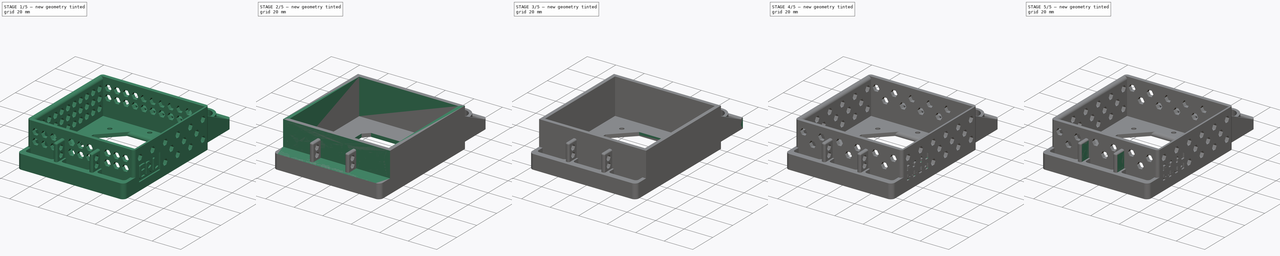
[diagram: build sequence overview — one tinted view per stage of 5, left to right]
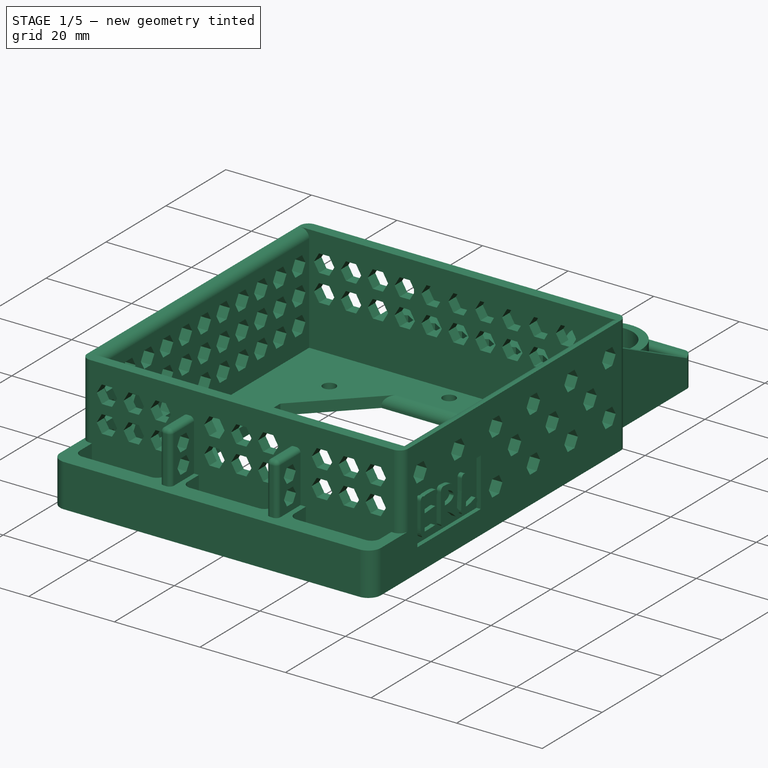
[diagram: stage 1 of 5 — iso view after this stage's code; geometry added in this stage tinted green]
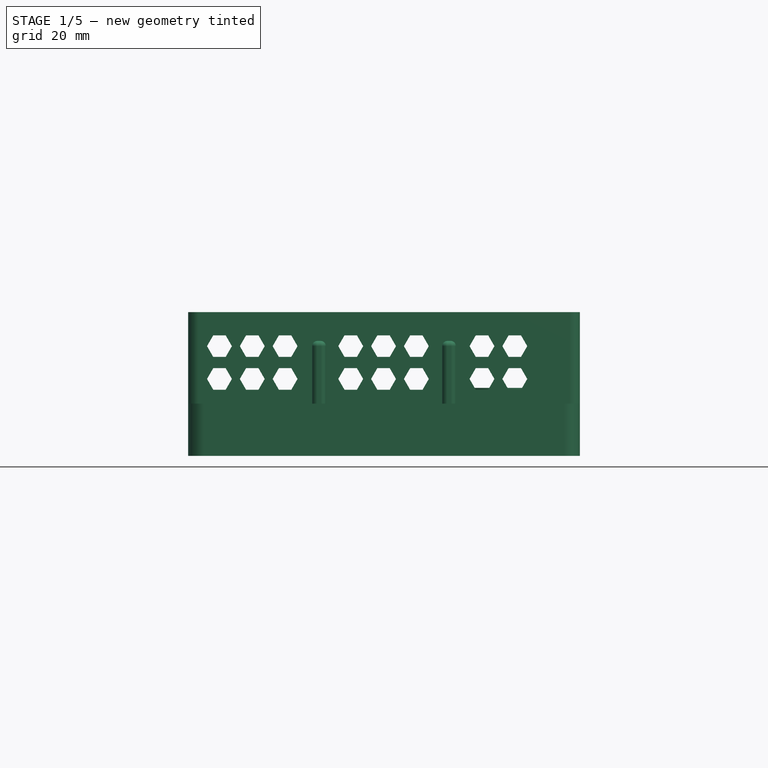
[diagram: stage 1 of 5 — front view after this stage's code; geometry added in this stage tinted green]
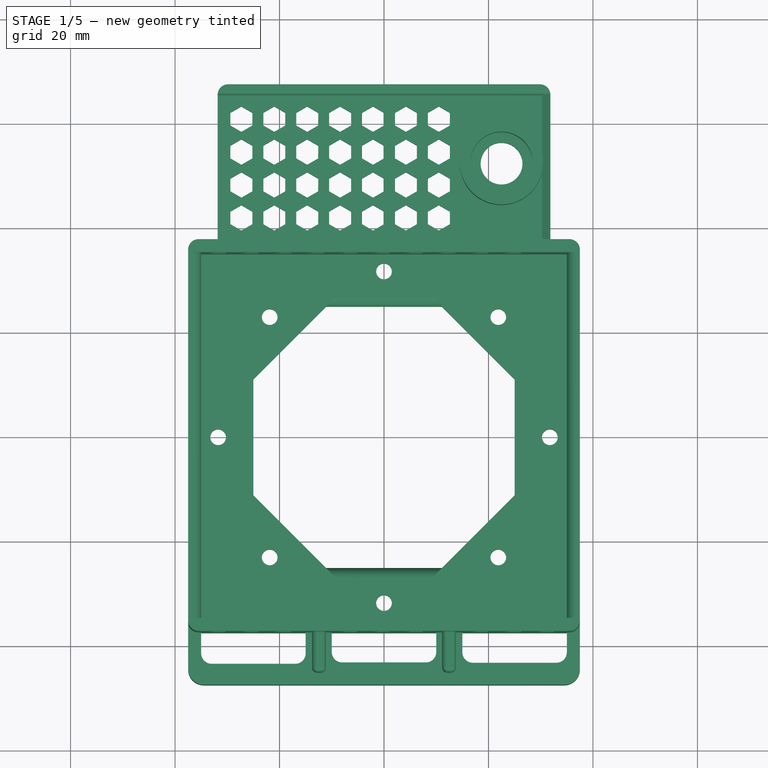
[diagram: stage 1 of 5 — top view after this stage's code; geometry added in this stage tinted green]
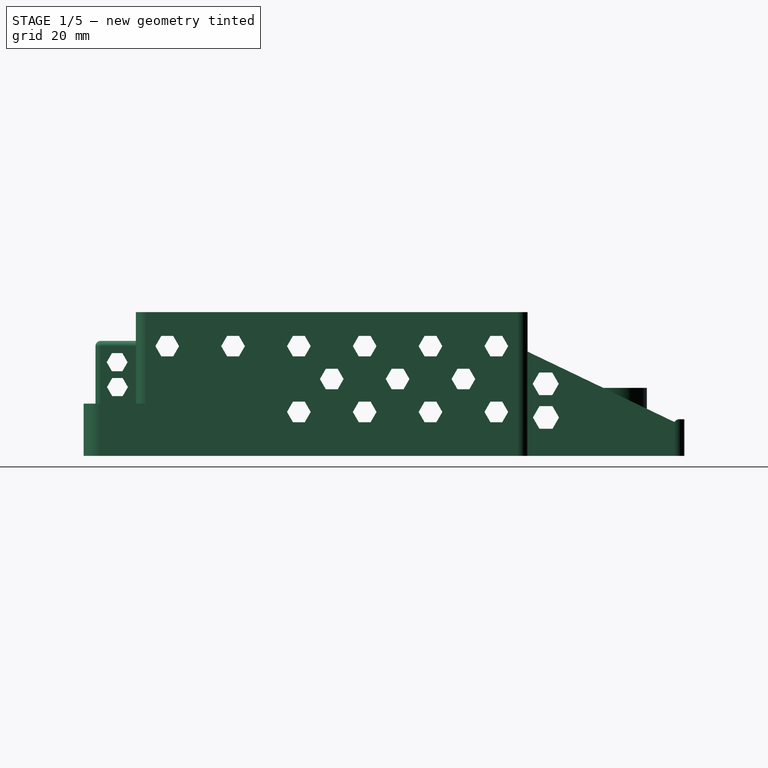
[diagram: stage 1 of 5 — right view after this stage's code; geometry added in this stage tinted green]
FCSTD DOCUMENT  (FreeCAD 0.16R6703 (Git))
Label: KK2.1-Cockpit
License: FreeArt
LicenseURL: http://artlibre.org/licence/lal
objects: Sketcher::SketchObject×36, PartDesign::Pad×20, PartDesign::Pocket×16, PartDesign::Fillet×10, Part::Part2DObjectPython×1, Part::Fuse×1
note: 120 computed .brp shape members not serialized (recipe doc carries the construction recipe); baked Part::Feature solids carry a one-line shape summary decoded from their .brp

FEATURE [PartDesign::Pocket] Pocket014
  Length = 5
  Type = 1
FEATURE [Sketcher::SketchObject] Sketch025
  Placement = pos=(0,35,0) rot=(1,0,0;1.5708rad)
  Support = -> Pocket014 [Face773]
  sketch-geometry (4):
    g0: LineSegment StartX=28.4176 StartY=24.457 StartZ=0 EndX=34.6227 EndY=24.457 EndZ=0
    g1: LineSegment StartX=34.6227 StartY=24.457 StartZ=0 EndX=34.6227 EndY=10.5 EndZ=0
    g2: LineSegment StartX=34.6227 StartY=10.5 StartZ=0 EndX=28.4176 EndY=10.5 EndZ=0
    g3: LineSegment StartX=28.4176 StartY=10.5 StartZ=0 EndX=28.4176 EndY=24.457 EndZ=0
  constraints (8):
    c: Coincident(g0,g1)
    c: Coincident(g1,g2)
    c: Coincident(g2,g3)
    c: Coincident(g3,g0)
    c: Horizontal(g0)
    c: Horizontal(g2)
    c: Vertical(g1)
    c: Vertical(g3)
FEATURE [PartDesign::Pad] Pad009
  Length = 2.5
  Length2 = 100
  Reversed = true
  Sketch = -> Sketch025
  Type = 0
FEATURE [Part::Part2DObjectPython] ShapeString  # Draft 2D object (typed FeaturePython)
  FontFile = <path>
  Placement = pos=(37.5,-32,7) rot=(0.57735,0.57735,0.57735;2.0944rad)
  Size = 10
  String = ERL
  Tracking = 10
FEATURE [Sketcher::SketchObject] Sketch026
  Placement = pos=(37.5,0,0) rot=(0.57735,0.57735,0.57735;2.0944rad)
  Support = -> Pad009 [Face40]
  sketch-geometry (4):
    g0: LineSegment StartX=-34.1908 StartY=17.4661 StartZ=0 EndX=-9.26786 EndY=17.4661 EndZ=0
    g1: LineSegment StartX=-9.26786 StartY=17.4661 StartZ=0 EndX=-9.26786 EndY=5.62786 EndZ=0
    g2: LineSegment StartX=-9.26786 StartY=5.62786 StartZ=0 EndX=-34.1908 EndY=5.62786 EndZ=0
    g3: LineSegment StartX=-34.1908 StartY=5.62786 StartZ=0 EndX=-34.1908 EndY=17.4661 EndZ=0
  constraints (8):
    c: Coincident(g0,g1)
    c: Coincident(g1,g2)
    c: Coincident(g2,g3)
    c: Coincident(g3,g0)
    c: Horizontal(g0)
    c: Horizontal(g2)
    c: Vertical(g1)
    c: Vertical(g3)
FEATURE [PartDesign::Pad] Pad010
  Length = 2.5
  Length2 = 100
  Reversed = true
  Sketch = -> Sketch026
  Type = 0
  UpToFace = -> Pad009 [Face773]
FEATURE [Sketcher::SketchObject] Sketch027
  Placement = pos=(37.5,0,0) rot=(0.57735,0.57735,0.57735;2.0944rad)
  Support = -> Pad010 [Face722]
  sketch-geometry (4):
    g0: LineSegment StartX=-32.3953 StartY=16.8 StartZ=0 EndX=-11.2422 EndY=16.8 EndZ=0
    g1: LineSegment StartX=-11.2422 StartY=16.8 StartZ=0 EndX=-11.2422 EndY=5.48684 EndZ=0
    g2: LineSegment StartX=-11.2422 StartY=5.48684 StartZ=0 EndX=-32.3953 EndY=5.48684 EndZ=0
    g3: LineSegment StartX=-32.3953 StartY=5.48684 StartZ=0 EndX=-32.3953 EndY=16.8 EndZ=0
  constraints (12):
    c: Coincident(g0,g1)
    c: Coincident(g1,g2)
    c: Coincident(g2,g3)
    c: Coincident(g3,g0)
    c: Horizontal(g0)
    c: Horizontal(g2)
    c: Vertical(g1)
    c: Vertical(g3)
    c: Equal(g3,g1)
    c: Equal(g0,g2)
    c: DistanceY(g1,g1) = 11.3132
    c: DistanceX(g0,g0) = 21.1531
FEATURE [PartDesign::Pocket] Pocket015
  Length = 1
  Sketch = -> Sketch027
  Type = 0
FEATURE [PartDesign::Pad] Pad011
  Length = 2
  Length2 = 100
  Placement = pos=(37.5,-32,7) rot=(0.57735,0.57735,0.57735;2.0944rad)
  Reversed = true
  Sketch = -> ShapeString
  Type = 0
FEATURE [Part::Fuse] Fusion
  Base = -> Pocket015
  Tool = -> Pad011
FEATURE [Sketcher::SketchObject] Sketch028
  Placement = pos=(37.5,0,0) rot=(0.57735,0.57735,0.57735;2.0944rad)
  Support = -> Fusion [Face40]
  sketch-geometry (20):
    g0: LineSegment StartX=-28 StartY=24 StartZ=0 EndX=-22 EndY=24 EndZ=0
    g1: LineSegment StartX=-22 StartY=24 StartZ=0 EndX=-22 EndY=18 EndZ=0
    g2: LineSegment StartX=-22 StartY=18 StartZ=0 EndX=-28 EndY=18 EndZ=0
    g3: LineSegment StartX=-28 StartY=18 StartZ=0 EndX=-28 EndY=24 EndZ=0
    g4: LineSegment StartX=-15 StartY=25 StartZ=0 EndX=-10 EndY=25 EndZ=0
    g5: LineSegment StartX=-10 StartY=25 StartZ=0 EndX=-10 EndY=17.9453 EndZ=0
    g6: LineSegment StartX=-10 StartY=17.9453 StartZ=0 EndX=-15 EndY=17.9453 EndZ=0
    g7: LineSegment StartX=-15 StartY=17.9453 StartZ=0 EndX=-15 EndY=25 EndZ=0
    g8: LineSegment StartX=-2.83779 StartY=25 StartZ=0 EndX=3.05056 EndY=25 EndZ=0
    g9: LineSegment StartX=3.05056 StartY=25 StartZ=0 EndX=3.05056 EndY=17.7144 EndZ=0
    g10: LineSegment StartX=3.05056 StartY=17.7144 StartZ=0 EndX=-2.83779 EndY=17.7144 EndZ=0
    g11: LineSegment StartX=-2.83779 StartY=17.7144 StartZ=0 EndX=-2.83779 EndY=25 EndZ=0
    g12: LineSegment StartX=10 StartY=25 StartZ=0 EndX=16.0973 EndY=25 EndZ=0
    g13: LineSegment StartX=16.0973 StartY=25 StartZ=0 EndX=16.0973 EndY=17.4835 EndZ=0
    g14: LineSegment StartX=16.0973 StartY=17.4835 StartZ=0 EndX=10 EndY=17.4835 EndZ=0
    g15: LineSegment StartX=10 StartY=17.4835 StartZ=0 EndX=10 EndY=25 EndZ=0
    g16: LineSegment StartX=22.6784 StartY=25 StartZ=0 EndX=28.5668 EndY=25 EndZ=0
    g17: LineSegment StartX=28.5668 StartY=25 StartZ=0 EndX=28.5668 EndY=17.7144 EndZ=0
    g18: LineSegment StartX=28.5668 StartY=17.7144 StartZ=0 EndX=22.6784 EndY=17.7144 EndZ=0
    g19: LineSegment StartX=22.6784 StartY=17.7144 StartZ=0 EndX=22.6784 EndY=25 EndZ=0
  constraints (40):
    c: Coincident(g0,g1)
    c: Coincident(g1,g2)
    c: Coincident(g2,g3)
    c: Coincident(g3,g0)
    c: Horizontal(g0)
    c: Horizontal(g2)
    c: Vertical(g1)
    c: Vertical(g3)
    c: Coincident(g4,g5)
    c: Coincident(g5,g6)
    c: Coincident(g6,g7)
    c: Coincident(g7,g4)
    c: Horizontal(g4)
    c: Horizontal(g6)
    c: Vertical(g5)
    c: Vertical(g7)
    c: Coincident(g8,g9)
    c: Coincident(g9,g10)
    c: Coincident(g10,g11)
    c: Coincident(g11,g8)
    c: Horizontal(g8)
    c: Horizontal(g10)
    c: Vertical(g9)
    c: Vertical(g11)
    c: Coincident(g12,g13)
    c: Coincident(g13,g14)
    c: Coincident(g14,g15)
    c: Coincident(g15,g12)
    c: Horizontal(g12)
    c: Horizontal(g14)
    c: Vertical(g13)
    c: Vertical(g15)
    c: Coincident(g16,g17)
    c: Coincident(g17,g18)
    c: Coincident(g18,g19)
    c: Coincident(g19,g16)
    c: Horizontal(g16)
    c: Horizontal(g18)
    c: Vertical(g17)
    c: Vertical(g19)
FEATURE [PartDesign::Pad] Pad012
  Length = 2.5
  Length2 = 100
  Reversed = true
  Sketch = -> Sketch028
  Type = 0
  UpToFace = -> Fusion [Face731]
FEATURE [Sketcher::SketchObject] Sketch029
  Placement = pos=(37.5,0,0) rot=(0.57735,0.57735,0.57735;2.0944rad)
  Support = -> Pad012 [Face722]
  sketch-geometry (16):
    g0: LineSegment StartX=-10 StartY=17.7784 StartZ=0 EndX=-3.16784 EndY=17.7784 EndZ=0
    g1: LineSegment StartX=-3.16784 StartY=17.7784 StartZ=0 EndX=-3.16784 EndY=12.0055 EndZ=0
    g2: LineSegment StartX=-3.16784 StartY=12.0055 StartZ=0 EndX=-10 EndY=12.0055 EndZ=0
    g3: LineSegment StartX=-10 StartY=12.0055 StartZ=0 EndX=-10 EndY=17.7784 EndZ=0
    g4: LineSegment StartX=3.52873 StartY=17.5474 StartZ=0 EndX=10 EndY=17.5474 EndZ=0
    g5: LineSegment StartX=10 StartY=17.5474 StartZ=0 EndX=10 EndY=11.89 EndZ=0
    g6: LineSegment StartX=10 StartY=11.89 StartZ=0 EndX=3.52873 EndY=11.89 EndZ=0
    g7: LineSegment StartX=3.52873 StartY=11.89 StartZ=0 EndX=3.52873 EndY=17.5474 EndZ=0
    g8: LineSegment StartX=15 StartY=17.8938 StartZ=0 EndX=22.002 EndY=17.8938 EndZ=0
    g9: LineSegment StartX=22.002 StartY=17.8938 StartZ=0 EndX=22.002 EndY=11.5436 EndZ=0
    g10: LineSegment StartX=22.002 StartY=11.5436 StartZ=0 EndX=15 EndY=11.5436 EndZ=0
    g11: LineSegment StartX=15 StartY=11.5436 StartZ=0 EndX=15 EndY=17.8938 EndZ=0
    g12: LineSegment StartX=28.4677 StartY=18.1247 StartZ=0 EndX=35 EndY=18.1247 EndZ=0
    g13: LineSegment StartX=35 StartY=18.1247 StartZ=0 EndX=35 EndY=11.5436 EndZ=0
    g14: LineSegment StartX=35 StartY=11.5436 StartZ=0 EndX=28.4677 EndY=11.5436 EndZ=0
    g15: LineSegment StartX=28.4677 StartY=11.5436 StartZ=0 EndX=28.4677 EndY=18.1247 EndZ=0
  constraints (32):
    c: Coincident(g0,g1)
    c: Coincident(g1,g2)
    c: Coincident(g2,g3)
    c: Coincident(g3,g0)
    c: Horizontal(g0)
    c: Horizontal(g2)
    c: Vertical(g1)
    c: Vertical(g3)
    c: Coincident(g4,g5)
    c: Coincident(g5,g6)
    c: Coincident(g6,g7)
    c: Coincident(g7,g4)
    c: Horizontal(g4)
    c: Horizontal(g6)
    c: Vertical(g5)
    c: Vertical(g7)
    c: Coincident(g8,g9)
    c: Coincident(g9,g10)
    c: Coincident(g10,g11)
    c: Coincident(g11,g8)
    c: Horizontal(g8)
    c: Horizontal(g10)
    c: Vertical(g9)
    c: Vertical(g11)
    c: Coincident(g12,g13)
    c: Coincident(g13,g14)
    c: Coincident(g14,g15)
    c: Coincident(g15,g12)
    c: Horizontal(g12)
    c: Horizontal(g14)
    c: Vertical(g13)
    c: Vertical(g15)
FEATURE [PartDesign::Pad] Pad013
  Length = 2.5
  Length2 = 100
  Reversed = true
  Sketch = -> Sketch029
  Type = 0
FEATURE [Sketcher::SketchObject] Sketch030
  Placement = pos=(37.5,0,0) rot=(0.57735,0.57735,0.57735;2.0944rad)
  Support = -> Pad013 [Face722]
  sketch-geometry (12):
    g0: LineSegment StartX=-3 StartY=11 StartZ=0 EndX=3 EndY=11 EndZ=0
    g1: LineSegment StartX=3 StartY=11 StartZ=0 EndX=3 EndY=5.30888 EndZ=0
    g2: LineSegment StartX=3 StartY=5.30888 StartZ=0 EndX=-3 EndY=5.30888 EndZ=0
    g3: LineSegment StartX=-3 StartY=5.30888 StartZ=0 EndX=-3 EndY=11 EndZ=0
    g4: LineSegment StartX=9.648 StartY=11.7745 StartZ=0 EndX=15.5364 EndY=11.7745 EndZ=0
    g5: LineSegment StartX=15.5364 StartY=11.7745 StartZ=0 EndX=15.5364 EndY=5.30888 EndZ=0
    g6: LineSegment StartX=15.5364 StartY=5.30888 StartZ=0 EndX=9.648 EndY=5.30888 EndZ=0
    g7: LineSegment StartX=9.648 StartY=5.30888 StartZ=0 EndX=9.648 EndY=11.7745 EndZ=0
    g8: LineSegment StartX=22.2329 StartY=11.6591 StartZ=0 EndX=28 EndY=11.6591 EndZ=0
    g9: LineSegment StartX=28 StartY=11.6591 StartZ=0 EndX=28 EndY=5.53979 EndZ=0
    g10: LineSegment StartX=28 StartY=5.53979 StartZ=0 EndX=22.2329 EndY=5.53979 EndZ=0
    g11: LineSegment StartX=22.2329 StartY=5.53979 StartZ=0 EndX=22.2329 EndY=11.6591 EndZ=0
  constraints (24):
    c: Coincident(g0,g1)
    c: Coincident(g1,g2)
    c: Coincident(g2,g3)
    c: Coincident(g3,g0)
    c: Horizontal(g0)
    c: Horizontal(g2)
    c: Vertical(g1)
    c: Vertical(g3)
    c: Coincident(g4,g5)
    c: Coincident(g5,g6)
    c: Coincident(g6,g7)
    c: Coincident(g7,g4)
    c: Horizontal(g4)
    c: Horizontal(g6)
    c: Vertical(g5)
    c: Vertical(g7)
    c: Coincident(g8,g9)
    c: Coincident(g9,g10)
    c: Coincident(g10,g11)
    c: Coincident(g11,g8)
    c: Horizontal(g8)
    c: Horizontal(g10)
    c: Vertical(g9)
    c: Vertical(g11)
FEATURE [PartDesign::Pad] Pad014
  Length = 2.5
  Length2 = 100
  Reversed = true
  Sketch = -> Sketch030
  Type = 0
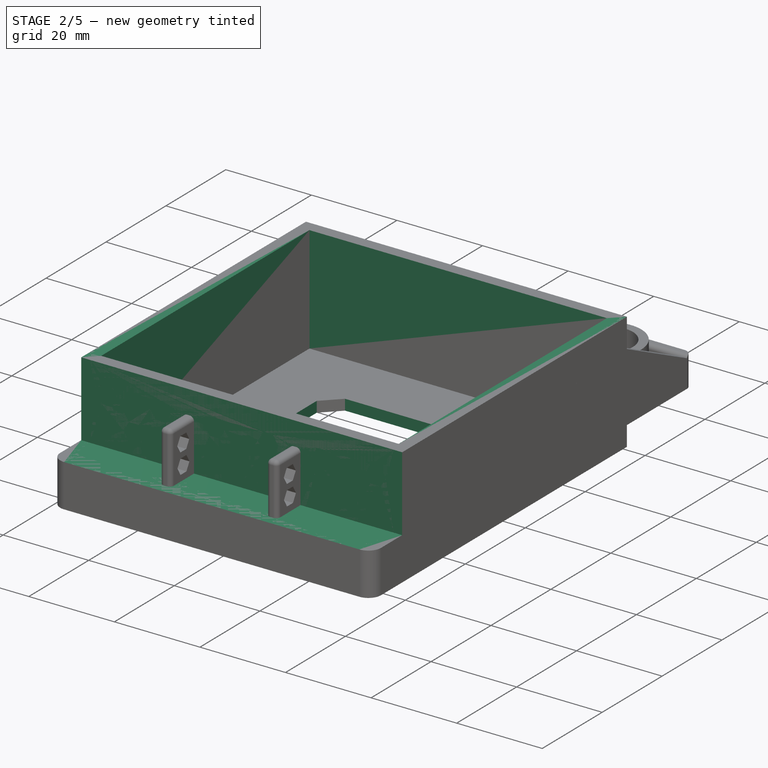
[diagram: stage 2 of 5 — iso view after this stage's code; geometry added in this stage tinted green]
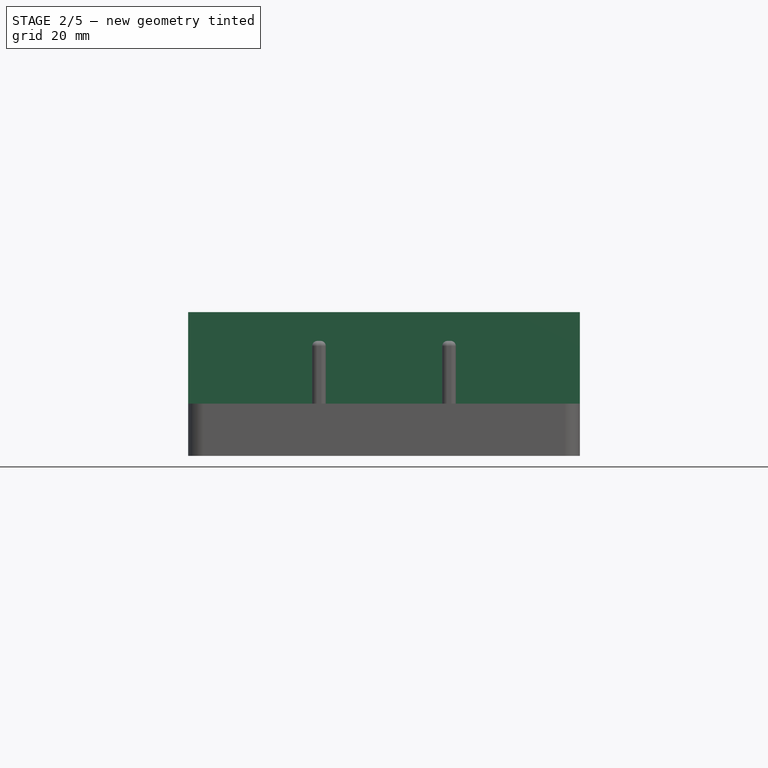
[diagram: stage 2 of 5 — front view after this stage's code; geometry added in this stage tinted green]
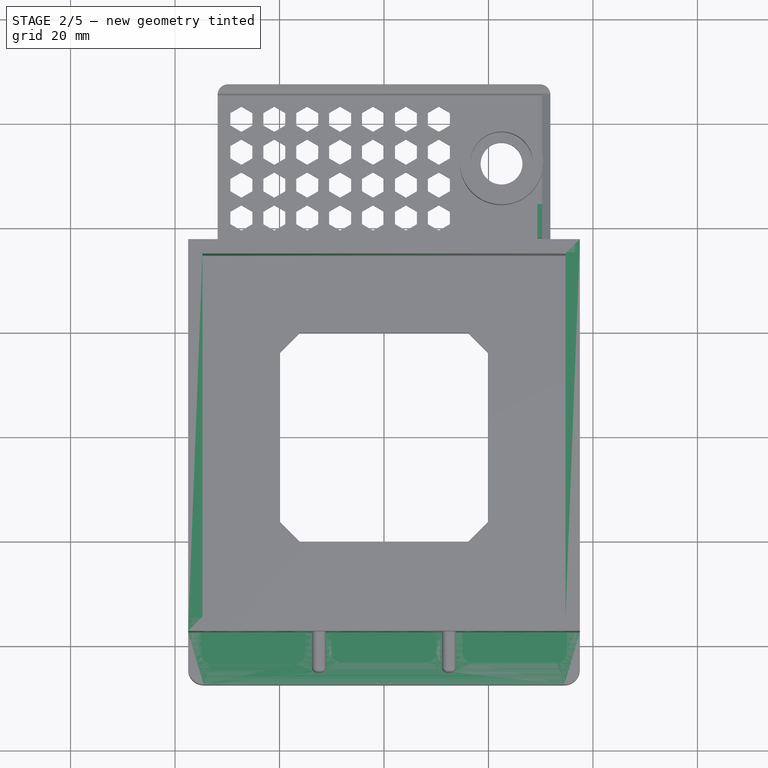
[diagram: stage 2 of 5 — top view after this stage's code; geometry added in this stage tinted green]
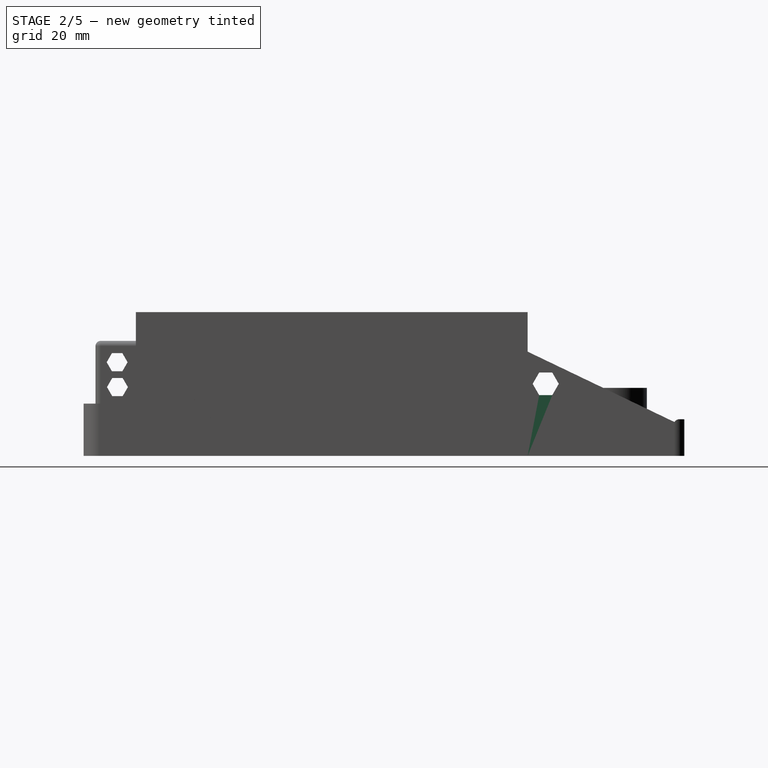
[diagram: stage 2 of 5 — right view after this stage's code; geometry added in this stage tinted green]
FEATURE [Sketcher::SketchObject] Sketch
  sketch-geometry (4):
    g0: LineSegment StartX=-37.5 StartY=37.5 StartZ=0 EndX=37.5 EndY=37.5 EndZ=0
    g1: LineSegment StartX=37.5 StartY=37.5 StartZ=0 EndX=37.5 EndY=-37.5 EndZ=0
    g2: LineSegment StartX=37.5 StartY=-37.5 StartZ=0 EndX=-37.5 EndY=-37.5 EndZ=0
    g3: LineSegment StartX=-37.5 StartY=-37.5 StartZ=0 EndX=-37.5 EndY=37.5 EndZ=0
  constraints (13):
    c: Coincident(g0,g1)
    c: Coincident(g1,g2)
    c: Coincident(g2,g3)
    c: Coincident(g3,g0)
    c: Horizontal(g2)
    c: Vertical(g1)
    c: Vertical(g3)
    c: Equal(g0,g2)
    c: Equal(g3,g1)
    c: DistanceX(g0,g0) = 75
    c: DistanceY(g3,g3) = 75
    c: Symmetric(g0,g2,g-1)
    c: Symmetric(g0,g0,g-2)
FEATURE [PartDesign::Pad] Pad
  Length = 27.5
  Length2 = 100
  Sketch = -> Sketch
  Type = 0
FEATURE [Sketcher::SketchObject] Sketch001
  Placement = pos=(0,0,27.5) rot=(0,0,1;0rad)
  Support = -> Pad [Face6]
  sketch-geometry (4):
    g0: LineSegment StartX=-34.75 StartY=34.75 StartZ=0 EndX=34.75 EndY=34.75 EndZ=0
    g1: LineSegment StartX=34.75 StartY=34.75 StartZ=0 EndX=34.75 EndY=-34.75 EndZ=0
    g2: LineSegment StartX=34.75 StartY=-34.75 StartZ=0 EndX=-34.75 EndY=-34.75 EndZ=0
    g3: LineSegment StartX=-34.75 StartY=-34.75 StartZ=0 EndX=-34.75 EndY=34.75 EndZ=0
  constraints (13):
    c: Coincident(g0,g1)
    c: Coincident(g1,g2)
    c: Coincident(g2,g3)
    c: Coincident(g3,g0)
    c: Horizontal(g2)
    c: Vertical(g1)
    c: Vertical(g3)
    c: Equal(g0,g2)
    c: Equal(g3,g1)
    c: DistanceX(g0,g0) = 69.5
    c: DistanceY(g3,g3) = 69.5
    c: Symmetric(g0,g0,g-2)
    c: Symmetric(g2,g0,g-1)
FEATURE [PartDesign::Pocket] Pocket
  Length = 25
  Sketch = -> Sketch001
  Type = 0
FEATURE [Sketcher::SketchObject] Sketch002
  Placement = pos=(0,0,2.5) rot=(0,0,1;0rad)
  Support = -> Pocket [Face11]
  sketch-geometry (4):
    g0: LineSegment StartX=-20 StartY=20 StartZ=0 EndX=20 EndY=20 EndZ=0
    g1: LineSegment StartX=20 StartY=20 StartZ=0 EndX=20 EndY=-20 EndZ=0
    g2: LineSegment StartX=20 StartY=-20 StartZ=0 EndX=-20 EndY=-20 EndZ=0
    g3: LineSegment StartX=-20 StartY=-20 StartZ=0 EndX=-20 EndY=20 EndZ=0
  constraints (13):
    c: Coincident(g0,g1)
    c: Coincident(g1,g2)
    c: Coincident(g2,g3)
    c: Coincident(g3,g0)
    c: Horizontal(g2)
    c: Vertical(g1)
    c: Vertical(g3)
    c: Equal(g0,g2)
    c: Equal(g3,g1)
    c: DistanceX(g0,g0) = 40
    c: DistanceY(g3,g3) = 40
    c: Symmetric(g0,g0,g-2)
    c: Symmetric(g2,g0,g-1)
FEATURE [PartDesign::Pocket] Pocket001
  Length = 5
  Sketch = -> Sketch002
  Type = 1
FEATURE [Sketcher::SketchObject] Sketch003
  Placement = pos=(0,-37.5,0) rot=(1,0,0;1.5708rad)
  Support = -> Pocket001 [Face6]
  sketch-geometry (4):
    g0: LineSegment StartX=-37.5 StartY=10 StartZ=0 EndX=37.5 EndY=10 EndZ=0
    g1: LineSegment StartX=37.5 StartY=10 StartZ=0 EndX=37.5 EndY=0 EndZ=0
    g2: LineSegment StartX=37.5 StartY=0 StartZ=0 EndX=-37.5 EndY=0 EndZ=0
    g3: LineSegment StartX=-37.5 StartY=0 StartZ=0 EndX=-37.5 EndY=10 EndZ=0
  constraints (13):
    c: Coincident(g0,g1)
    c: Coincident(g1,g2)
    c: Coincident(g2,g3)
    c: Coincident(g3,g0)
    c: Horizontal(g2)
    c: Vertical(g1)
    c: Vertical(g3)
    c: Equal(g0,g2)
    c: Equal(g3,g1)
    c: DistanceX(g0,g0) = 75
    c: PointOnObject(g-1,g2)
    c: Symmetric(g0,g0,g-2)
    c: DistanceY(g3,g3) = 10
FEATURE [PartDesign::Pad] Pad001
  Length = 10
  Length2 = 100
  Sketch = -> Sketch003
  Type = 0
FEATURE [PartDesign::Fillet] Fillet
  Base = -> Pad001 [Edge28,Edge26]
  Radius = 3
FEATURE [Sketcher::SketchObject] Sketch031
  Placement = pos=(31.8532,0,0) rot=(0.57735,0.57735,0.57735;2.0944rad)
  Support = -> Pad014 [Face385]
  sketch-geometry (4):
    g0: LineSegment StartX=38 StartY=10.2736 StartZ=0 EndX=44.5163 EndY=10.2736 EndZ=0
    g1: LineSegment StartX=44.5163 StartY=10.2736 StartZ=0 EndX=44.5163 EndY=4.61613 EndZ=0
    g2: LineSegment StartX=44.5163 StartY=4.61613 StartZ=0 EndX=38 EndY=4.61613 EndZ=0
    g3: LineSegment StartX=38 StartY=4.61613 StartZ=0 EndX=38 EndY=10.2736 EndZ=0
  constraints (8):
    c: Coincident(g0,g1)
    c: Coincident(g1,g2)
    c: Coincident(g2,g3)
    c: Coincident(g3,g0)
    c: Horizontal(g0)
    c: Horizontal(g2)
    c: Vertical(g1)
    c: Vertical(g3)
FEATURE [PartDesign::Pad] Pad015
  Length = 2.5
  Length2 = 100
  Reversed = true
  Sketch = -> Sketch031
  Type = 0
FEATURE [Sketcher::SketchObject] Sketch032
  Placement = pos=(0,-37.5,0) rot=(1,0,0;1.5708rad)
  Support = -> Pad015 [Face5]
  sketch-geometry (36):
    g0: LineSegment StartX=-34.6268 StartY=17.7932 StartZ=0 EndX=-28 EndY=17.7932 EndZ=0
    g1: LineSegment StartX=-28 StartY=17.7932 StartZ=0 EndX=-28 EndY=11.7433 EndZ=0
    g2: LineSegment StartX=-28 StartY=11.7433 StartZ=0 EndX=-34.6268 EndY=11.7433 EndZ=0
    g3: LineSegment StartX=-34.6268 StartY=11.7433 StartZ=0 EndX=-34.6268 EndY=17.7932 EndZ=0
    g4: LineSegment StartX=-28.2628 StartY=25 StartZ=0 EndX=-22.4583 EndY=25 EndZ=0
    g5: LineSegment StartX=-22.4583 StartY=25 StartZ=0 EndX=-22.4583 EndY=18.4509 EndZ=0
    g6: LineSegment StartX=-22.4583 StartY=18.4509 StartZ=0 EndX=-28.2628 EndY=18.4509 EndZ=0
    g7: LineSegment StartX=-28.2628 StartY=18.4509 StartZ=0 EndX=-28.2628 EndY=25 EndZ=0
    g8: LineSegment StartX=-21.7617 StartY=17.5221 StartZ=0 EndX=-15.725 EndY=17.5221 EndZ=0
    g9: LineSegment StartX=-15.725 StartY=17.5221 StartZ=0 EndX=-15.725 EndY=12 EndZ=0
    g10: LineSegment StartX=-15.725 StartY=12 StartZ=0 EndX=-21.7617 EndY=12 EndZ=0
    g11: LineSegment StartX=-21.7617 StartY=12 StartZ=0 EndX=-21.7617 EndY=17.5221 EndZ=0
    g12: LineSegment StartX=-9.76567 StartY=17 StartZ=0 EndX=-3.41938 EndY=17 EndZ=0
    g13: LineSegment StartX=-3.41938 StartY=17 StartZ=0 EndX=-3.41938 EndY=11.795 EndZ=0
    g14: LineSegment StartX=-3.41938 StartY=11.795 StartZ=0 EndX=-9.76567 EndY=11.795 EndZ=0
    g15: LineSegment StartX=-9.76567 StartY=11.795 StartZ=0 EndX=-9.76567 EndY=17 EndZ=0
    g16: LineSegment StartX=3 StartY=17.29 StartZ=0 EndX=9 EndY=17.29 EndZ=0
    g17: LineSegment StartX=9 StartY=17.29 StartZ=0 EndX=9 EndY=12 EndZ=0
    g18: LineSegment StartX=9 StartY=12 StartZ=0 EndX=3 EndY=12 EndZ=0
    g19: LineSegment StartX=3 StartY=12 StartZ=0 EndX=3 EndY=17.29 EndZ=0
    g20: LineSegment StartX=-3 StartY=24.2554 StartZ=0 EndX=2.77213 EndY=24.2554 EndZ=0
    g21: LineSegment StartX=2.77213 StartY=24.2554 StartZ=0 EndX=2.77213 EndY=18.2187 EndZ=0
    g22: LineSegment StartX=2.77213 StartY=18.2187 StartZ=0 EndX=-3 EndY=18.2187 EndZ=0
    g23: LineSegment StartX=-3 StartY=18.2187 StartZ=0 EndX=-3 EndY=24.2554 EndZ=0
    g24: LineSegment StartX=15.3099 StartY=18 StartZ=0 EndX=22 EndY=18 EndZ=0
    g25: LineSegment StartX=22 StartY=18 StartZ=0 EndX=22 EndY=11.3306 EndZ=0
    g26: LineSegment StartX=22 StartY=11.3306 StartZ=0 EndX=15.3099 EndY=11.3306 EndZ=0
    g27: LineSegment StartX=15.3099 StartY=11.3306 StartZ=0 EndX=15.3099 EndY=18 EndZ=0
    g28: LineSegment StartX=22 StartY=25 StartZ=0 EndX=27.6155 EndY=25 EndZ=0
    g29: LineSegment StartX=27.6155 StartY=25 StartZ=0 EndX=27.6155 EndY=18.5283 EndZ=0
    g30: LineSegment StartX=27.6155 StartY=18.5283 StartZ=0 EndX=22 EndY=18.5283 EndZ=0
    g31: LineSegment StartX=22 StartY=18.5283 StartZ=0 EndX=22 EndY=25 EndZ=0
    g32: LineSegment StartX=28.3121 StartY=18 StartZ=0 EndX=34.581 EndY=18 EndZ=0
    g33: LineSegment StartX=34.581 StartY=18 StartZ=0 EndX=34.581 EndY=11.408 EndZ=0
    g34: LineSegment StartX=34.581 StartY=11.408 StartZ=0 EndX=28.3121 EndY=11.408 EndZ=0
    g35: LineSegment StartX=28.3121 StartY=11.408 StartZ=0 EndX=28.3121 EndY=18 EndZ=0
  constraints (72):
    c: Coincident(g0,g1)
    c: Coincident(g1,g2)
    c: Coincident(g2,g3)
    c: Coincident(g3,g0)
    c: Horizontal(g0)
    c: Horizontal(g2)
    c: Vertical(g1)
    c: Vertical(g3)
    c: Coincident(g4,g5)
    c: Coincident(g5,g6)
    c: Coincident(g6,g7)
    c: Coincident(g7,g4)
    c: Horizontal(g4)
    c: Horizontal(g6)
    c: Vertical(g5)
    c: Vertical(g7)
    c: Coincident(g8,g9)
    c: Coincident(g9,g10)
    c: Coincident(g10,g11)
    c: Coincident(g11,g8)
    c: Horizontal(g8)
    c: Horizontal(g10)
    c: Vertical(g9)
    c: Vertical(g11)
    c: Coincident(g12,g13)
    c: Coincident(g13,g14)
    c: Coincident(g14,g15)
    c: Coincident(g15,g12)
    c: Horizontal(g12)
    c: Horizontal(g14)
    c: Vertical(g13)
    c: Vertical(g15)
    c: Coincident(g16,g17)
    c: Coincident(g17,g18)
    c: Coincident(g18,g19)
    c: Coincident(g19,g16)
    c: Horizontal(g16)
    c: Horizontal(g18)
    c: Vertical(g17)
    c: Vertical(g19)
    c: Coincident(g20,g21)
    c: Coincident(g21,g22)
    c: Coincident(g22,g23)
    c: Coincident(g23,g20)
    c: Horizontal(g20)
    c: Horizontal(g22)
    c: Vertical(g21)
    c: Vertical(g23)
    c: Coincident(g24,g25)
    c: Coincident(g25,g26)
    c: Coincident(g26,g27)
    c: Coincident(g27,g24)
    c: Horizontal(g24)
    c: Horizontal(g26)
    c: Vertical(g25)
    c: Vertical(g27)
    c: Coincident(g28,g29)
    c: Coincident(g29,g30)
    c: Coincident(g30,g31)
    c: Coincident(g31,g28)
    c: Horizontal(g28)
    c: Horizontal(g30)
    c: Vertical(g29)
    c: Vertical(g31)
    c: Coincident(g32,g33)
    c: Coincident(g33,g34)
    c: Coincident(g34,g35)
    c: Coincident(g35,g32)
    c: Horizontal(g32)
    c: Horizontal(g34)
    c: Vertical(g33)
    c: Vertical(g35)
FEATURE [PartDesign::Pad] Pad016
  Length = 2.5
  Length2 = 100
  Reversed = true
  Sketch = -> Sketch032
  Type = 0
FEATURE [Sketcher::SketchObject] Sketch033
  Placement = pos=(-37.5,0,0) rot=(0.57735,-0.57735,-0.57735;2.0944rad)
  Support = -> Pad016 [Face32]
  sketch-geometry (64):
    g0: LineSegment StartX=-34.6468 StartY=18 StartZ=0 EndX=-29 EndY=18 EndZ=0
    g1: LineSegment StartX=-29 StartY=18 StartZ=0 EndX=-29 EndY=11.6965 EndZ=0
    g2: LineSegment StartX=-29 StartY=11.6965 StartZ=0 EndX=-34.6468 EndY=11.6965 EndZ=0
    g3: LineSegment StartX=-34.6468 StartY=11.6965 StartZ=0 EndX=-34.6468 EndY=18 EndZ=0
    g4: LineSegment StartX=-28.3103 StartY=24.2427 StartZ=0 EndX=-22 EndY=24.2427 EndZ=0
    g5: LineSegment StartX=-22 StartY=24.2427 StartZ=0 EndX=-22 EndY=18.4132 EndZ=0
    g6: LineSegment StartX=-22 StartY=18.4132 StartZ=0 EndX=-28.3103 EndY=18.4132 EndZ=0
    g7: LineSegment StartX=-28.3103 StartY=18.4132 StartZ=0 EndX=-28.3103 EndY=24.2427 EndZ=0
    g8: LineSegment StartX=-28 StartY=12 StartZ=0 EndX=-22.354 EndY=12 EndZ=0
    g9: LineSegment StartX=-22.354 StartY=12 StartZ=0 EndX=-22.354 EndY=5 EndZ=0
    g10: LineSegment StartX=-22.354 StartY=5 StartZ=0 EndX=-28 EndY=5 EndZ=0
    g11: LineSegment StartX=-28 StartY=5 StartZ=0 EndX=-28 EndY=12 EndZ=0
    g12: LineSegment StartX=-21.2768 StartY=18 StartZ=0 EndX=-16.3344 EndY=18 EndZ=0
    g13: LineSegment StartX=-16.3344 StartY=18 StartZ=0 EndX=-16.3344 EndY=12 EndZ=0
    g14: LineSegment StartX=-16.3344 StartY=12 StartZ=0 EndX=-21.2768 EndY=12 EndZ=0
    g15: LineSegment StartX=-21.2768 StartY=12 StartZ=0 EndX=-21.2768 EndY=18 EndZ=0
    g16: LineSegment StartX=-15.574 StartY=24.3695 StartZ=0 EndX=-10 EndY=24.3695 EndZ=0
    g17: LineSegment StartX=-10 StartY=24.3695 StartZ=0 EndX=-10 EndY=18.6033 EndZ=0
    g18: LineSegment StartX=-10 StartY=18.6033 StartZ=0 EndX=-15.574 EndY=18.6033 EndZ=0
    g19: LineSegment StartX=-15.574 StartY=18.6033 StartZ=0 EndX=-15.574 EndY=24.3695 EndZ=0
    g20: LineSegment StartX=-15.3839 StartY=11.5698 StartZ=0 EndX=-10 EndY=11.5698 EndZ=0
    g21: LineSegment StartX=-10 StartY=11.5698 StartZ=0 EndX=-10 EndY=5.67689 EndZ=0
    g22: LineSegment StartX=-10 StartY=5.67689 StartZ=0 EndX=-15.3839 EndY=5.67689 EndZ=0
    g23: LineSegment StartX=-15.3839 StartY=5.67689 StartZ=0 EndX=-15.3839 EndY=11.5698 EndZ=0
    g24: LineSegment StartX=-9 StartY=17.7162 StartZ=0 EndX=-3.3446 EndY=17.7162 EndZ=0
    g25: LineSegment StartX=-3.3446 StartY=17.7162 StartZ=0 EndX=-3.3446 EndY=11.7599 EndZ=0
    g26: LineSegment StartX=-3.3446 StartY=11.7599 StartZ=0 EndX=-9 EndY=11.7599 EndZ=0
    g27: LineSegment StartX=-9 StartY=11.7599 StartZ=0 EndX=-9 EndY=17.7162 EndZ=0
    g28: LineSegment StartX=-2.71095 StartY=24.5596 StartZ=0 EndX=2.73841 EndY=24.5596 EndZ=0
    g29: LineSegment StartX=2.73841 StartY=24.5596 StartZ=0 EndX=2.73841 EndY=18.3498 EndZ=0
    g30: LineSegment StartX=2.73841 StartY=18.3498 StartZ=0 EndX=-2.71095 EndY=18.3498 EndZ=0
    g31: LineSegment StartX=-2.71095 StartY=18.3498 StartZ=0 EndX=-2.71095 EndY=24.5596 EndZ=0
    g32: LineSegment StartX=-2.2674 StartY=12 StartZ=0 EndX=2.61168 EndY=12 EndZ=0
    g33: LineSegment StartX=2.61168 StartY=12 StartZ=0 EndX=2.61168 EndY=5.23334 EndZ=0
    g34: LineSegment StartX=2.61168 StartY=5.23334 StartZ=0 EndX=-2.2674 EndY=5.23334 EndZ=0
    g35: LineSegment StartX=-2.2674 StartY=5.23334 StartZ=0 EndX=-2.2674 EndY=12 EndZ=0
    g36: LineSegment StartX=3.68888 StartY=18 StartZ=0 EndX=9 EndY=18 EndZ=0
    g37: LineSegment StartX=9 StartY=18 StartZ=0 EndX=9 EndY=12 EndZ=0
    g38: LineSegment StartX=9 StartY=12 StartZ=0 EndX=3.68888 EndY=12 EndZ=0
    g39: LineSegment StartX=3.68888 StartY=12 StartZ=0 EndX=3.68888 EndY=18 EndZ=0
    g40: LineSegment StartX=9.5818 StartY=24.7497 StartZ=0 EndX=15.4114 EndY=24.7497 EndZ=0
    g41: LineSegment StartX=15.4114 StartY=24.7497 StartZ=0 EndX=15.4114 EndY=18.3498 EndZ=0
    g42: LineSegment StartX=15.4114 StartY=18.3498 StartZ=0 EndX=9.5818 EndY=18.3498 EndZ=0
    g43: LineSegment StartX=9.5818 StartY=18.3498 StartZ=0 EndX=9.5818 EndY=24.7497 EndZ=0
    g44: LineSegment StartX=10 StartY=12 StartZ=0 EndX=15.348 EndY=12 EndZ=0
    g45: LineSegment StartX=15.348 StartY=12 StartZ=0 EndX=15.348 EndY=5.2967 EndZ=0
    g46: LineSegment StartX=15.348 StartY=5.2967 StartZ=0 EndX=10 EndY=5.2967 EndZ=0
    g47: LineSegment StartX=10 StartY=5.2967 StartZ=0 EndX=10 EndY=12 EndZ=0
    g48: LineSegment StartX=16 StartY=18 StartZ=0 EndX=21.6565 EndY=18 EndZ=0
    g49: LineSegment StartX=21.6565 StartY=18 StartZ=0 EndX=21.6565 EndY=12 EndZ=0
    g50: LineSegment StartX=21.6565 StartY=12 StartZ=0 EndX=16 EndY=12 EndZ=0
    g51: LineSegment StartX=16 StartY=12 StartZ=0 EndX=16 EndY=18 EndZ=0
    g52: LineSegment StartX=22.6334 StartY=24.5775 StartZ=0 EndX=28 EndY=24.5775 EndZ=0
    g53: LineSegment StartX=28 StartY=24.5775 StartZ=0 EndX=28 EndY=18.4611 EndZ=0
    g54: LineSegment StartX=28 StartY=18.4611 StartZ=0 EndX=22.6334 EndY=18.4611 EndZ=0
    g55: LineSegment StartX=22.6334 StartY=18.4611 StartZ=0 EndX=22.6334 EndY=24.5775 EndZ=0
    g56: LineSegment StartX=22.5484 StartY=12 StartZ=0 EndX=28 EndY=12 EndZ=0
    g57: LineSegment StartX=28 StartY=12 StartZ=0 EndX=28 EndY=5.71875 EndZ=0
    g58: LineSegment StartX=28 StartY=5.71875 StartZ=0 EndX=22.5484 EndY=5.71875 EndZ=0
    g59: LineSegment StartX=22.5484 StartY=5.71875 StartZ=0 EndX=22.5484 EndY=12 EndZ=0
    g60: LineSegment StartX=28.7497 StartY=18 StartZ=0 EndX=34 EndY=18 EndZ=0
    g61: LineSegment StartX=34 StartY=18 StartZ=0 EndX=34 EndY=12 EndZ=0
    g62: LineSegment StartX=34 StartY=12 StartZ=0 EndX=28.7497 EndY=12 EndZ=0
    g63: LineSegment StartX=28.7497 StartY=12 StartZ=0 EndX=28.7497 EndY=18 EndZ=0
  constraints (128):
    c: Coincident(g0,g1)
    c: Coincident(g1,g2)
    c: Coincident(g2,g3)
    c: Coincident(g3,g0)
    c: Horizontal(g0)
    c: Horizontal(g2)
    c: Vertical(g1)
    c: Vertical(g3)
    c: Coincident(g4,g5)
    c: Coincident(g5,g6)
    c: Coincident(g6,g7)
    c: Coincident(g7,g4)
    c: Horizontal(g4)
    c: Horizontal(g6)
    c: Vertical(g5)
    c: Vertical(g7)
    c: Coincident(g8,g9)
    c: Coincident(g9,g10)
    c: Coincident(g10,g11)
    c: Coincident(g11,g8)
    c: Horizontal(g8)
    c: Horizontal(g10)
    c: Vertical(g9)
    c: Vertical(g11)
    c: Coincident(g12,g13)
    c: Coincident(g13,g14)
    c: Coincident(g14,g15)
    c: Coincident(g15,g12)
    c: Horizontal(g12)
    c: Horizontal(g14)
    c: Vertical(g13)
    c: Vertical(g15)
    c: Coincident(g16,g17)
    c: Coincident(g17,g18)
    c: Coincident(g18,g19)
    c: Coincident(g19,g16)
    c: Horizontal(g16)
    c: Horizontal(g18)
    c: Vertical(g17)
    c: Vertical(g19)
    c: Coincident(g20,g21)
    c: Coincident(g21,g22)
    c: Coincident(g22,g23)
    c: Coincident(g23,g20)
    c: Horizontal(g20)
    c: Horizontal(g22)
    c: Vertical(g21)
    c: Vertical(g23)
    c: Coincident(g24,g25)
    c: Coincident(g25,g26)
    c: Coincident(g26,g27)
    c: Coincident(g27,g24)
    c: Horizontal(g24)
    c: Horizontal(g26)
    c: Vertical(g25)
    c: Vertical(g27)
    c: Coincident(g28,g29)
    c: Coincident(g29,g30)
    c: Coincident(g30,g31)
    c: Coincident(g31,g28)
    c: Horizontal(g28)
    c: Horizontal(g30)
    c: Vertical(g29)
    c: Vertical(g31)
    c: Coincident(g32,g33)
    c: Coincident(g33,g34)
    c: Coincident(g34,g35)
    c: Coincident(g35,g32)
    c: Horizontal(g32)
    c: Horizontal(g34)
    c: Vertical(g33)
    c: Vertical(g35)
    c: Coincident(g36,g37)
    c: Coincident(g37,g38)
    c: Coincident(g38,g39)
    c: Coincident(g39,g36)
    c: Horizontal(g36)
    c: Horizontal(g38)
    c: Vertical(g37)
    c: Vertical(g39)
    c: Coincident(g40,g41)
    c: Coincident(g41,g42)
    c: Coincident(g42,g43)
    c: Coincident(g43,g40)
    c: Horizontal(g40)
    c: Horizontal(g42)
    c: Vertical(g41)
    c: Vertical(g43)
    c: Coincident(g44,g45)
    c: Coincident(g45,g46)
    c: Coincident(g46,g47)
    c: Coincident(g47,g44)
    c: Horizontal(g44)
    c: Horizontal(g46)
    c: Vertical(g45)
    c: Vertical(g47)
    c: Coincident(g48,g49)
    c: Coincident(g49,g50)
    c: Coincident(g50,g51)
    c: Coincident(g51,g48)
    c: Horizontal(g48)
    c: Horizontal(g50)
    c: Vertical(g49)
    c: Vertical(g51)
    c: Coincident(g52,g53)
    c: Coincident(g53,g54)
    c: Coincident(g54,g55)
    c: Coincident(g55,g52)
    c: Horizontal(g52)
    c: Horizontal(g54)
    c: Vertical(g53)
    c: Vertical(g55)
    c: Coincident(g56,g57)
    c: Coincident(g57,g58)
    c: Coincident(g58,g59)
    c: Coincident(g59,g56)
    c: Horizontal(g56)
    c: Horizontal(g58)
    c: Vertical(g57)
    c: Vertical(g59)
    c: Coincident(g60,g61)
    c: Coincident(g61,g62)
    c: Coincident(g62,g63)
    c: Coincident(g63,g60)
    c: Horizontal(g60)
    c: Horizontal(g62)
    c: Vertical(g61)
    c: Vertical(g63)
FEATURE [PartDesign::Pad] Pad017
  Length = 2.5
  Length2 = 100
  Reversed = true
  Sketch = -> Sketch033
  Type = 0
FEATURE [Sketcher::SketchObject] Sketch034
  Placement = pos=(0,37.5,0) rot=(0,0.707107,0.707107;3.14159rad)
  Support = -> Pad017 [Face210]
  sketch-geometry (36):
    g0: LineSegment StartX=-28.2284 StartY=24.6423 StartZ=0 EndX=-22 EndY=24.6423 EndZ=0
    g1: LineSegment StartX=-22 StartY=24.6423 StartZ=0 EndX=-22 EndY=18 EndZ=0
    g2: LineSegment StartX=-22 StartY=18 StartZ=0 EndX=-28.2284 EndY=18 EndZ=0
    g3: LineSegment StartX=-28.2284 StartY=18 StartZ=0 EndX=-28.2284 EndY=24.6423 EndZ=0
    g4: LineSegment StartX=-15.5358 StartY=24.6423 StartZ=0 EndX=-9.49908 EndY=24.6423 EndZ=0
    g5: LineSegment StartX=-9.49908 StartY=24.6423 StartZ=0 EndX=-9.49908 EndY=18.4508 EndZ=0
    g6: LineSegment StartX=-9.49908 StartY=18.4508 StartZ=0 EndX=-15.5358 EndY=18.4508 EndZ=0
    g7: LineSegment StartX=-15.5358 StartY=18.4508 StartZ=0 EndX=-15.5358 EndY=24.6423 EndZ=0
    g8: LineSegment StartX=-9 StartY=18 StartZ=0 EndX=-3.30757 EndY=18 EndZ=0
    g9: LineSegment StartX=-3.30757 StartY=18 StartZ=0 EndX=-3.30757 EndY=11.2532 EndZ=0
    g10: LineSegment StartX=-3.30757 StartY=11.2532 StartZ=0 EndX=-9 EndY=11.2532 EndZ=0
    g11: LineSegment StartX=-9 StartY=11.2532 StartZ=0 EndX=-9 EndY=18 EndZ=0
    g12: LineSegment StartX=-3 StartY=24 StartZ=0 EndX=3 EndY=24 EndZ=0
    g13: LineSegment StartX=3 StartY=24 StartZ=0 EndX=3 EndY=18.683 EndZ=0
    g14: LineSegment StartX=3 StartY=18.683 StartZ=0 EndX=-3 EndY=18.683 EndZ=0
    g15: LineSegment StartX=-3 StartY=18.683 StartZ=0 EndX=-3 EndY=24 EndZ=0
    g16: LineSegment StartX=3.73527 StartY=17.6768 StartZ=0 EndX=9.30762 EndY=17.6768 EndZ=0
    g17: LineSegment StartX=9.30762 StartY=17.6768 StartZ=0 EndX=9.30762 EndY=11.7949 EndZ=0
    g18: LineSegment StartX=9.30762 StartY=11.7949 StartZ=0 EndX=3.73527 EndY=11.7949 EndZ=0
    g19: LineSegment StartX=3.73527 StartY=11.7949 StartZ=0 EndX=3.73527 EndY=17.6768 EndZ=0
    g20: LineSegment StartX=10 StartY=24 StartZ=0 EndX=15.4217 EndY=24 EndZ=0
    g21: LineSegment StartX=15.4217 StartY=24 StartZ=0 EndX=15.4217 EndY=18.5282 EndZ=0
    g22: LineSegment StartX=15.4217 StartY=18.5282 StartZ=0 EndX=10 EndY=18.5282 EndZ=0
    g23: LineSegment StartX=10 StartY=18.5282 StartZ=0 EndX=10 EndY=24 EndZ=0
    g24: LineSegment StartX=16.2731 StartY=18 StartZ=0 EndX=21.6906 EndY=18 EndZ=0
    g25: LineSegment StartX=21.6906 StartY=18 StartZ=0 EndX=21.6906 EndY=11.4853 EndZ=0
    g26: LineSegment StartX=21.6906 StartY=11.4853 StartZ=0 EndX=16.2731 EndY=11.4853 EndZ=0
    g27: LineSegment StartX=16.2731 StartY=11.4853 StartZ=0 EndX=16.2731 EndY=18 EndZ=0
    g28: LineSegment StartX=22.2324 StartY=24.4875 StartZ=0 EndX=28 EndY=24.4875 EndZ=0
    g29: LineSegment StartX=28 StartY=24.4875 StartZ=0 EndX=28 EndY=18.2186 EndZ=0
    g30: LineSegment StartX=28 StartY=18.2186 StartZ=0 EndX=22.2324 EndY=18.2186 EndZ=0
    g31: LineSegment StartX=22.2324 StartY=18.2186 StartZ=0 EndX=22.2324 EndY=24.4875 EndZ=0
    g32: LineSegment StartX=28.7335 StartY=17.7542 StartZ=0 EndX=34.6154 EndY=17.7542 EndZ=0
    g33: LineSegment StartX=34.6154 StartY=17.7542 StartZ=0 EndX=34.6154 EndY=11.6401 EndZ=0
    g34: LineSegment StartX=34.6154 StartY=11.6401 StartZ=0 EndX=28.7335 EndY=11.6401 EndZ=0
    g35: LineSegment StartX=28.7335 StartY=11.6401 StartZ=0 EndX=28.7335 EndY=17.7542 EndZ=0
  constraints (72):
    c: Coincident(g0,g1)
    c: Coincident(g1,g2)
    c: Coincident(g2,g3)
    c: Coincident(g3,g0)
    c: Horizontal(g0)
    c: Horizontal(g2)
    c: Vertical(g1)
    c: Vertical(g3)
    c: Coincident(g4,g5)
    c: Coincident(g5,g6)
    c: Coincident(g6,g7)
    c: Coincident(g7,g4)
    c: Horizontal(g4)
    c: Horizontal(g6)
    c: Vertical(g5)
    c: Vertical(g7)
    c: Coincident(g8,g9)
    c: Coincident(g9,g10)
    c: Coincident(g10,g11)
    c: Coincident(g11,g8)
    c: Horizontal(g8)
    c: Horizontal(g10)
    c: Vertical(g9)
    c: Vertical(g11)
    c: Coincident(g12,g13)
    c: Coincident(g13,g14)
    c: Coincident(g14,g15)
    c: Coincident(g15,g12)
    c: Horizontal(g12)
    c: Horizontal(g14)
    c: Vertical(g13)
    c: Vertical(g15)
    c: Coincident(g16,g17)
    c: Coincident(g17,g18)
    c: Coincident(g18,g19)
    c: Coincident(g19,g16)
    c: Horizontal(g16)
    c: Horizontal(g18)
    c: Vertical(g17)
    c: Vertical(g19)
    c: Coincident(g20,g21)
    c: Coincident(g21,g22)
    c: Coincident(g22,g23)
    c: Coincident(g23,g20)
    c: Horizontal(g20)
    c: Horizontal(g22)
    c: Vertical(g21)
    c: Vertical(g23)
    c: Coincident(g24,g25)
    c: Coincident(g25,g26)
    c: Coincident(g26,g27)
    c: Coincident(g27,g24)
    c: Horizontal(g24)
    c: Horizontal(g26)
    c: Vertical(g25)
    c: Vertical(g27)
    c: Coincident(g28,g29)
    c: Coincident(g29,g30)
    c: Coincident(g30,g31)
    c: Coincident(g31,g28)
    c: Horizontal(g28)
    c: Horizontal(g30)
    c: Vertical(g29)
    c: Vertical(g31)
    c: Coincident(g32,g33)
    c: Coincident(g33,g34)
    c: Coincident(g34,g35)
    c: Coincident(g35,g32)
    c: Horizontal(g32)
    c: Horizontal(g34)
    c: Vertical(g33)
    c: Vertical(g35)
FEATURE [PartDesign::Pad] Pad018
  Length = 2.5
  Length2 = 100
  Reversed = true
  Sketch = -> Sketch034
  Type = 0
FEATURE [Sketcher::SketchObject] Sketch035
  Placement = pos=(0,37.5,0) rot=(0,0.707107,0.707107;3.14159rad)
  Support = -> Pad018 [Face623]
  sketch-geometry (4):
    g0: LineSegment StartX=-21.6764 StartY=18 StartZ=0 EndX=-16 EndY=18 EndZ=0
    g1: LineSegment StartX=-16 StartY=18 StartZ=0 EndX=-16 EndY=11.5937 EndZ=0
    g2: LineSegment StartX=-16 StartY=11.5937 StartZ=0 EndX=-21.6764 EndY=11.5937 EndZ=0
    g3: LineSegment StartX=-21.6764 StartY=11.5937 StartZ=0 EndX=-21.6764 EndY=18 EndZ=0
  constraints (8):
    c: Coincident(g0,g1)
    c: Coincident(g1,g2)
    c: Coincident(g2,g3)
    c: Coincident(g3,g0)
    c: Horizontal(g0)
    c: Horizontal(g2)
    c: Vertical(g1)
    c: Vertical(g3)
FEATURE [PartDesign::Pad] Pad019
  Length = 2.5
  Length2 = 100
  Reversed = true
  Sketch = -> Sketch035
  Type = 0
note: 1 file-system path scrubbed to <path> (originals preserved in the JSON sidecar)
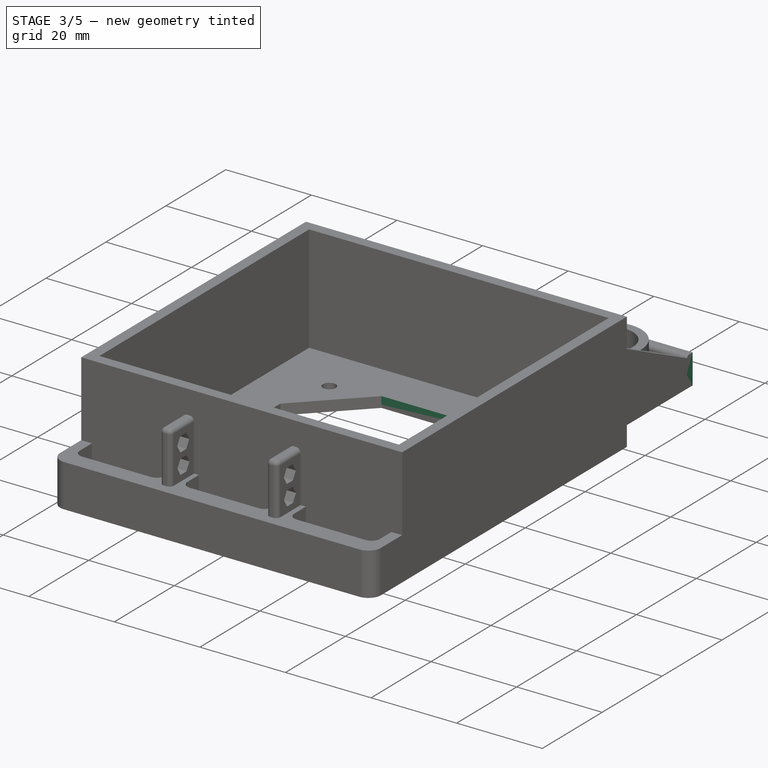
[diagram: stage 3 of 5 — iso view after this stage's code; geometry added in this stage tinted green]
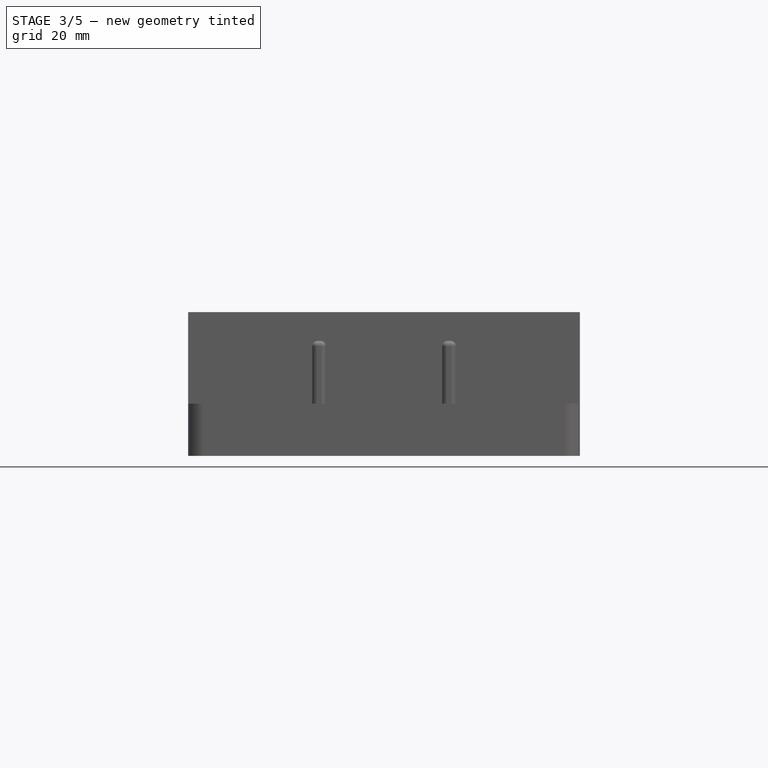
[diagram: stage 3 of 5 — front view after this stage's code; geometry added in this stage tinted green]
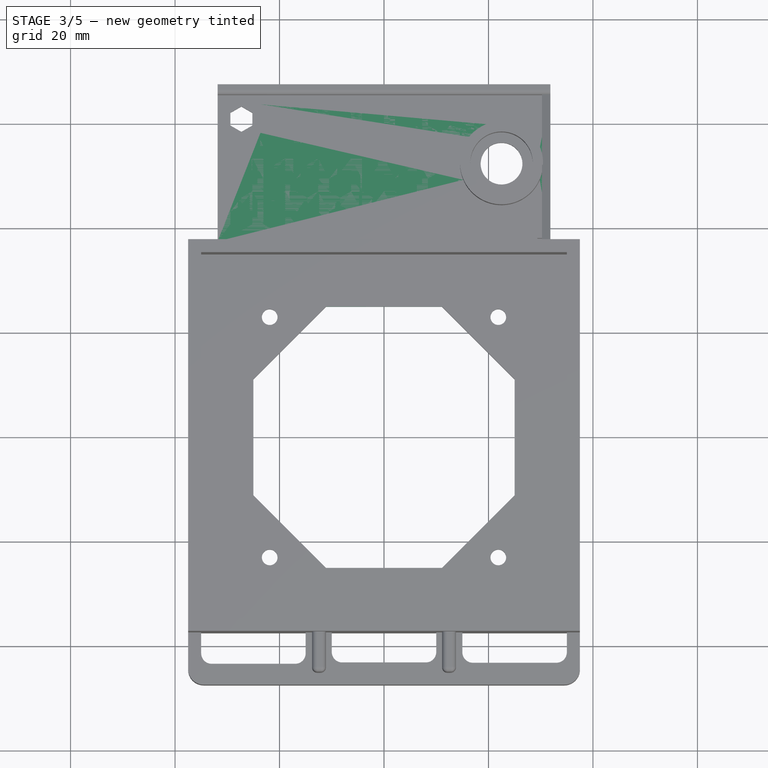
[diagram: stage 3 of 5 — top view after this stage's code; geometry added in this stage tinted green]
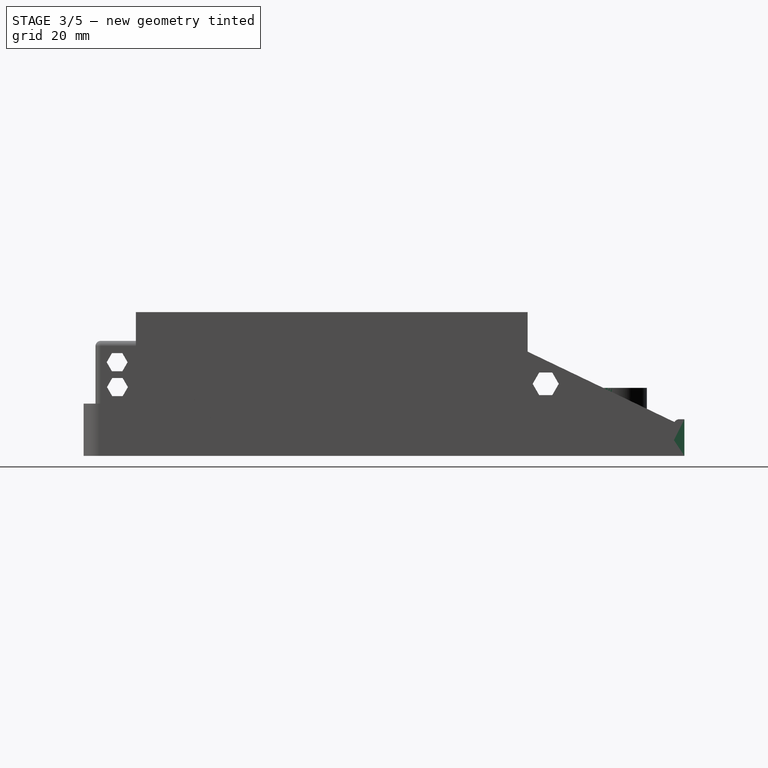
[diagram: stage 3 of 5 — right view after this stage's code; geometry added in this stage tinted green]
FEATURE [Sketcher::SketchObject] Sketch004
  Placement = pos=(0,0,10) rot=(0,0,1;0rad)
  Support = -> Fillet [Face1]
  sketch-geometry (12):
    g0: LineSegment StartX=-35 StartY=-37.5 StartZ=0 EndX=-15 EndY=-37.5 EndZ=0
    g1: LineSegment StartX=-15 StartY=-37.5 StartZ=0 EndX=-15 EndY=-43.5 EndZ=0
    g2: LineSegment StartX=-15 StartY=-43.5 StartZ=0 EndX=-35 EndY=-43.5 EndZ=0
    g3: LineSegment StartX=-35 StartY=-43.5 StartZ=0 EndX=-35 EndY=-37.5 EndZ=0
    g4: LineSegment StartX=-10 StartY=-37.5 StartZ=0 EndX=10 EndY=-37.5 EndZ=0
    g5: LineSegment StartX=10 StartY=-37.5 StartZ=0 EndX=10 EndY=-43.2451 EndZ=0
    g6: LineSegment StartX=10 StartY=-43.2451 StartZ=0 EndX=-10 EndY=-43.2451 EndZ=0
    g7: LineSegment StartX=-10 StartY=-43.2451 StartZ=0 EndX=-10 EndY=-37.5 EndZ=0
    g8: LineSegment StartX=15 StartY=-37.5 StartZ=0 EndX=35 EndY=-37.5 EndZ=0
    g9: LineSegment StartX=35 StartY=-37.5 StartZ=0 EndX=35 EndY=-43.3 EndZ=0
    g10: LineSegment StartX=35 StartY=-43.3 StartZ=0 EndX=15 EndY=-43.3 EndZ=0
    g11: LineSegment StartX=15 StartY=-43.3 StartZ=0 EndX=15 EndY=-37.5 EndZ=0
  constraints (37):
    c: Coincident(g0,g1)
    c: Coincident(g1,g2)
    c: Coincident(g2,g3)
    c: Coincident(g3,g0)
    c: Horizontal(g0)
    c: Horizontal(g2)
    c: Vertical(g1)
    c: Vertical(g3)
    c: Coincident(g4,g5)
    c: Coincident(g5,g6)
    c: Coincident(g6,g7)
    c: Coincident(g7,g4)
    c: Horizontal(g4)
    c: Horizontal(g6)
    c: Vertical(g5)
    c: Vertical(g7)
    c: Coincident(g8,g9)
    c: Coincident(g9,g10)
    c: Coincident(g10,g11)
    c: Coincident(g11,g8)
    c: Horizontal(g8)
    c: Horizontal(g10)
    c: Vertical(g9)
    c: Vertical(g11)
    c: Equal(g2,g0)
    c: Equal(g6,g4)
    c: Equal(g10,g8)
    c: Equal(g3,g1)
    c: Equal(g7,g5)
    c: Equal(g11,g9)
    c: DistanceX(g2,g2) = 20
    c: Equal(g6,g2)
    c: Equal(g2,g10)
    c: Distance(g-1,g4) = 37.5
    c: DistanceX(g-2,g0) = -35
    c: DistanceX(g-2,g8) = 35
    c: Symmetric(g5,g6,g-2)
FEATURE [PartDesign::Pocket] Pocket002
  Length = 5
  Sketch = -> Sketch004
  Type = 1
FEATURE [PartDesign::Fillet] Fillet001
  Base = -> Pocket002 [Edge33,Edge26,Edge40,Edge42,Edge35,Edge28]
  Radius = 2
FEATURE [Sketcher::SketchObject] Sketch005
  Placement = pos=(0,37.5,0) rot=(0,0.707107,0.707107;3.14159rad)
  Support = -> Fillet001 [Face25]
  sketch-geometry (4):
    g0: LineSegment StartX=-31.8532 StartY=7 StartZ=0 EndX=31.8532 EndY=7 EndZ=0
    g1: LineSegment StartX=31.8532 StartY=7 StartZ=0 EndX=31.8532 EndY=0 EndZ=0
    g2: LineSegment StartX=31.8532 StartY=0 StartZ=0 EndX=-31.8532 EndY=0 EndZ=0
    g3: LineSegment StartX=-31.8532 StartY=0 StartZ=0 EndX=-31.8532 EndY=7 EndZ=0
  constraints (12):
    c: Coincident(g0,g1)
    c: Coincident(g1,g2)
    c: Coincident(g2,g3)
    c: Coincident(g3,g0)
    c: Horizontal(g2)
    c: Vertical(g1)
    c: Vertical(g3)
    c: Equal(g2,g0)
    c: Equal(g3,g1)
    c: PointOnObject(g-1,g2)
    c: DistanceY(g3,g3) = 7
    c: Symmetric(g0,g0,g-2)
FEATURE [PartDesign::Pad] Pad002
  Length = 30
  Length2 = 100
  Sketch = -> Sketch005
  Type = 0
FEATURE [Sketcher::SketchObject] Sketch006
  Placement = pos=(0,0,7) rot=(0,0,1;0rad)
  Support = -> Pad002 [Face9]
  sketch-geometry (4):
    g0: LineSegment StartX=-32 StartY=65.5 StartZ=0 EndX=32 EndY=65.5 EndZ=0
    g1: LineSegment StartX=32 StartY=65.5 StartZ=0 EndX=32 EndY=37.5 EndZ=0
    g2: LineSegment StartX=32 StartY=37.5 StartZ=0 EndX=-32 EndY=37.5 EndZ=0
    g3: LineSegment StartX=-32 StartY=37.5 StartZ=0 EndX=-32 EndY=65.5 EndZ=0
  constraints (13):
    c: Coincident(g0,g1)
    c: Coincident(g1,g2)
    c: Coincident(g2,g3)
    c: Coincident(g3,g0)
    c: Horizontal(g2)
    c: Vertical(g1)
    c: Vertical(g3)
    c: Equal(g3,g1)
    c: Equal(g0,g2)
    c: Symmetric(g0,g0,g-2)
    c: Distance(g-1,g2) = 37.5
    c: DistanceY(g3,g3) = 28
    c: DistanceX(g0,g0) = 64
FEATURE [PartDesign::Pocket] Pocket003
  Length = 4
  Sketch = -> Sketch006
  Type = 0
FEATURE [PartDesign::Fillet] Fillet002
  Base = -> Pocket003 [Edge110]
  Radius = 0
FEATURE [Sketcher::SketchObject] Sketch007
  Placement = pos=(0,0,3) rot=(0,0,1;0rad)
  Support = -> Fillet002 [Face4]
  sketch-geometry (1):
    g0: Circle CenterX=22.5 CenterY=52.3713 CenterZ=0 NormalX=0 NormalY=0 NormalZ=1 Radius=7.95
  constraints (3):
    c: Radius(g0) = 7.95
    c: DistanceX(g-2,g0) = 22.5
    c: Distance(g-1,g0) = 57
FEATURE [PartDesign::Pad] Pad003
  Length = 10
  Length2 = 100
  Sketch = -> Sketch007
  Type = 0
FEATURE [Sketcher::SketchObject] Sketch008
  Placement = pos=(0,0,13) rot=(0,0,1;0rad)
  Support = -> Pad003 [Face1]
  sketch-geometry (1):
    g0: Circle CenterX=22.5 CenterY=52.3713 CenterZ=0 NormalX=0 NormalY=0 NormalZ=1 Radius=6
  constraints (3):
    c: Radius(g0) = 6
    c: DistanceX(g-2,g0) = 22.5
    c: Distance(g-1,g0) = 57
FEATURE [PartDesign::Pocket] Pocket004
  Length = 9
  Sketch = -> Sketch008
  Type = 0
FEATURE [Sketcher::SketchObject] Sketch009
  Placement = pos=(0,0,4) rot=(0,0,1;0rad)
  Support = -> Pocket004 [Face5]
  sketch-geometry (1):
    g0: Circle CenterX=22.5 CenterY=52.3713 CenterZ=0 NormalX=0 NormalY=0 NormalZ=1 Radius=4
  constraints (3):
    c: DistanceX(g-2,g0) = 22.5
    c: Distance(g-1,g0) = 57
    c: Radius(g0) = 4
FEATURE [PartDesign::Pocket] Pocket005
  Length = 5
  Sketch = -> Sketch009
  Type = 1
FEATURE [Sketcher::SketchObject] Sketch010
  Placement = pos=(0,0,3) rot=(0,0,1;0rad)
  Support = -> Pocket005 [Face4]
  sketch-geometry (4):
    g0: LineSegment StartX=-24.6735 StartY=61.1059 StartZ=0 EndX=-25.8367 EndY=63.1208 EndZ=0
    g1: LineSegment StartX=-25.8367 StartY=63.1208 StartZ=0 EndX=-28.1633 EndY=63.1208 EndZ=0
    g2: LineSegment StartX=-28.1633 StartY=63.1208 StartZ=0 EndX=-29.3265 EndY=61.1059 EndZ=0
    g3: LineSegment StartX=-28.1633 StartY=59.0911 StartZ=0 EndX=-25.8367 EndY=59.0911 EndZ=0
  constraints (3):
    c: Coincident(g0,g1)
    c: Coincident(g1,g2)
    c: Parallel(g3,g-1)
FEATURE [PartDesign::Pocket] Pocket006
  Length = 5
  Sketch = -> Sketch010
  Type = 1
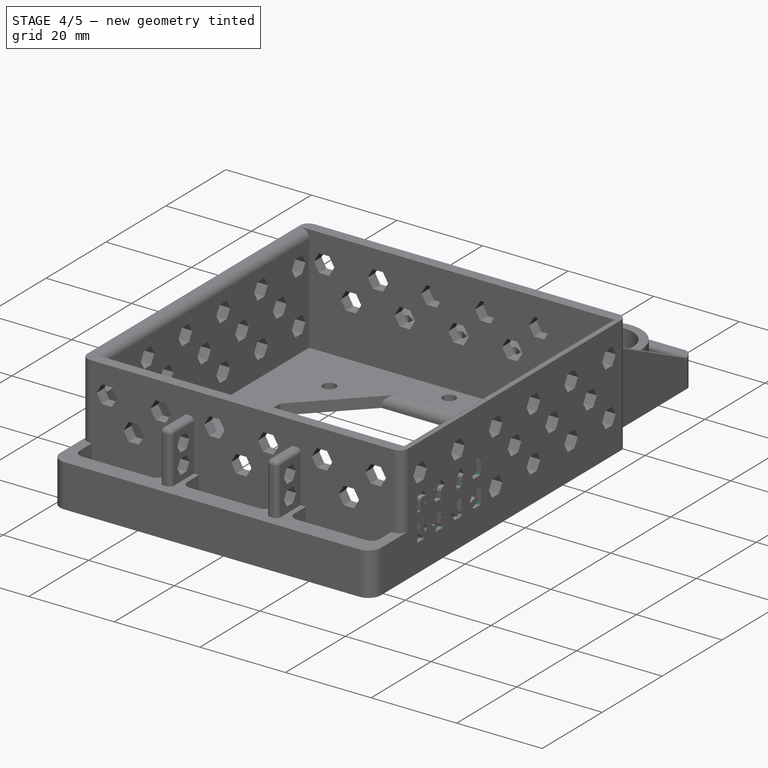
[diagram: stage 4 of 5 — iso view after this stage's code; geometry added in this stage tinted green]
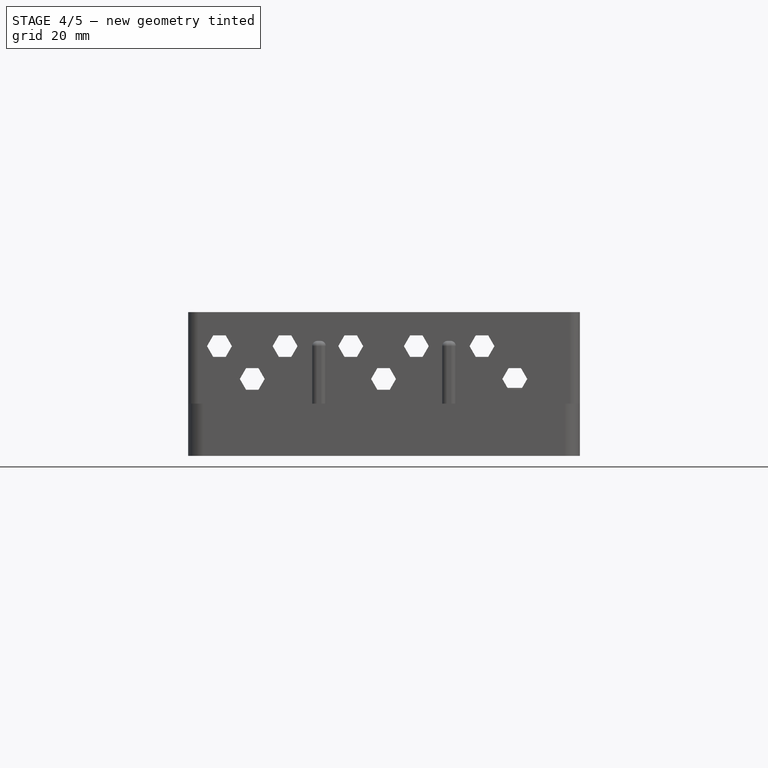
[diagram: stage 4 of 5 — front view after this stage's code; geometry added in this stage tinted green]
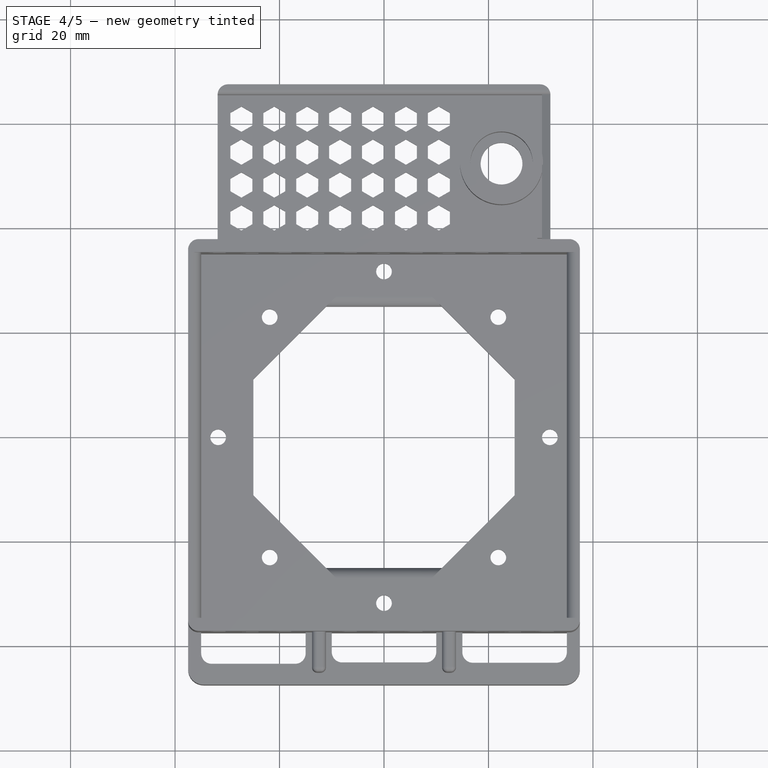
[diagram: stage 4 of 5 — top view after this stage's code; geometry added in this stage tinted green]
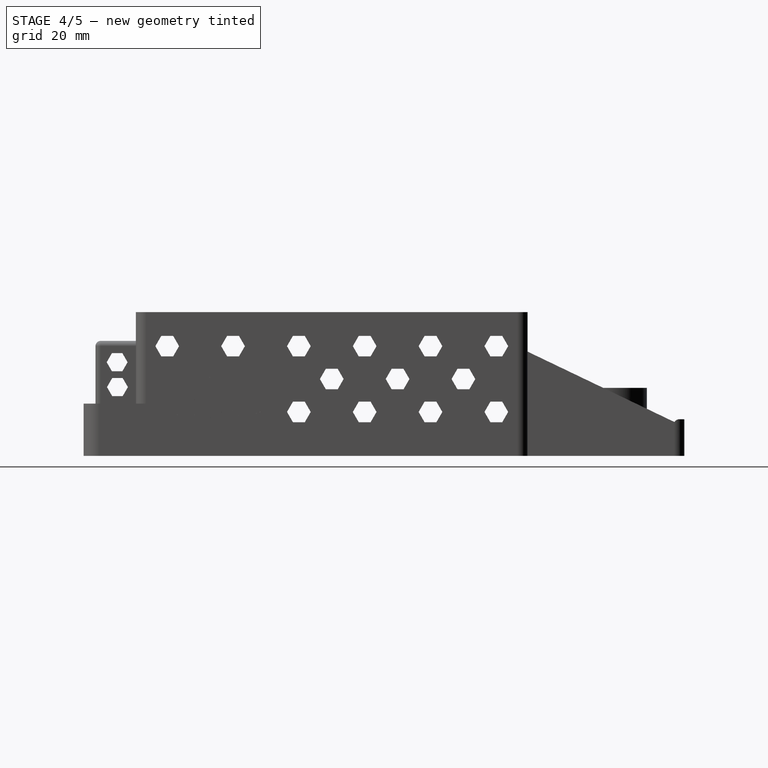
[diagram: stage 4 of 5 — right view after this stage's code; geometry added in this stage tinted green]
FEATURE [Sketcher::SketchObject] Sketch011
  Placement = pos=(0,0,2.5) rot=(0,0,1;0rad)
  Support = -> Pocket006 [Face52]
  sketch-geometry (4):
    g0: Circle CenterX=0 CenterY=31.75 CenterZ=0 NormalX=0 NormalY=0 NormalZ=1 Radius=1.5
    g1: Circle CenterX=0 CenterY=-31.75 CenterZ=0 NormalX=0 NormalY=0 NormalZ=1 Radius=1.5
    g2: Circle CenterX=-31.75 CenterY=0 CenterZ=0 NormalX=0 NormalY=0 NormalZ=1 Radius=1.5
    g3: Circle CenterX=31.75 CenterY=0 CenterZ=0 NormalX=0 NormalY=0 NormalZ=1 Radius=1.5
  constraints (12):
    c: PointOnObject(g0,g-2)
    c: PointOnObject(g1,g-2)
    c: Distance(g0,g1) = 63.5
    c: Symmetric(g0,g1,g-1)
    c: Radius(g0) = 1.5
    c: Radius(g1) = 1.5
    c: PointOnObject(g2,g-1)
    c: PointOnObject(g3,g-1)
    c: Distance(g2,g3) = 63.5
    c: Symmetric(g2,g3,g-2)
    c: Radius(g2) = 1.5
    c: Radius(g3) = 1.5
FEATURE [PartDesign::Pocket] Pocket007
  Length = 5
  Sketch = -> Sketch011
  Type = 1
FEATURE [PartDesign::Fillet] Fillet003
  Base = -> Pocket007 [Edge87,Edge96,Edge34,Edge32]
  Radius = 2
FEATURE [Sketcher::SketchObject] Sketch012
  Placement = pos=(-31.8532,0,0) rot=(0.57735,-0.57735,-0.57735;2.0944rad)
  Support = -> Fillet003 [Face8]
FEATURE [Sketcher::SketchObject] Sketch013
  Placement = pos=(31.8532,0,0) rot=(0.57735,0.57735,0.57735;2.0944rad)
  Support = -> Fillet003 [Face9]
  sketch-geometry (4):
    g0: LineSegment StartX=35.9591 StartY=2.68159 StartZ=0 EndX=65.9591 EndY=2.68159 EndZ=0
    g1: LineSegment StartX=65.9591 StartY=2.68159 StartZ=0 EndX=65.9591 EndY=6.3 EndZ=0
    g2: LineSegment StartX=65.9591 StartY=6.3 StartZ=0 EndX=35.9591 EndY=20.6816 EndZ=0
    g3: LineSegment StartX=35.9591 StartY=20.6816 StartZ=0 EndX=35.9591 EndY=2.68159 EndZ=0
  constraints (12):
    c: Horizontal(g0)
    c: Coincident(g0,g1)
    c: Vertical(g1)
    c: Coincident(g1,g2)
    c: Coincident(g2,g3)
    c: Coincident(g3,g0)
    c: Vertical(g3)
    c: DistanceY(g3,g3) = 18
    c: DistanceX(g0,g0) = 30
    c: Distance(g-1,g3) = 35.9591
    c: Distance(g-1,g0) = 2.68159
    c: DistanceY(g1,g1) = 3.61841
FEATURE [PartDesign::Pad] Pad004
  Length = 1.6
  Length2 = 100
  Reversed = true
  Sketch = -> Sketch013
  Type = 0
FEATURE [PartDesign::Fillet] Fillet004
  Base = -> Pad004 [Edge35,Edge6]
  Radius = 2
FEATURE [Sketcher::SketchObject] Sketch014
  Placement = pos=(-37.5,0,0) rot=(0.57735,-0.57735,-0.57735;2.0944rad)
  Support = -> Fillet004 [Face13]
FEATURE [Sketcher::SketchObject] Sketch015
  Placement = pos=(0,0,3) rot=(0,0,1;0rad)
  Support = -> Fillet004 [Face5]
  sketch-geometry (223):
    g0: LineSegment StartX=-25.2 StartY=40.7843 StartZ=0 EndX=-25.1972 EndY=43.2108 EndZ=0
    g1: LineSegment StartX=-25.1972 StartY=43.2108 StartZ=0 EndX=-27.2972 EndY=44.4265 EndZ=0
    g2: LineSegment StartX=-27.2972 StartY=44.4265 StartZ=0 EndX=-29.4 EndY=43.2157 EndZ=0
    g3: LineSegment StartX=-29.4 StartY=43.2157 StartZ=0 EndX=-29.4028 EndY=40.7892 EndZ=0
    g4: LineSegment StartX=-29.4028 StartY=40.7892 StartZ=0 EndX=-27.3028 EndY=39.5735 EndZ=0
    g5: LineSegment StartX=-27.3028 StartY=39.5735 StartZ=0 EndX=-25.2 EndY=40.7843 EndZ=0
    g6: Circle [constr] CenterX=-27.3 CenterY=42 CenterZ=0 NormalX=0 NormalY=0 NormalZ=1 Radius=2.42648
    g7: LineSegment StartX=-25.2 StartY=47.0843 StartZ=0 EndX=-25.1972 EndY=49.5108 EndZ=0
    g8: LineSegment StartX=-25.1972 StartY=49.5108 StartZ=0 EndX=-27.2972 EndY=50.7265 EndZ=0
    g9: LineSegment StartX=-27.2972 StartY=50.7265 StartZ=0 EndX=-29.4 EndY=49.5157 EndZ=0
    g10: LineSegment StartX=-29.4 StartY=49.5157 StartZ=0 EndX=-29.4028 EndY=47.0892 EndZ=0
    g11: LineSegment StartX=-29.4028 StartY=47.0892 StartZ=0 EndX=-27.3028 EndY=45.8735 EndZ=0
    g12: LineSegment StartX=-27.3028 StartY=45.8735 StartZ=0 EndX=-25.2 EndY=47.0843 EndZ=0
    g13: Circle [constr] CenterX=-27.3 CenterY=48.3 CenterZ=0 NormalX=0 NormalY=0 NormalZ=1 Radius=2.42648
    g14: LineSegment [constr] StartX=-25.2 StartY=40.7843 StartZ=0 EndX=-25.2 EndY=47.0843 EndZ=0
    g15: LineSegment StartX=-25.2 StartY=53.3843 StartZ=0 EndX=-25.1972 EndY=55.8108 EndZ=0
    g16: LineSegment StartX=-25.1972 StartY=55.8108 StartZ=0 EndX=-27.2972 EndY=57.0265 EndZ=0
    g17: LineSegment StartX=-27.2972 StartY=57.0265 StartZ=0 EndX=-29.4 EndY=55.8157 EndZ=0
    g18: LineSegment StartX=-29.4 StartY=55.8157 StartZ=0 EndX=-29.4028 EndY=53.3892 EndZ=0
    g19: LineSegment StartX=-29.4028 StartY=53.3892 StartZ=0 EndX=-27.3028 EndY=52.1735 EndZ=0
    g20: LineSegment StartX=-27.3028 StartY=52.1735 StartZ=0 EndX=-25.2 EndY=53.3843 EndZ=0
    g21: Circle [constr] CenterX=-27.3 CenterY=54.6 CenterZ=0 NormalX=0 NormalY=0 NormalZ=1 Radius=2.42648
    g22: LineSegment [constr] StartX=-25.2 StartY=47.0843 StartZ=0 EndX=-25.2 EndY=53.3843 EndZ=0
    g23: LineSegment StartX=-25.2 StartY=59.6843 StartZ=0 EndX=-25.1972 EndY=62.1108 EndZ=0
    g24: LineSegment StartX=-25.1972 StartY=62.1108 StartZ=0 EndX=-27.2972 EndY=63.3265 EndZ=0
    g25: LineSegment StartX=-27.2972 StartY=63.3265 StartZ=0 EndX=-29.4 EndY=62.1157 EndZ=0
    g26: LineSegment StartX=-29.4 StartY=62.1157 StartZ=0 EndX=-29.4028 EndY=59.6892 EndZ=0
    g27: LineSegment StartX=-29.4028 StartY=59.6892 StartZ=0 EndX=-27.3028 EndY=58.4735 EndZ=0
    g28: LineSegment StartX=-27.3028 StartY=58.4735 StartZ=0 EndX=-25.2 EndY=59.6843 EndZ=0
    g29: Circle [constr] CenterX=-27.3 CenterY=60.9 CenterZ=0 NormalX=0 NormalY=0 NormalZ=1 Radius=2.42648
    g30: LineSegment [constr] StartX=-25.2 StartY=53.3843 StartZ=0 EndX=-25.2 EndY=59.6843 EndZ=0
    g31: LineSegment StartX=-18.9 StartY=40.7843 StartZ=0 EndX=-18.8972 EndY=43.2108 EndZ=0
    g32: LineSegment StartX=-18.8972 StartY=43.2108 StartZ=0 EndX=-20.9972 EndY=44.4265 EndZ=0
    g33: LineSegment StartX=-20.9972 StartY=44.4265 StartZ=0 EndX=-23.1 EndY=43.2157 EndZ=0
    g34: LineSegment StartX=-23.1 StartY=43.2157 StartZ=0 EndX=-23.1028 EndY=40.7892 EndZ=0
    g35: LineSegment StartX=-23.1028 StartY=40.7892 StartZ=0 EndX=-21.0028 EndY=39.5735 EndZ=0
    g36: LineSegment StartX=-21.0028 StartY=39.5735 StartZ=0 EndX=-18.9 EndY=40.7843 EndZ=0
    g37: Circle [constr] CenterX=-21 CenterY=42 CenterZ=0 NormalX=0 NormalY=0 NormalZ=1 Radius=2.42648
    g38: LineSegment [constr] StartX=-25.2 StartY=40.7843 StartZ=0 EndX=-18.9 EndY=40.7843 EndZ=0
    g39: LineSegment StartX=-18.9 StartY=47.0843 StartZ=0 EndX=-18.8972 EndY=49.5108 EndZ=0
    g40: LineSegment StartX=-18.8972 StartY=49.5108 StartZ=0 EndX=-20.9972 EndY=50.7265 EndZ=0
    g41: LineSegment StartX=-20.9972 StartY=50.7265 StartZ=0 EndX=-23.1 EndY=49.5157 EndZ=0
    g42: LineSegment StartX=-23.1 StartY=49.5157 StartZ=0 EndX=-23.1028 EndY=47.0892 EndZ=0
    g43: LineSegment StartX=-23.1028 StartY=47.0892 StartZ=0 EndX=-21.0028 EndY=45.8735 EndZ=0
    g44: LineSegment StartX=-21.0028 StartY=45.8735 StartZ=0 EndX=-18.9 EndY=47.0843 EndZ=0
    g45: Circle [constr] CenterX=-21 CenterY=48.3 CenterZ=0 NormalX=0 NormalY=0 NormalZ=1 Radius=2.42648
    g46: LineSegment [constr] StartX=-18.9 StartY=40.7843 StartZ=0 EndX=-18.9 EndY=47.0843 EndZ=0
    g47: LineSegment StartX=-18.9 StartY=53.3843 StartZ=0 EndX=-18.8972 EndY=55.8108 EndZ=0
    g48: LineSegment StartX=-18.8972 StartY=55.8108 StartZ=0 EndX=-20.9972 EndY=57.0265 EndZ=0
    g49: LineSegment StartX=-20.9972 StartY=57.0265 StartZ=0 EndX=-23.1 EndY=55.8157 EndZ=0
    g50: LineSegment StartX=-23.1 StartY=55.8157 StartZ=0 EndX=-23.1028 EndY=53.3892 EndZ=0
    g51: LineSegment StartX=-23.1028 StartY=53.3892 StartZ=0 EndX=-21.0028 EndY=52.1735 EndZ=0
    g52: LineSegment StartX=-21.0028 StartY=52.1735 StartZ=0 EndX=-18.9 EndY=53.3843 EndZ=0
    g53: Circle [constr] CenterX=-21 CenterY=54.6 CenterZ=0 NormalX=0 NormalY=0 NormalZ=1 Radius=2.42648
    g54: LineSegment [constr] StartX=-18.9 StartY=47.0843 StartZ=0 EndX=-18.9 EndY=53.3843 EndZ=0
    g55: LineSegment StartX=-18.9 StartY=59.6843 StartZ=0 EndX=-18.8972 EndY=62.1108 EndZ=0
    g56: LineSegment StartX=-18.8972 StartY=62.1108 StartZ=0 EndX=-20.9972 EndY=63.3265 EndZ=0
    g57: LineSegment StartX=-20.9972 StartY=63.3265 StartZ=0 EndX=-23.1 EndY=62.1157 EndZ=0
    g58: LineSegment StartX=-23.1 StartY=62.1157 StartZ=0 EndX=-23.1028 EndY=59.6892 EndZ=0
    g59: LineSegment StartX=-23.1028 StartY=59.6892 StartZ=0 EndX=-21.0028 EndY=58.4735 EndZ=0
    g60: LineSegment StartX=-21.0028 StartY=58.4735 StartZ=0 EndX=-18.9 EndY=59.6843 EndZ=0
    g61: Circle [constr] CenterX=-21 CenterY=60.9 CenterZ=0 NormalX=0 NormalY=0 NormalZ=1 Radius=2.42648
    g62: LineSegment [constr] StartX=-18.9 StartY=53.3843 StartZ=0 EndX=-18.9 EndY=59.6843 EndZ=0
    g63: LineSegment StartX=-12.6 StartY=40.7843 StartZ=0 EndX=-12.5972 EndY=43.2108 EndZ=0
    g64: LineSegment StartX=-12.5972 StartY=43.2108 StartZ=0 EndX=-14.6972 EndY=44.4265 EndZ=0
    g65: LineSegment StartX=-14.6972 StartY=44.4265 StartZ=0 EndX=-16.8 EndY=43.2157 EndZ=0
    g66: LineSegment StartX=-16.8 StartY=43.2157 StartZ=0 EndX=-16.8028 EndY=40.7892 EndZ=0
    g67: LineSegment StartX=-16.8028 StartY=40.7892 StartZ=0 EndX=-14.7028 EndY=39.5735 EndZ=0
    g68: LineSegment StartX=-14.7028 StartY=39.5735 StartZ=0 EndX=-12.6 EndY=40.7843 EndZ=0
    g69: Circle [constr] CenterX=-14.7 CenterY=42 CenterZ=0 NormalX=0 NormalY=0 NormalZ=1 Radius=2.42648
    g70: LineSegment [constr] StartX=-18.9 StartY=40.7843 StartZ=0 EndX=-12.6 EndY=40.7843 EndZ=0
    g71: LineSegment StartX=-12.6 StartY=47.0843 StartZ=0 EndX=-12.5972 EndY=49.5108 EndZ=0
    g72: LineSegment StartX=-12.5972 StartY=49.5108 StartZ=0 EndX=-14.6972 EndY=50.7265 EndZ=0
    g73: LineSegment StartX=-14.6972 StartY=50.7265 StartZ=0 EndX=-16.8 EndY=49.5157 EndZ=0
    g74: LineSegment StartX=-16.8 StartY=49.5157 StartZ=0 EndX=-16.8028 EndY=47.0892 EndZ=0
    g75: LineSegment StartX=-16.8028 StartY=47.0892 StartZ=0 EndX=-14.7028 EndY=45.8735 EndZ=0
    g76: LineSegment StartX=-14.7028 StartY=45.8735 StartZ=0 EndX=-12.6 EndY=47.0843 EndZ=0
    g77: Circle [constr] CenterX=-14.7 CenterY=48.3 CenterZ=0 NormalX=0 NormalY=0 NormalZ=1 Radius=2.42648
    g78: LineSegment [constr] StartX=-12.6 StartY=40.7843 StartZ=0 EndX=-12.6 EndY=47.0843 EndZ=0
    g79: LineSegment StartX=-12.6 StartY=53.3843 StartZ=0 EndX=-12.5972 EndY=55.8108 EndZ=0
    g80: LineSegment StartX=-12.5972 StartY=55.8108 StartZ=0 EndX=-14.6972 EndY=57.0265 EndZ=0
    g81: LineSegment StartX=-14.6972 StartY=57.0265 StartZ=0 EndX=-16.8 EndY=55.8157 EndZ=0
    g82: LineSegment StartX=-16.8 StartY=55.8157 StartZ=0 EndX=-16.8028 EndY=53.3892 EndZ=0
    g83: LineSegment StartX=-16.8028 StartY=53.3892 StartZ=0 EndX=-14.7028 EndY=52.1735 EndZ=0
    g84: LineSegment StartX=-14.7028 StartY=52.1735 StartZ=0 EndX=-12.6 EndY=53.3843 EndZ=0
    g85: Circle [constr] CenterX=-14.7 CenterY=54.6 CenterZ=0 NormalX=0 NormalY=0 NormalZ=1 Radius=2.42648
    g86: LineSegment [constr] StartX=-12.6 StartY=47.0843 StartZ=0 EndX=-12.6 EndY=53.3843 EndZ=0
    g87: LineSegment StartX=-12.6 StartY=59.6843 StartZ=0 EndX=-12.5972 EndY=62.1108 EndZ=0
    g88: LineSegment StartX=-12.5972 StartY=62.1108 StartZ=0 EndX=-14.6972 EndY=63.3265 EndZ=0
    g89: LineSegment StartX=-14.6972 StartY=63.3265 StartZ=0 EndX=-16.8 EndY=62.1157 EndZ=0
    g90: LineSegment StartX=-16.8 StartY=62.1157 StartZ=0 EndX=-16.8028 EndY=59.6892 EndZ=0
    g91: LineSegment StartX=-16.8028 StartY=59.6892 StartZ=0 EndX=-14.7028 EndY=58.4735 EndZ=0
    g92: LineSegment StartX=-14.7028 StartY=58.4735 StartZ=0 EndX=-12.6 EndY=59.6843 EndZ=0
    g93: Circle [constr] CenterX=-14.7 CenterY=60.9 CenterZ=0 NormalX=0 NormalY=0 NormalZ=1 Radius=2.42648
    g94: LineSegment [constr] StartX=-12.6 StartY=53.3843 StartZ=0 EndX=-12.6 EndY=59.6843 EndZ=0
    g95: LineSegment StartX=-6.3 StartY=40.7843 StartZ=0 EndX=-6.29721 EndY=43.2108 EndZ=0
    g96: LineSegment StartX=-6.29721 StartY=43.2108 StartZ=0 EndX=-8.39721 EndY=44.4265 EndZ=0
    g97: LineSegment StartX=-8.39721 StartY=44.4265 StartZ=0 EndX=-10.5 EndY=43.2157 EndZ=0
    g98: LineSegment StartX=-10.5 StartY=43.2157 StartZ=0 EndX=-10.5028 EndY=40.7892 EndZ=0
    g99: LineSegment StartX=-10.5028 StartY=40.7892 StartZ=0 EndX=-8.40279 EndY=39.5735 EndZ=0
    g100: LineSegment StartX=-8.40279 StartY=39.5735 StartZ=0 EndX=-6.3 EndY=40.7843 EndZ=0
    g101: Circle [constr] CenterX=-8.4 CenterY=42 CenterZ=0 NormalX=0 NormalY=0 NormalZ=1 Radius=2.42648
    g102: LineSegment [constr] StartX=-12.6 StartY=40.7843 StartZ=0 EndX=-6.3 EndY=40.7843 EndZ=0
    g103: LineSegment StartX=-6.3 StartY=47.0843 StartZ=0 EndX=-6.29721 EndY=49.5108 EndZ=0
    g104: LineSegment StartX=-6.29721 StartY=49.5108 StartZ=0 EndX=-8.39721 EndY=50.7265 EndZ=0
    g105: LineSegment StartX=-8.39721 StartY=50.7265 StartZ=0 EndX=-10.5 EndY=49.5157 EndZ=0
    g106: LineSegment StartX=-10.5 StartY=49.5157 StartZ=0 EndX=-10.5028 EndY=47.0892 EndZ=0
    g107: LineSegment StartX=-10.5028 StartY=47.0892 StartZ=0 EndX=-8.40279 EndY=45.8735 EndZ=0
    g108: LineSegment StartX=-8.40279 StartY=45.8735 StartZ=0 EndX=-6.3 EndY=47.0843 EndZ=0
    g109: Circle [constr] CenterX=-8.4 CenterY=48.3 CenterZ=0 NormalX=0 NormalY=0 NormalZ=1 Radius=2.42648
    g110: LineSegment [constr] StartX=-6.3 StartY=40.7843 StartZ=0 EndX=-6.3 EndY=47.0843 EndZ=0
    g111: LineSegment StartX=-6.3 StartY=53.3843 StartZ=0 EndX=-6.29721 EndY=55.8108 EndZ=0
    g112: LineSegment StartX=-6.29721 StartY=55.8108 StartZ=0 EndX=-8.39721 EndY=57.0265 EndZ=0
    g113: LineSegment StartX=-8.39721 StartY=57.0265 StartZ=0 EndX=-10.5 EndY=55.8157 EndZ=0
    g114: LineSegment StartX=-10.5 StartY=55.8157 StartZ=0 EndX=-10.5028 EndY=53.3892 EndZ=0
    g115: LineSegment StartX=-10.5028 StartY=53.3892 StartZ=0 EndX=-8.40279 EndY=52.1735 EndZ=0
    g116: LineSegment StartX=-8.40279 StartY=52.1735 StartZ=0 EndX=-6.3 EndY=53.3843 EndZ=0
    g117: Circle [constr] CenterX=-8.4 CenterY=54.6 CenterZ=0 NormalX=0 NormalY=0 NormalZ=1 Radius=2.42648
    g118: LineSegment [constr] StartX=-6.3 StartY=47.0843 StartZ=0 EndX=-6.3 EndY=53.3843 EndZ=0
    g119: LineSegment StartX=-6.3 StartY=59.6843 StartZ=0 EndX=-6.29721 EndY=62.1108 EndZ=0
    g120: LineSegment StartX=-6.29721 StartY=62.1108 StartZ=0 EndX=-8.39721 EndY=63.3265 EndZ=0
    g121: LineSegment StartX=-8.39721 StartY=63.3265 StartZ=0 EndX=-10.5 EndY=62.1157 EndZ=0
    g122: LineSegment StartX=-10.5 StartY=62.1157 StartZ=0 EndX=-10.5028 EndY=59.6892 EndZ=0
    g123: LineSegment StartX=-10.5028 StartY=59.6892 StartZ=0 EndX=-8.40279 EndY=58.4735 EndZ=0
    g124: LineSegment StartX=-8.40279 StartY=58.4735 StartZ=0 EndX=-6.3 EndY=59.6843 EndZ=0
    g125: Circle [constr] CenterX=-8.4 CenterY=60.9 CenterZ=0 NormalX=0 NormalY=0 NormalZ=1 Radius=2.42648
    g126: LineSegment [constr] StartX=-6.3 StartY=53.3843 StartZ=0 EndX=-6.3 EndY=59.6843 EndZ=0
    g127: LineSegment StartX=0 StartY=40.7843 StartZ=0 EndX=0.00278551 EndY=43.2108 EndZ=0
    g128: LineSegment StartX=0.00278551 StartY=43.2108 StartZ=0 EndX=-2.09721 EndY=44.4265 EndZ=0
    g129: LineSegment StartX=-2.09721 StartY=44.4265 StartZ=0 EndX=-4.2 EndY=43.2157 EndZ=0
    g130: LineSegment StartX=-4.2 StartY=43.2157 StartZ=0 EndX=-4.20279 EndY=40.7892 EndZ=0
    g131: LineSegment StartX=-4.20279 StartY=40.7892 StartZ=0 EndX=-2.10279 EndY=39.5735 EndZ=0
    g132: LineSegment StartX=-2.10279 StartY=39.5735 StartZ=0 EndX=0 EndY=40.7843 EndZ=0
    g133: Circle [constr] CenterX=-2.1 CenterY=42 CenterZ=0 NormalX=0 NormalY=0 NormalZ=1 Radius=2.42648
    g134: LineSegment [constr] StartX=-6.3 StartY=40.7843 StartZ=0 EndX=0 EndY=40.7843 EndZ=0
    g135: LineSegment StartX=0 StartY=47.0843 StartZ=0 EndX=0.00278551 EndY=49.5108 EndZ=0
    g136: LineSegment StartX=0.00278551 StartY=49.5108 StartZ=0 EndX=-2.09721 EndY=50.7265 EndZ=0
    g137: LineSegment StartX=-2.09721 StartY=50.7265 StartZ=0 EndX=-4.2 EndY=49.5157 EndZ=0
    g138: LineSegment StartX=-4.2 StartY=49.5157 StartZ=0 EndX=-4.20279 EndY=47.0892 EndZ=0
    g139: LineSegment StartX=-4.20279 StartY=47.0892 StartZ=0 EndX=-2.10279 EndY=45.8735 EndZ=0
    g140: LineSegment StartX=-2.10279 StartY=45.8735 StartZ=0 EndX=0 EndY=47.0843 EndZ=0
    g141: Circle [constr] CenterX=-2.1 CenterY=48.3 CenterZ=0 NormalX=0 NormalY=0 NormalZ=1 Radius=2.42648
    g142: LineSegment [constr] StartX=0 StartY=40.7843 StartZ=0 EndX=0 EndY=47.0843 EndZ=0
    g143: LineSegment StartX=0 StartY=53.3843 StartZ=0 EndX=0.00278551 EndY=55.8108 EndZ=0
    g144: LineSegment StartX=0.00278551 StartY=55.8108 StartZ=0 EndX=-2.09721 EndY=57.0265 EndZ=0
    g145: LineSegment StartX=-2.09721 StartY=57.0265 StartZ=0 EndX=-4.2 EndY=55.8157 EndZ=0
    g146: LineSegment StartX=-4.2 StartY=55.8157 StartZ=0 EndX=-4.20279 EndY=53.3892 EndZ=0
    g147: LineSegment StartX=-4.20279 StartY=53.3892 StartZ=0 EndX=-2.10279 EndY=52.1735 EndZ=0
    g148: LineSegment StartX=-2.10279 StartY=52.1735 StartZ=0 EndX=0 EndY=53.3843 EndZ=0
    g149: Circle [constr] CenterX=-2.1 CenterY=54.6 CenterZ=0 NormalX=0 NormalY=0 NormalZ=1 Radius=2.42648
    g150: LineSegment [constr] StartX=0 StartY=47.0843 StartZ=0 EndX=0 EndY=53.3843 EndZ=0
    g151: LineSegment StartX=0 StartY=59.6843 StartZ=0 EndX=0.00278551 EndY=62.1108 EndZ=0
    g152: LineSegment StartX=0.00278551 StartY=62.1108 StartZ=0 EndX=-2.09721 EndY=63.3265 EndZ=0
    g153: LineSegment StartX=-2.09721 StartY=63.3265 StartZ=0 EndX=-4.2 EndY=62.1157 EndZ=0
    g154: LineSegment StartX=-4.2 StartY=62.1157 StartZ=0 EndX=-4.20279 EndY=59.6892 EndZ=0
    g155: LineSegment StartX=-4.20279 StartY=59.6892 StartZ=0 EndX=-2.10279 EndY=58.4735 EndZ=0
    g156: LineSegment StartX=-2.10279 StartY=58.4735 StartZ=0 EndX=0 EndY=59.6843 EndZ=0
    g157: Circle [constr] CenterX=-2.1 CenterY=60.9 CenterZ=0 NormalX=0 NormalY=0 NormalZ=1 Radius=2.42648
    g158: LineSegment [constr] StartX=0 StartY=53.3843 StartZ=0 EndX=0 EndY=59.6843 EndZ=0
    g159: LineSegment StartX=6.3 StartY=40.7843 StartZ=0 EndX=6.30279 EndY=43.2108 EndZ=0
    g160: LineSegment StartX=6.30279 StartY=43.2108 StartZ=0 EndX=4.20279 EndY=44.4265 EndZ=0
    g161: LineSegment StartX=4.20279 StartY=44.4265 StartZ=0 EndX=2.1 EndY=43.2157 EndZ=0
    g162: LineSegment StartX=2.1 StartY=43.2157 StartZ=0 EndX=2.09721 EndY=40.7892 EndZ=0
    g163: LineSegment StartX=2.09721 StartY=40.7892 StartZ=0 EndX=4.19721 EndY=39.5735 EndZ=0
    g164: LineSegment StartX=4.19721 StartY=39.5735 StartZ=0 EndX=6.3 EndY=40.7843 EndZ=0
    g165: Circle [constr] CenterX=4.2 CenterY=42 CenterZ=0 NormalX=0 NormalY=0 NormalZ=1 Radius=2.42648
    g166: LineSegment [constr] StartX=0 StartY=40.7843 StartZ=0 EndX=6.3 EndY=40.7843 EndZ=0
    g167: LineSegment StartX=6.3 StartY=47.0843 StartZ=0 EndX=6.30279 EndY=49.5108 EndZ=0
    g168: LineSegment StartX=6.30279 StartY=49.5108 StartZ=0 EndX=4.20279 EndY=50.7265 EndZ=0
    g169: LineSegment StartX=4.20279 StartY=50.7265 StartZ=0 EndX=2.1 EndY=49.5157 EndZ=0
    g170: LineSegment StartX=2.1 StartY=49.5157 StartZ=0 EndX=2.09721 EndY=47.0892 EndZ=0
    g171: LineSegment StartX=2.09721 StartY=47.0892 StartZ=0 EndX=4.19721 EndY=45.8735 EndZ=0
    g172: LineSegment StartX=4.19721 StartY=45.8735 StartZ=0 EndX=6.3 EndY=47.0843 EndZ=0
    g173: Circle [constr] CenterX=4.2 CenterY=48.3 CenterZ=0 NormalX=0 NormalY=0 NormalZ=1 Radius=2.42648
    g174: LineSegment [constr] StartX=6.3 StartY=40.7843 StartZ=0 EndX=6.3 EndY=47.0843 EndZ=0
    g175: LineSegment StartX=6.3 StartY=53.3843 StartZ=0 EndX=6.30279 EndY=55.8108 EndZ=0
    g176: LineSegment StartX=6.30279 StartY=55.8108 StartZ=0 EndX=4.20279 EndY=57.0265 EndZ=0
    g177: LineSegment StartX=4.20279 StartY=57.0265 StartZ=0 EndX=2.1 EndY=55.8157 EndZ=0
    g178: LineSegment StartX=2.1 StartY=55.8157 StartZ=0 EndX=2.09721 EndY=53.3892 EndZ=0
    g179: LineSegment StartX=2.09721 StartY=53.3892 StartZ=0 EndX=4.19721 EndY=52.1735 EndZ=0
    g180: LineSegment StartX=4.19721 StartY=52.1735 StartZ=0 EndX=6.3 EndY=53.3843 EndZ=0
    g181: Circle [constr] CenterX=4.2 CenterY=54.6 CenterZ=0 NormalX=0 NormalY=0 NormalZ=1 Radius=2.42648
    g182: LineSegment [constr] StartX=6.3 StartY=47.0843 StartZ=0 EndX=6.3 EndY=53.3843 EndZ=0
    g183: LineSegment StartX=6.3 StartY=59.6843 StartZ=0 EndX=6.30279 EndY=62.1108 EndZ=0
    g184: LineSegment StartX=6.30279 StartY=62.1108 StartZ=0 EndX=4.20279 EndY=63.3265 EndZ=0
    g185: LineSegment StartX=4.20279 StartY=63.3265 StartZ=0 EndX=2.1 EndY=62.1157 EndZ=0
    g186: LineSegment StartX=2.1 StartY=62.1157 StartZ=0 EndX=2.09721 EndY=59.6892 EndZ=0
    g187: LineSegment StartX=2.09721 StartY=59.6892 StartZ=0 EndX=4.19721 EndY=58.4735 EndZ=0
    g188: LineSegment StartX=4.19721 StartY=58.4735 StartZ=0 EndX=6.3 EndY=59.6843 EndZ=0
    g189: Circle [constr] CenterX=4.2 CenterY=60.9 CenterZ=0 NormalX=0 NormalY=0 NormalZ=1 Radius=2.42648
    g190: LineSegment [constr] StartX=6.3 StartY=53.3843 StartZ=0 EndX=6.3 EndY=59.6843 EndZ=0
    g191: LineSegment StartX=12.6 StartY=40.7843 StartZ=0 EndX=12.6028 EndY=43.2108 EndZ=0
    g192: LineSegment StartX=12.6028 StartY=43.2108 StartZ=0 EndX=10.5028 EndY=44.4265 EndZ=0
    g193: LineSegment StartX=10.5028 StartY=44.4265 StartZ=0 EndX=8.4 EndY=43.2157 EndZ=0
    g194: LineSegment StartX=8.4 StartY=43.2157 StartZ=0 EndX=8.39721 EndY=40.7892 EndZ=0
    g195: LineSegment StartX=8.39721 StartY=40.7892 StartZ=0 EndX=10.4972 EndY=39.5735 EndZ=0
    g196: LineSegment StartX=10.4972 StartY=39.5735 StartZ=0 EndX=12.6 EndY=40.7843 EndZ=0
    g197: Circle [constr] CenterX=10.5 CenterY=42 CenterZ=0 NormalX=0 NormalY=0 NormalZ=1 Radius=2.42648
    g198: LineSegment [constr] StartX=6.3 StartY=40.7843 StartZ=0 EndX=12.6 EndY=40.7843 EndZ=0
    g199: LineSegment StartX=12.6 StartY=47.0843 StartZ=0 EndX=12.6028 EndY=49.5108 EndZ=0
    g200: LineSegment StartX=12.6028 StartY=49.5108 StartZ=0 EndX=10.5028 EndY=50.7265 EndZ=0
    g201: LineSegment StartX=10.5028 StartY=50.7265 StartZ=0 EndX=8.4 EndY=49.5157 EndZ=0
    g202: LineSegment StartX=8.4 StartY=49.5157 StartZ=0 EndX=8.39721 EndY=47.0892 EndZ=0
    g203: LineSegment StartX=8.39721 StartY=47.0892 StartZ=0 EndX=10.4972 EndY=45.8735 EndZ=0
    g204: LineSegment StartX=10.4972 StartY=45.8735 StartZ=0 EndX=12.6 EndY=47.0843 EndZ=0
    g205: Circle [constr] CenterX=10.5 CenterY=48.3 CenterZ=0 NormalX=0 NormalY=0 NormalZ=1 Radius=2.42648
    g206: LineSegment [constr] StartX=12.6 StartY=40.7843 StartZ=0 EndX=12.6 EndY=47.0843 EndZ=0
    g207: LineSegment StartX=12.6 StartY=53.3843 StartZ=0 EndX=12.6028 EndY=55.8108 EndZ=0
    g208: LineSegment StartX=12.6028 StartY=55.8108 StartZ=0 EndX=10.5028 EndY=57.0265 EndZ=0
    g209: LineSegment StartX=10.5028 StartY=57.0265 StartZ=0 EndX=8.4 EndY=55.8157 EndZ=0
    g210: LineSegment StartX=8.4 StartY=55.8157 StartZ=0 EndX=8.39721 EndY=53.3892 EndZ=0
    g211: LineSegment StartX=8.39721 StartY=53.3892 StartZ=0 EndX=10.4972 EndY=52.1735 EndZ=0
    g212: LineSegment StartX=10.4972 StartY=52.1735 StartZ=0 EndX=12.6 EndY=53.3843 EndZ=0
    g213: Circle [constr] CenterX=10.5 CenterY=54.6 CenterZ=0 NormalX=0 NormalY=0 NormalZ=1 Radius=2.42648
    g214: LineSegment [constr] StartX=12.6 StartY=47.0843 StartZ=0 EndX=12.6 EndY=53.3843 EndZ=0
    g215: LineSegment StartX=12.6 StartY=59.6843 StartZ=0 EndX=12.6028 EndY=62.1108 EndZ=0
    g216: LineSegment StartX=12.6028 StartY=62.1108 StartZ=0 EndX=10.5028 EndY=63.3265 EndZ=0
    g217: LineSegment StartX=10.5028 StartY=63.3265 StartZ=0 EndX=8.4 EndY=62.1157 EndZ=0
    g218: LineSegment StartX=8.4 StartY=62.1157 StartZ=0 EndX=8.39721 EndY=59.6892 EndZ=0
    g219: LineSegment StartX=8.39721 StartY=59.6892 StartZ=0 EndX=10.4972 EndY=58.4735 EndZ=0
    g220: LineSegment StartX=10.4972 StartY=58.4735 StartZ=0 EndX=12.6 EndY=59.6843 EndZ=0
    g221: Circle [constr] CenterX=10.5 CenterY=60.9 CenterZ=0 NormalX=0 NormalY=0 NormalZ=1 Radius=2.42648
    g222: LineSegment [constr] StartX=12.6 StartY=53.3843 StartZ=0 EndX=12.6 EndY=59.6843 EndZ=0
  constraints (472):
    c: Coincident(g0,g1)
    c: Coincident(g1,g2)
    c: Coincident(g2,g3)
    c: Coincident(g3,g4)
    c: Coincident(g4,g5)
    c: Coincident(g5,g0)
    c: Equal(g0, g1-g5) x5
    c: PointOnObject(g0,g6)
    c: PointOnObject(g1,g6)
    c: PointOnObject(g2,g6)
    c: PointOnObject(g3,g6)
    c: PointOnObject(g4,g6)
    c: PointOnObject(g5,g6)
    c: Coincident(g7,g8)
    c: Coincident(g8,g9)
    c: Coincident(g9,g10)
    c: Coincident(g10,g11)
    c: Coincident(g11,g12)
    c: Coincident(g12,g7)
    c: Equal(g7, g8-g12) x5
    c: PointOnObject(g7,g13)
    c: PointOnObject(g8,g13)
    c: PointOnObject(g9,g13)
    c: PointOnObject(g10,g13)
    c: PointOnObject(g11,g13)
    c: PointOnObject(g12,g13)
    c: Coincident(g0,g14)
    c: Coincident(g7,g14)
    c: Distance(g14) = 6.3
    c: Angle(g14) = 1.5708
    c: Coincident(g15,g16)
    c: Coincident(g16,g17)
    c: Coincident(g17,g18)
    c: Coincident(g18,g19)
    c: Coincident(g19,g20)
    c: Coincident(g20,g15)
    c: Equal(g15, g16-g20) x5
    c: PointOnObject(g15,g21)
    c: PointOnObject(g16,g21)
    c: PointOnObject(g17,g21)
    c: PointOnObject(g18,g21)
    c: PointOnObject(g19,g21)
    c: PointOnObject(g20,g21)
    c: Coincident(g7,g22)
    c: Coincident(g15,g22)
    c: Equal(g14,g22)
    c: Parallel(g22,g14)
    c: Coincident(g23,g24)
    c: Coincident(g24,g25)
    c: Coincident(g25,g26)
    c: Coincident(g26,g27)
    c: Coincident(g27,g28)
    c: Coincident(g28,g23)
    c: Equal(g23, g24-g28) x5
    c: PointOnObject(g23,g29)
    c: PointOnObject(g24,g29)
    c: PointOnObject(g25,g29)
    c: PointOnObject(g26,g29)
    c: PointOnObject(g27,g29)
    c: PointOnObject(g28,g29)
    c: Coincident(g15,g30)
    c: Coincident(g23,g30)
    c: Equal(g14,g30)
    c: Parallel(g30,g14)
    c: Coincident(g31,g32)
    c: Coincident(g32,g33)
    c: Coincident(g33,g34)
    c: Coincident(g34,g35)
    c: Coincident(g35,g36)
    c: Coincident(g36,g31)
    c: Equal(g31, g32-g36) x5
    c: PointOnObject(g31,g37)
    c: PointOnObject(g32,g37)
    c: PointOnObject(g33,g37)
    c: PointOnObject(g34,g37)
    c: PointOnObject(g35,g37)
    c: PointOnObject(g36,g37)
    c: Coincident(g0,g38)
    c: Coincident(g31,g38)
    c: Equal(g38,g14)
    c: Perpendicular(g38,g14)
    c: Coincident(g39,g40)
    c: Coincident(g40,g41)
    c: Coincident(g41,g42)
    c: Coincident(g42,g43)
    c: Coincident(g43,g44)
    c: Coincident(g44,g39)
    c: Equal(g39, g40-g44) x5
    c: PointOnObject(g39,g45)
    c: PointOnObject(g40,g45)
    c: PointOnObject(g41,g45)
    c: PointOnObject(g42,g45)
    c: PointOnObject(g43,g45)
    c: PointOnObject(g44,g45)
    c: Coincident(g31,g46)
    c: Coincident(g39,g46)
    c: Equal(g14,g46)
    c: Parallel(g46,g14)
    c: Coincident(g47,g48)
    c: Coincident(g48,g49)
    c: Coincident(g49,g50)
    c: Coincident(g50,g51)
    c: Coincident(g51,g52)
    c: Coincident(g52,g47)
    c: Equal(g47, g48-g52) x5
    c: PointOnObject(g47,g53)
    c: PointOnObject(g48,g53)
    c: PointOnObject(g49,g53)
    c: PointOnObject(g50,g53)
    c: PointOnObject(g51,g53)
    c: PointOnObject(g52,g53)
    c: Coincident(g39,g54)
    c: Coincident(g47,g54)
    c: Equal(g14,g54)
    c: Parallel(g54,g14)
    c: Coincident(g55,g56)
    c: Coincident(g56,g57)
    c: Coincident(g57,g58)
    c: Coincident(g58,g59)
    c: Coincident(g59,g60)
    c: Coincident(g60,g55)
    c: Equal(g55, g56-g60) x5
    c: PointOnObject(g55,g61)
    c: PointOnObject(g56,g61)
    c: PointOnObject(g57,g61)
    c: PointOnObject(g58,g61)
    c: PointOnObject(g59,g61)
    c: PointOnObject(g60,g61)
    c: Coincident(g47,g62)
    c: Coincident(g55,g62)
    c: Equal(g14,g62)
    c: Parallel(g62,g14)
    c: Coincident(g63,g64)
    c: Coincident(g64,g65)
    c: Coincident(g65,g66)
    c: Coincident(g66,g67)
    c: Coincident(g67,g68)
    c: Coincident(g68,g63)
    c: Equal(g63, g64-g68) x5
    c: PointOnObject(g63,g69)
    c: PointOnObject(g64,g69)
    c: PointOnObject(g65,g69)
    c: PointOnObject(g66,g69)
    c: PointOnObject(g67,g69)
    c: PointOnObject(g68,g69)
    c: Coincident(g31,g70)
    c: Coincident(g63,g70)
    c: Equal(g38,g70)
    c: Perpendicular(g70,g14)
    c: Coincident(g71,g72)
    c: Coincident(g72,g73)
    c: Coincident(g73,g74)
    c: Coincident(g74,g75)
    c: Coincident(g75,g76)
    c: Coincident(g76,g71)
    c: Equal(g71, g72-g76) x5
    c: PointOnObject(g71,g77)
    c: PointOnObject(g72,g77)
    c: PointOnObject(g73,g77)
    c: PointOnObject(g74,g77)
    c: PointOnObject(g75,g77)
    c: PointOnObject(g76,g77)
    c: Coincident(g63,g78)
    c: Coincident(g71,g78)
    c: Equal(g14,g78)
    c: Parallel(g78,g14)
    c: Coincident(g79,g80)
    c: Coincident(g80,g81)
    c: Coincident(g81,g82)
    c: Coincident(g82,g83)
    c: Coincident(g83,g84)
    c: Coincident(g84,g79)
    c: Equal(g79, g80-g84) x5
    c: PointOnObject(g79,g85)
    c: PointOnObject(g80,g85)
    c: PointOnObject(g81,g85)
    c: PointOnObject(g82,g85)
    c: PointOnObject(g83,g85)
    c: PointOnObject(g84,g85)
    c: Coincident(g71,g86)
    c: Coincident(g79,g86)
    c: Equal(g14,g86)
    c: Parallel(g86,g14)
    c: Coincident(g87,g88)
    c: Coincident(g88,g89)
    c: Coincident(g89,g90)
    c: Coincident(g90,g91)
    c: Coincident(g91,g92)
    c: Coincident(g92,g87)
    c: Equal(g87, g88-g92) x5
    c: PointOnObject(g87,g93)
    c: PointOnObject(g88,g93)
    c: PointOnObject(g89,g93)
    c: PointOnObject(g90,g93)
    c: PointOnObject(g91,g93)
    c: PointOnObject(g92,g93)
    c: Coincident(g79,g94)
    c: Coincident(g87,g94)
    c: Equal(g14,g94)
    c: Parallel(g94,g14)
    c: Coincident(g95,g96)
    c: Coincident(g96,g97)
    c: Coincident(g97,g98)
    c: Coincident(g98,g99)
    c: Coincident(g99,g100)
    c: Coincident(g100,g95)
    c: Equal(g95, g96-g100) x5
    c: PointOnObject(g95,g101)
    c: PointOnObject(g96,g101)
    c: PointOnObject(g97,g101)
    c: PointOnObject(g98,g101)
    c: PointOnObject(g99,g101)
    c: PointOnObject(g100,g101)
    c: Coincident(g63,g102)
    c: Coincident(g95,g102)
    c: Equal(g38,g102)
    c: Perpendicular(g102,g14)
    c: Coincident(g103,g104)
    c: Coincident(g104,g105)
    c: Coincident(g105,g106)
    c: Coincident(g106,g107)
    c: Coincident(g107,g108)
    c: Coincident(g108,g103)
    c: Equal(g103, g104-g108) x5
    c: PointOnObject(g103,g109)
    c: PointOnObject(g104,g109)
    c: PointOnObject(g105,g109)
    c: PointOnObject(g106,g109)
    c: PointOnObject(g107,g109)
    c: PointOnObject(g108,g109)
    c: Coincident(g95,g110)
    c: Coincident(g103,g110)
    c: Equal(g14,g110)
    c: Parallel(g110,g14)
    c: Coincident(g111,g112)
    c: Coincident(g112,g113)
    c: Coincident(g113,g114)
    c: Coincident(g114,g115)
    c: Coincident(g115,g116)
    c: Coincident(g116,g111)
    c: Equal(g111, g112-g116) x5
    c: PointOnObject(g111,g117)
    c: PointOnObject(g112,g117)
    c: PointOnObject(g113,g117)
    c: PointOnObject(g114,g117)
    c: PointOnObject(g115,g117)
    c: PointOnObject(g116,g117)
    c: Coincident(g103,g118)
    c: Coincident(g111,g118)
    c: Equal(g14,g118)
    c: Parallel(g118,g14)
    c: Coincident(g119,g120)
    c: Coincident(g120,g121)
    c: Coincident(g121,g122)
    c: Coincident(g122,g123)
    c: Coincident(g123,g124)
    c: Coincident(g124,g119)
    c: Equal(g119, g120-g124) x5
    c: PointOnObject(g119,g125)
    c: PointOnObject(g120,g125)
    c: PointOnObject(g121,g125)
    c: PointOnObject(g122,g125)
    c: PointOnObject(g123,g125)
    c: PointOnObject(g124,g125)
    c: Coincident(g111,g126)
    c: Coincident(g119,g126)
    c: Equal(g14,g126)
    c: Parallel(g126,g14)
    c: Coincident(g127,g128)
    c: Coincident(g128,g129)
    c: Coincident(g129,g130)
    c: Coincident(g130,g131)
    c: Coincident(g131,g132)
    c: Coincident(g132,g127)
    c: Equal(g127, g128-g132) x5
    c: PointOnObject(g127,g133)
    c: PointOnObject(g128,g133)
    c: PointOnObject(g129,g133)
    c: PointOnObject(g130,g133)
    c: PointOnObject(g131,g133)
    c: PointOnObject(g132,g133)
    c: Coincident(g95,g134)
    c: Coincident(g127,g134)
    c: Equal(g38,g134)
    c: Perpendicular(g134,g14)
    c: Coincident(g135,g136)
    c: Coincident(g136,g137)
    c: Coincident(g137,g138)
    c: Coincident(g138,g139)
    c: Coincident(g139,g140)
    c: Coincident(g140,g135)
    c: Equal(g135, g136-g140) x5
    c: PointOnObject(g135,g141)
    c: PointOnObject(g136,g141)
    c: PointOnObject(g137,g141)
    c: PointOnObject(g138,g141)
    c: PointOnObject(g139,g141)
    c: PointOnObject(g140,g141)
    c: Coincident(g127,g142)
    c: Coincident(g135,g142)
    c: Equal(g14,g142)
    c: Parallel(g142,g14)
    c: Coincident(g143,g144)
    c: Coincident(g144,g145)
    c: Coincident(g145,g146)
    c: Coincident(g146,g147)
    c: Coincident(g147,g148)
    c: Coincident(g148,g143)
    c: Equal(g143, g144-g148) x5
    c: PointOnObject(g143,g149)
    c: PointOnObject(g144,g149)
    c: PointOnObject(g145,g149)
    c: PointOnObject(g146,g149)
    c: PointOnObject(g147,g149)
    c: PointOnObject(g148,g149)
    c: Coincident(g135,g150)
    c: Coincident(g143,g150)
    c: Equal(g14,g150)
    c: Parallel(g150,g14)
    c: Coincident(g151,g152)
    c: Coincident(g152,g153)
    c: Coincident(g153,g154)
    c: Coincident(g154,g155)
    c: Coincident(g155,g156)
    c: Coincident(g156,g151)
    c: Equal(g151, g152-g156) x5
    c: PointOnObject(g151,g157)
    c: PointOnObject(g152,g157)
    c: PointOnObject(g153,g157)
    c: PointOnObject(g154,g157)
    c: PointOnObject(g155,g157)
    c: PointOnObject(g156,g157)
    c: Coincident(g143,g158)
    c: Coincident(g151,g158)
    c: Equal(g14,g158)
    c: Parallel(g158,g14)
    c: Coincident(g159,g160)
    c: Coincident(g160,g161)
    c: Coincident(g161,g162)
    c: Coincident(g162,g163)
    c: Coincident(g163,g164)
    c: Coincident(g164,g159)
    c: Equal(g159, g160-g164) x5
    c: PointOnObject(g159,g165)
    c: PointOnObject(g160,g165)
    c: PointOnObject(g161,g165)
    c: PointOnObject(g162,g165)
    c: PointOnObject(g163,g165)
    c: PointOnObject(g164,g165)
    c: Coincident(g127,g166)
    c: Coincident(g159,g166)
    c: Equal(g38,g166)
    c: Perpendicular(g166,g14)
    c: Coincident(g167,g168)
    c: Coincident(g168,g169)
    c: Coincident(g169,g170)
    c: Coincident(g170,g171)
    c: Coincident(g171,g172)
    c: Coincident(g172,g167)
    c: Equal(g167, g168-g172) x5
    c: PointOnObject(g167,g173)
    c: PointOnObject(g168,g173)
    c: PointOnObject(g169,g173)
    c: PointOnObject(g170,g173)
    c: PointOnObject(g171,g173)
    c: PointOnObject(g172,g173)
    c: Coincident(g159,g174)
    c: Coincident(g167,g174)
    c: Equal(g14,g174)
    c: Parallel(g174,g14)
    c: Coincident(g175,g176)
    c: Coincident(g176,g177)
    c: Coincident(g177,g178)
    c: Coincident(g178,g179)
    c: Coincident(g179,g180)
    c: Coincident(g180,g175)
    c: Equal(g175, g176-g180) x5
    c: PointOnObject(g175,g181)
    c: PointOnObject(g176,g181)
    c: PointOnObject(g177,g181)
    c: PointOnObject(g178,g181)
    c: PointOnObject(g179,g181)
    c: PointOnObject(g180,g181)
    c: Coincident(g167,g182)
    c: Coincident(g175,g182)
    c: Equal(g14,g182)
    c: Parallel(g182,g14)
    c: Coincident(g183,g184)
    c: Coincident(g184,g185)
    c: Coincident(g185,g186)
    c: Coincident(g186,g187)
    c: Coincident(g187,g188)
    c: Coincident(g188,g183)
    c: Equal(g183, g184-g188) x5
    c: PointOnObject(g183,g189)
    c: PointOnObject(g184,g189)
    c: PointOnObject(g185,g189)
    c: PointOnObject(g186,g189)
    c: PointOnObject(g187,g189)
    c: PointOnObject(g188,g189)
    c: Coincident(g175,g190)
    c: Coincident(g183,g190)
    c: Equal(g14,g190)
    c: Parallel(g190,g14)
    c: Coincident(g191,g192)
    c: Coincident(g192,g193)
    c: Coincident(g193,g194)
    c: Coincident(g194,g195)
    c: Coincident(g195,g196)
    c: Coincident(g196,g191)
    c: Equal(g191, g192-g196) x5
    c: PointOnObject(g191,g197)
    c: PointOnObject(g192,g197)
    c: PointOnObject(g193,g197)
    c: PointOnObject(g194,g197)
    c: PointOnObject(g195,g197)
    c: PointOnObject(g196,g197)
    c: Coincident(g159,g198)
    c: Coincident(g191,g198)
    c: Equal(g38,g198)
    c: Perpendicular(g198,g14)
    c: Coincident(g199,g200)
    c: Coincident(g200,g201)
    c: Coincident(g201,g202)
    c: Coincident(g202,g203)
    c: Coincident(g203,g204)
    c: Coincident(g204,g199)
    c: Equal(g199, g200-g204) x5
    c: PointOnObject(g199,g205)
    c: PointOnObject(g200,g205)
    c: PointOnObject(g201,g205)
    c: PointOnObject(g202,g205)
    c: PointOnObject(g203,g205)
    c: PointOnObject(g204,g205)
    c: Coincident(g191,g206)
    c: Coincident(g199,g206)
    c: Equal(g14,g206)
    c: Parallel(g206,g14)
    c: Coincident(g207,g208)
    c: Coincident(g208,g209)
    c: Coincident(g209,g210)
    c: Coincident(g210,g211)
    c: Coincident(g211,g212)
    c: Coincident(g212,g207)
    c: Equal(g207, g208-g212) x5
    c: PointOnObject(g207,g213)
    c: PointOnObject(g208,g213)
    c: PointOnObject(g209,g213)
    c: PointOnObject(g210,g213)
    c: PointOnObject(g211,g213)
    c: PointOnObject(g212,g213)
    c: Coincident(g199,g214)
    c: Coincident(g207,g214)
    c: Equal(g14,g214)
    c: Parallel(g214,g14)
    c: Coincident(g215,g216)
    c: Coincident(g216,g217)
    c: Coincident(g217,g218)
    c: Coincident(g218,g219)
    c: Coincident(g219,g220)
    c: Coincident(g220,g215)
    c: Equal(g215, g216-g220) x5
    c: PointOnObject(g215,g221)
    c: PointOnObject(g216,g221)
    c: PointOnObject(g217,g221)
    c: PointOnObject(g218,g221)
    c: PointOnObject(g219,g221)
    c: PointOnObject(g220,g221)
    c: Coincident(g207,g222)
    c: Coincident(g215,g222)
    c: Equal(g14,g222)
    c: Parallel(g222,g14)
FEATURE [PartDesign::Pocket] Pocket008
  Length = 5
  Sketch = -> Sketch015
  Type = 1
FEATURE [Sketcher::SketchObject] Sketch016
  Placement = pos=(37.5,0,0) rot=(0.57735,0.57735,0.57735;2.0944rad)
  Support = -> Pocket008 [Face10]
  sketch-geometry (263):
    g0: LineSegment StartX=-30.3655 StartY=6.43496 StartZ=0 EndX=-29.231 EndY=8.4 EndZ=0
    g1: LineSegment StartX=-29.231 StartY=8.4 StartZ=0 EndX=-30.3655 EndY=10.365 EndZ=0
    g2: LineSegment StartX=-30.3655 StartY=10.365 StartZ=0 EndX=-32.6345 EndY=10.365 EndZ=0
    g3: LineSegment StartX=-32.6345 StartY=10.365 StartZ=0 EndX=-33.769 EndY=8.4 EndZ=0
    g4: LineSegment StartX=-33.769 StartY=8.4 StartZ=0 EndX=-32.6345 EndY=6.43496 EndZ=0
    g5: LineSegment StartX=-32.6345 StartY=6.43496 StartZ=0 EndX=-30.3655 EndY=6.43496 EndZ=0
    g6: Circle [constr] CenterX=-31.5 CenterY=8.4 CenterZ=0 NormalX=0 NormalY=0 NormalZ=1 Radius=2.26903
    g7: LineSegment StartX=-30.3655 StartY=12.735 StartZ=0 EndX=-29.231 EndY=14.7 EndZ=0
    g8: LineSegment StartX=-29.231 StartY=14.7 StartZ=0 EndX=-30.3655 EndY=16.665 EndZ=0
    g9: LineSegment StartX=-30.3655 StartY=16.665 StartZ=0 EndX=-32.6345 EndY=16.665 EndZ=0
    g10: LineSegment StartX=-32.6345 StartY=16.665 StartZ=0 EndX=-33.769 EndY=14.7 EndZ=0
    g11: LineSegment StartX=-33.769 StartY=14.7 StartZ=0 EndX=-32.6345 EndY=12.735 EndZ=0
    g12: LineSegment StartX=-32.6345 StartY=12.735 StartZ=0 EndX=-30.3655 EndY=12.735 EndZ=0
    g13: Circle [constr] CenterX=-31.5 CenterY=14.7 CenterZ=0 NormalX=0 NormalY=0 NormalZ=1 Radius=2.26903
    g14: LineSegment [constr] StartX=-30.3655 StartY=6.43496 StartZ=0 EndX=-30.3655 EndY=12.735 EndZ=0
    g15: LineSegment StartX=-30.3655 StartY=19.035 StartZ=0 EndX=-29.231 EndY=21 EndZ=0
    g16: LineSegment StartX=-29.231 StartY=21 StartZ=0 EndX=-30.3655 EndY=22.965 EndZ=0
    g17: LineSegment StartX=-30.3655 StartY=22.965 StartZ=0 EndX=-32.6345 EndY=22.965 EndZ=0
    g18: LineSegment StartX=-32.6345 StartY=22.965 StartZ=0 EndX=-33.769 EndY=21 EndZ=0
    g19: LineSegment StartX=-33.769 StartY=21 StartZ=0 EndX=-32.6345 EndY=19.035 EndZ=0
    g20: LineSegment StartX=-32.6345 StartY=19.035 StartZ=0 EndX=-30.3655 EndY=19.035 EndZ=0
    g21: Circle [constr] CenterX=-31.5 CenterY=21 CenterZ=0 NormalX=0 NormalY=0 NormalZ=1 Radius=2.26903
    g22: LineSegment [constr] StartX=-30.3655 StartY=12.735 StartZ=0 EndX=-30.3655 EndY=19.035 EndZ=0
    g23: LineSegment StartX=-24.0655 StartY=6.43496 StartZ=0 EndX=-22.931 EndY=8.4 EndZ=0
    g24: LineSegment StartX=-22.931 StartY=8.4 StartZ=0 EndX=-24.0655 EndY=10.365 EndZ=0
    g25: LineSegment StartX=-24.0655 StartY=10.365 StartZ=0 EndX=-26.3345 EndY=10.365 EndZ=0
    g26: LineSegment StartX=-26.3345 StartY=10.365 StartZ=0 EndX=-27.469 EndY=8.4 EndZ=0
    g27: LineSegment StartX=-27.469 StartY=8.4 StartZ=0 EndX=-26.3345 EndY=6.43496 EndZ=0
    g28: LineSegment StartX=-26.3345 StartY=6.43496 StartZ=0 EndX=-24.0655 EndY=6.43496 EndZ=0
    g29: Circle [constr] CenterX=-25.2 CenterY=8.4 CenterZ=0 NormalX=0 NormalY=0 NormalZ=1 Radius=2.26903
    g30: LineSegment [constr] StartX=-30.3655 StartY=6.43496 StartZ=0 EndX=-24.0655 EndY=6.43496 EndZ=0
    g31: LineSegment StartX=-24.0655 StartY=12.735 StartZ=0 EndX=-22.931 EndY=14.7 EndZ=0
    g32: LineSegment StartX=-22.931 StartY=14.7 StartZ=0 EndX=-24.0655 EndY=16.665 EndZ=0
    g33: LineSegment StartX=-24.0655 StartY=16.665 StartZ=0 EndX=-26.3345 EndY=16.665 EndZ=0
    g34: LineSegment StartX=-26.3345 StartY=16.665 StartZ=0 EndX=-27.469 EndY=14.7 EndZ=0
    g35: LineSegment StartX=-27.469 StartY=14.7 StartZ=0 EndX=-26.3345 EndY=12.735 EndZ=0
    g36: LineSegment StartX=-26.3345 StartY=12.735 StartZ=0 EndX=-24.0655 EndY=12.735 EndZ=0
    g37: Circle [constr] CenterX=-25.2 CenterY=14.7 CenterZ=0 NormalX=0 NormalY=0 NormalZ=1 Radius=2.26903
    g38: LineSegment [constr] StartX=-24.0655 StartY=6.43496 StartZ=0 EndX=-24.0655 EndY=12.735 EndZ=0
    g39: LineSegment StartX=-24.0655 StartY=19.035 StartZ=0 EndX=-22.931 EndY=21 EndZ=0
    g40: LineSegment StartX=-22.931 StartY=21 StartZ=0 EndX=-24.0655 EndY=22.965 EndZ=0
    g41: LineSegment StartX=-24.0655 StartY=22.965 StartZ=0 EndX=-26.3345 EndY=22.965 EndZ=0
    g42: LineSegment StartX=-26.3345 StartY=22.965 StartZ=0 EndX=-27.469 EndY=21 EndZ=0
    g43: LineSegment StartX=-27.469 StartY=21 StartZ=0 EndX=-26.3345 EndY=19.035 EndZ=0
    g44: LineSegment StartX=-26.3345 StartY=19.035 StartZ=0 EndX=-24.0655 EndY=19.035 EndZ=0
    g45: Circle [constr] CenterX=-25.2 CenterY=21 CenterZ=0 NormalX=0 NormalY=0 NormalZ=1 Radius=2.26903
    g46: LineSegment [constr] StartX=-24.0655 StartY=12.735 StartZ=0 EndX=-24.0655 EndY=19.035 EndZ=0
    g47: LineSegment StartX=-17.7655 StartY=6.43496 StartZ=0 EndX=-16.631 EndY=8.4 EndZ=0
    g48: LineSegment StartX=-16.631 StartY=8.4 StartZ=0 EndX=-17.7655 EndY=10.365 EndZ=0
    g49: LineSegment StartX=-17.7655 StartY=10.365 StartZ=0 EndX=-20.0345 EndY=10.365 EndZ=0
    g50: LineSegment StartX=-20.0345 StartY=10.365 StartZ=0 EndX=-21.169 EndY=8.4 EndZ=0
    g51: LineSegment StartX=-21.169 StartY=8.4 StartZ=0 EndX=-20.0345 EndY=6.43496 EndZ=0
    g52: LineSegment StartX=-20.0345 StartY=6.43496 StartZ=0 EndX=-17.7655 EndY=6.43496 EndZ=0
    g53: Circle [constr] CenterX=-18.9 CenterY=8.4 CenterZ=0 NormalX=0 NormalY=0 NormalZ=1 Radius=2.26903
    g54: LineSegment [constr] StartX=-24.0655 StartY=6.43496 StartZ=0 EndX=-17.7655 EndY=6.43496 EndZ=0
    g55: LineSegment StartX=-17.7655 StartY=12.735 StartZ=0 EndX=-16.631 EndY=14.7 EndZ=0
    g56: LineSegment StartX=-16.631 StartY=14.7 StartZ=0 EndX=-17.7655 EndY=16.665 EndZ=0
    g57: LineSegment StartX=-17.7655 StartY=16.665 StartZ=0 EndX=-20.0345 EndY=16.665 EndZ=0
    g58: LineSegment StartX=-20.0345 StartY=16.665 StartZ=0 EndX=-21.169 EndY=14.7 EndZ=0
    g59: LineSegment StartX=-21.169 StartY=14.7 StartZ=0 EndX=-20.0345 EndY=12.735 EndZ=0
    g60: LineSegment StartX=-20.0345 StartY=12.735 StartZ=0 EndX=-17.7655 EndY=12.735 EndZ=0
    g61: Circle [constr] CenterX=-18.9 CenterY=14.7 CenterZ=0 NormalX=0 NormalY=0 NormalZ=1 Radius=2.26903
    g62: LineSegment [constr] StartX=-17.7655 StartY=6.43496 StartZ=0 EndX=-17.7655 EndY=12.735 EndZ=0
    g63: LineSegment StartX=-17.7655 StartY=19.035 StartZ=0 EndX=-16.631 EndY=21 EndZ=0
    g64: LineSegment StartX=-16.631 StartY=21 StartZ=0 EndX=-17.7655 EndY=22.965 EndZ=0
    g65: LineSegment StartX=-17.7655 StartY=22.965 StartZ=0 EndX=-20.0345 EndY=22.965 EndZ=0
    g66: LineSegment StartX=-20.0345 StartY=22.965 StartZ=0 EndX=-21.169 EndY=21 EndZ=0
    g67: LineSegment StartX=-21.169 StartY=21 StartZ=0 EndX=-20.0345 EndY=19.035 EndZ=0
    g68: LineSegment StartX=-20.0345 StartY=19.035 StartZ=0 EndX=-17.7655 EndY=19.035 EndZ=0
    g69: Circle [constr] CenterX=-18.9 CenterY=21 CenterZ=0 NormalX=0 NormalY=0 NormalZ=1 Radius=2.26903
    g70: LineSegment [constr] StartX=-17.7655 StartY=12.735 StartZ=0 EndX=-17.7655 EndY=19.035 EndZ=0
    g71: LineSegment StartX=-11.4655 StartY=6.43496 StartZ=0 EndX=-10.331 EndY=8.4 EndZ=0
    g72: LineSegment StartX=-10.331 StartY=8.4 StartZ=0 EndX=-11.4655 EndY=10.365 EndZ=0
    g73: LineSegment StartX=-11.4655 StartY=10.365 StartZ=0 EndX=-13.7345 EndY=10.365 EndZ=0
    g74: LineSegment StartX=-13.7345 StartY=10.365 StartZ=0 EndX=-14.869 EndY=8.4 EndZ=0
    g75: LineSegment StartX=-14.869 StartY=8.4 StartZ=0 EndX=-13.7345 EndY=6.43496 EndZ=0
    g76: LineSegment StartX=-13.7345 StartY=6.43496 StartZ=0 EndX=-11.4655 EndY=6.43496 EndZ=0
    g77: Circle [constr] CenterX=-12.6 CenterY=8.4 CenterZ=0 NormalX=0 NormalY=0 NormalZ=1 Radius=2.26903
    g78: LineSegment [constr] StartX=-17.7655 StartY=6.43496 StartZ=0 EndX=-11.4655 EndY=6.43496 EndZ=0
    g79: LineSegment StartX=-11.4655 StartY=12.735 StartZ=0 EndX=-10.331 EndY=14.7 EndZ=0
    g80: LineSegment StartX=-10.331 StartY=14.7 StartZ=0 EndX=-11.4655 EndY=16.665 EndZ=0
    g81: LineSegment StartX=-11.4655 StartY=16.665 StartZ=0 EndX=-13.7345 EndY=16.665 EndZ=0
    g82: LineSegment StartX=-13.7345 StartY=16.665 StartZ=0 EndX=-14.869 EndY=14.7 EndZ=0
    g83: LineSegment StartX=-14.869 StartY=14.7 StartZ=0 EndX=-13.7345 EndY=12.735 EndZ=0
    g84: LineSegment StartX=-13.7345 StartY=12.735 StartZ=0 EndX=-11.4655 EndY=12.735 EndZ=0
    g85: Circle [constr] CenterX=-12.6 CenterY=14.7 CenterZ=0 NormalX=0 NormalY=0 NormalZ=1 Radius=2.26903
    g86: LineSegment [constr] StartX=-11.4655 StartY=6.43496 StartZ=0 EndX=-11.4655 EndY=12.735 EndZ=0
    g87: LineSegment StartX=-11.4655 StartY=19.035 StartZ=0 EndX=-10.331 EndY=21 EndZ=0
    g88: LineSegment StartX=-10.331 StartY=21 StartZ=0 EndX=-11.4655 EndY=22.965 EndZ=0
    g89: LineSegment StartX=-11.4655 StartY=22.965 StartZ=0 EndX=-13.7345 EndY=22.965 EndZ=0
    g90: LineSegment StartX=-13.7345 StartY=22.965 StartZ=0 EndX=-14.869 EndY=21 EndZ=0
    g91: LineSegment StartX=-14.869 StartY=21 StartZ=0 EndX=-13.7345 EndY=19.035 EndZ=0
    g92: LineSegment StartX=-13.7345 StartY=19.035 StartZ=0 EndX=-11.4655 EndY=19.035 EndZ=0
    g93: Circle [constr] CenterX=-12.6 CenterY=21 CenterZ=0 NormalX=0 NormalY=0 NormalZ=1 Radius=2.26903
    g94: LineSegment [constr] StartX=-11.4655 StartY=12.735 StartZ=0 EndX=-11.4655 EndY=19.035 EndZ=0
    g95: LineSegment StartX=-5.16548 StartY=6.43496 StartZ=0 EndX=-4.03097 EndY=8.4 EndZ=0
    g96: LineSegment StartX=-4.03097 StartY=8.4 StartZ=0 EndX=-5.16548 EndY=10.365 EndZ=0
    g97: LineSegment StartX=-5.16548 StartY=10.365 StartZ=0 EndX=-7.43452 EndY=10.365 EndZ=0
    g98: LineSegment StartX=-7.43452 StartY=10.365 StartZ=0 EndX=-8.56903 EndY=8.4 EndZ=0
    g99: LineSegment StartX=-8.56903 StartY=8.4 StartZ=0 EndX=-7.43452 EndY=6.43496 EndZ=0
    g100: LineSegment StartX=-7.43452 StartY=6.43496 StartZ=0 EndX=-5.16548 EndY=6.43496 EndZ=0
    g101: Circle [constr] CenterX=-6.3 CenterY=8.4 CenterZ=0 NormalX=0 NormalY=0 NormalZ=1 Radius=2.26903
    g102: LineSegment [constr] StartX=-11.4655 StartY=6.43496 StartZ=0 EndX=-5.16548 EndY=6.43496 EndZ=0
    g103: LineSegment StartX=-5.16548 StartY=12.735 StartZ=0 EndX=-4.03097 EndY=14.7 EndZ=0
    g104: LineSegment StartX=-4.03097 StartY=14.7 StartZ=0 EndX=-5.16548 EndY=16.665 EndZ=0
    g105: LineSegment StartX=-5.16548 StartY=16.665 StartZ=0 EndX=-7.43452 EndY=16.665 EndZ=0
    g106: LineSegment StartX=-7.43452 StartY=16.665 StartZ=0 EndX=-8.56903 EndY=14.7 EndZ=0
    g107: LineSegment StartX=-8.56903 StartY=14.7 StartZ=0 EndX=-7.43452 EndY=12.735 EndZ=0
    g108: LineSegment StartX=-7.43452 StartY=12.735 StartZ=0 EndX=-5.16548 EndY=12.735 EndZ=0
    g109: Circle [constr] CenterX=-6.3 CenterY=14.7 CenterZ=0 NormalX=0 NormalY=0 NormalZ=1 Radius=2.26903
    g110: LineSegment [constr] StartX=-5.16548 StartY=6.43496 StartZ=0 EndX=-5.16548 EndY=12.735 EndZ=0
    g111: LineSegment StartX=-5.16548 StartY=19.035 StartZ=0 EndX=-4.03097 EndY=21 EndZ=0
    g112: LineSegment StartX=-4.03097 StartY=21 StartZ=0 EndX=-5.16548 EndY=22.965 EndZ=0
    g113: LineSegment StartX=-5.16548 StartY=22.965 StartZ=0 EndX=-7.43452 EndY=22.965 EndZ=0
    g114: LineSegment StartX=-7.43452 StartY=22.965 StartZ=0 EndX=-8.56903 EndY=21 EndZ=0
    g115: LineSegment StartX=-8.56903 StartY=21 StartZ=0 EndX=-7.43452 EndY=19.035 EndZ=0
    g116: LineSegment StartX=-7.43452 StartY=19.035 StartZ=0 EndX=-5.16548 EndY=19.035 EndZ=0
    g117: Circle [constr] CenterX=-6.3 CenterY=21 CenterZ=0 NormalX=0 NormalY=0 NormalZ=1 Radius=2.26903
    g118: LineSegment [constr] StartX=-5.16548 StartY=12.735 StartZ=0 EndX=-5.16548 EndY=19.035 EndZ=0
    g119: LineSegment StartX=1.13452 StartY=6.43496 StartZ=0 EndX=2.26903 EndY=8.4 EndZ=0
    g120: LineSegment StartX=2.26903 StartY=8.4 StartZ=0 EndX=1.13452 EndY=10.365 EndZ=0
    g121: LineSegment StartX=1.13452 StartY=10.365 StartZ=0 EndX=-1.13452 EndY=10.365 EndZ=0
    g122: LineSegment StartX=-1.13452 StartY=10.365 StartZ=0 EndX=-2.26903 EndY=8.4 EndZ=0
    g123: LineSegment StartX=-2.26903 StartY=8.4 StartZ=0 EndX=-1.13452 EndY=6.43496 EndZ=0
    g124: LineSegment StartX=-1.13452 StartY=6.43496 StartZ=0 EndX=1.13452 EndY=6.43496 EndZ=0
    g125: Circle [constr] CenterX=0 CenterY=8.4 CenterZ=0 NormalX=0 NormalY=0 NormalZ=1 Radius=2.26903
    g126: LineSegment [constr] StartX=-5.16548 StartY=6.43496 StartZ=0 EndX=1.13452 EndY=6.43496 EndZ=0
    g127: LineSegment StartX=1.13452 StartY=12.735 StartZ=0 EndX=2.26903 EndY=14.7 EndZ=0
    g128: LineSegment StartX=2.26903 StartY=14.7 StartZ=0 EndX=1.13452 EndY=16.665 EndZ=0
    g129: LineSegment StartX=1.13452 StartY=16.665 StartZ=0 EndX=-1.13452 EndY=16.665 EndZ=0
    g130: LineSegment StartX=-1.13452 StartY=16.665 StartZ=0 EndX=-2.26903 EndY=14.7 EndZ=0
    g131: LineSegment StartX=-2.26903 StartY=14.7 StartZ=0 EndX=-1.13452 EndY=12.735 EndZ=0
    g132: LineSegment StartX=-1.13452 StartY=12.735 StartZ=0 EndX=1.13452 EndY=12.735 EndZ=0
    g133: Circle [constr] CenterX=0 CenterY=14.7 CenterZ=0 NormalX=0 NormalY=0 NormalZ=1 Radius=2.26903
    g134: LineSegment [constr] StartX=1.13452 StartY=6.43496 StartZ=0 EndX=1.13452 EndY=12.735 EndZ=0
    g135: LineSegment StartX=1.13452 StartY=19.035 StartZ=0 EndX=2.26903 EndY=21 EndZ=0
    g136: LineSegment StartX=2.26903 StartY=21 StartZ=0 EndX=1.13452 EndY=22.965 EndZ=0
    g137: LineSegment StartX=1.13452 StartY=22.965 StartZ=0 EndX=-1.13452 EndY=22.965 EndZ=0
    g138: LineSegment StartX=-1.13452 StartY=22.965 StartZ=0 EndX=-2.26903 EndY=21 EndZ=0
    g139: LineSegment StartX=-2.26903 StartY=21 StartZ=0 EndX=-1.13452 EndY=19.035 EndZ=0
    g140: LineSegment StartX=-1.13452 StartY=19.035 StartZ=0 EndX=1.13452 EndY=19.035 EndZ=0
    g141: Circle [constr] CenterX=0 CenterY=21 CenterZ=0 NormalX=0 NormalY=0 NormalZ=1 Radius=2.26903
    g142: LineSegment [constr] StartX=1.13452 StartY=12.735 StartZ=0 EndX=1.13452 EndY=19.035 EndZ=0
    g143: LineSegment StartX=7.43452 StartY=6.43496 StartZ=0 EndX=8.56903 EndY=8.4 EndZ=0
    g144: LineSegment StartX=8.56903 StartY=8.4 StartZ=0 EndX=7.43452 EndY=10.365 EndZ=0
    g145: LineSegment StartX=7.43452 StartY=10.365 StartZ=0 EndX=5.16548 EndY=10.365 EndZ=0
    g146: LineSegment StartX=5.16548 StartY=10.365 StartZ=0 EndX=4.03097 EndY=8.4 EndZ=0
    g147: LineSegment StartX=4.03097 StartY=8.4 StartZ=0 EndX=5.16548 EndY=6.43496 EndZ=0
    g148: LineSegment StartX=5.16548 StartY=6.43496 StartZ=0 EndX=7.43452 EndY=6.43496 EndZ=0
    g149: Circle [constr] CenterX=6.3 CenterY=8.4 CenterZ=0 NormalX=0 NormalY=0 NormalZ=1 Radius=2.26903
    g150: LineSegment [constr] StartX=1.13452 StartY=6.43496 StartZ=0 EndX=7.43452 EndY=6.43496 EndZ=0
    g151: LineSegment StartX=7.43452 StartY=12.735 StartZ=0 EndX=8.56903 EndY=14.7 EndZ=0
    g152: LineSegment StartX=8.56903 StartY=14.7 StartZ=0 EndX=7.43452 EndY=16.665 EndZ=0
    g153: LineSegment StartX=7.43452 StartY=16.665 StartZ=0 EndX=5.16548 EndY=16.665 EndZ=0
    g154: LineSegment StartX=5.16548 StartY=16.665 StartZ=0 EndX=4.03097 EndY=14.7 EndZ=0
    g155: LineSegment StartX=4.03097 StartY=14.7 StartZ=0 EndX=5.16548 EndY=12.735 EndZ=0
    g156: LineSegment StartX=5.16548 StartY=12.735 StartZ=0 EndX=7.43452 EndY=12.735 EndZ=0
    g157: Circle [constr] CenterX=6.3 CenterY=14.7 CenterZ=0 NormalX=0 NormalY=0 NormalZ=1 Radius=2.26903
    g158: LineSegment [constr] StartX=7.43452 StartY=6.43496 StartZ=0 EndX=7.43452 EndY=12.735 EndZ=0
    g159: LineSegment StartX=7.43452 StartY=19.035 StartZ=0 EndX=8.56903 EndY=21 EndZ=0
    g160: LineSegment StartX=8.56903 StartY=21 StartZ=0 EndX=7.43452 EndY=22.965 EndZ=0
    g161: LineSegment StartX=7.43452 StartY=22.965 StartZ=0 EndX=5.16548 EndY=22.965 EndZ=0
    g162: LineSegment StartX=5.16548 StartY=22.965 StartZ=0 EndX=4.03097 EndY=21 EndZ=0
    g163: LineSegment StartX=4.03097 StartY=21 StartZ=0 EndX=5.16548 EndY=19.035 EndZ=0
    g164: LineSegment StartX=5.16548 StartY=19.035 StartZ=0 EndX=7.43452 EndY=19.035 EndZ=0
    g165: Circle [constr] CenterX=6.3 CenterY=21 CenterZ=0 NormalX=0 NormalY=0 NormalZ=1 Radius=2.26903
    g166: LineSegment [constr] StartX=7.43452 StartY=12.735 StartZ=0 EndX=7.43452 EndY=19.035 EndZ=0
    g167: LineSegment StartX=13.7345 StartY=6.43496 StartZ=0 EndX=14.869 EndY=8.4 EndZ=0
    g168: LineSegment StartX=14.869 StartY=8.4 StartZ=0 EndX=13.7345 EndY=10.365 EndZ=0
    g169: LineSegment StartX=13.7345 StartY=10.365 StartZ=0 EndX=11.4655 EndY=10.365 EndZ=0
    g170: LineSegment StartX=11.4655 StartY=10.365 StartZ=0 EndX=10.331 EndY=8.4 EndZ=0
    g171: LineSegment StartX=10.331 StartY=8.4 StartZ=0 EndX=11.4655 EndY=6.43496 EndZ=0
    g172: LineSegment StartX=11.4655 StartY=6.43496 StartZ=0 EndX=13.7345 EndY=6.43496 EndZ=0
    g173: Circle [constr] CenterX=12.6 CenterY=8.4 CenterZ=0 NormalX=0 NormalY=0 NormalZ=1 Radius=2.26903
    g174: LineSegment [constr] StartX=7.43452 StartY=6.43496 StartZ=0 EndX=13.7345 EndY=6.43496 EndZ=0
    g175: LineSegment StartX=13.7345 StartY=12.735 StartZ=0 EndX=14.869 EndY=14.7 EndZ=0
    g176: LineSegment StartX=14.869 StartY=14.7 StartZ=0 EndX=13.7345 EndY=16.665 EndZ=0
    g177: LineSegment StartX=13.7345 StartY=16.665 StartZ=0 EndX=11.4655 EndY=16.665 EndZ=0
    g178: LineSegment StartX=11.4655 StartY=16.665 StartZ=0 EndX=10.331 EndY=14.7 EndZ=0
    g179: LineSegment StartX=10.331 StartY=14.7 StartZ=0 EndX=11.4655 EndY=12.735 EndZ=0
    g180: LineSegment StartX=11.4655 StartY=12.735 StartZ=0 EndX=13.7345 EndY=12.735 EndZ=0
    g181: Circle [constr] CenterX=12.6 CenterY=14.7 CenterZ=0 NormalX=0 NormalY=0 NormalZ=1 Radius=2.26903
    g182: LineSegment [constr] StartX=13.7345 StartY=6.43496 StartZ=0 EndX=13.7345 EndY=12.735 EndZ=0
    g183: LineSegment StartX=13.7345 StartY=19.035 StartZ=0 EndX=14.869 EndY=21 EndZ=0
    g184: LineSegment StartX=14.869 StartY=21 StartZ=0 EndX=13.7345 EndY=22.965 EndZ=0
    g185: LineSegment StartX=13.7345 StartY=22.965 StartZ=0 EndX=11.4655 EndY=22.965 EndZ=0
    g186: LineSegment StartX=11.4655 StartY=22.965 StartZ=0 EndX=10.331 EndY=21 EndZ=0
    g187: LineSegment StartX=10.331 StartY=21 StartZ=0 EndX=11.4655 EndY=19.035 EndZ=0
    g188: LineSegment StartX=11.4655 StartY=19.035 StartZ=0 EndX=13.7345 EndY=19.035 EndZ=0
    g189: Circle [constr] CenterX=12.6 CenterY=21 CenterZ=0 NormalX=0 NormalY=0 NormalZ=1 Radius=2.26903
    g190: LineSegment [constr] StartX=13.7345 StartY=12.735 StartZ=0 EndX=13.7345 EndY=19.035 EndZ=0
    g191: LineSegment StartX=20.0345 StartY=6.43496 StartZ=0 EndX=21.169 EndY=8.4 EndZ=0
    g192: LineSegment StartX=21.169 StartY=8.4 StartZ=0 EndX=20.0345 EndY=10.365 EndZ=0
    g193: LineSegment StartX=20.0345 StartY=10.365 StartZ=0 EndX=17.7655 EndY=10.365 EndZ=0
    g194: LineSegment StartX=17.7655 StartY=10.365 StartZ=0 EndX=16.631 EndY=8.4 EndZ=0
    g195: LineSegment StartX=16.631 StartY=8.4 StartZ=0 EndX=17.7655 EndY=6.43496 EndZ=0
    g196: LineSegment StartX=17.7655 StartY=6.43496 StartZ=0 EndX=20.0345 EndY=6.43496 EndZ=0
    g197: Circle [constr] CenterX=18.9 CenterY=8.4 CenterZ=0 NormalX=0 NormalY=0 NormalZ=1 Radius=2.26903
    g198: LineSegment [constr] StartX=13.7345 StartY=6.43496 StartZ=0 EndX=20.0345 EndY=6.43496 EndZ=0
    g199: LineSegment StartX=20.0345 StartY=12.735 StartZ=0 EndX=21.169 EndY=14.7 EndZ=0
    g200: LineSegment StartX=21.169 StartY=14.7 StartZ=0 EndX=20.0345 EndY=16.665 EndZ=0
    g201: LineSegment StartX=20.0345 StartY=16.665 StartZ=0 EndX=17.7655 EndY=16.665 EndZ=0
    g202: LineSegment StartX=17.7655 StartY=16.665 StartZ=0 EndX=16.631 EndY=14.7 EndZ=0
    g203: LineSegment StartX=16.631 StartY=14.7 StartZ=0 EndX=17.7655 EndY=12.735 EndZ=0
    g204: LineSegment StartX=17.7655 StartY=12.735 StartZ=0 EndX=20.0345 EndY=12.735 EndZ=0
    g205: Circle [constr] CenterX=18.9 CenterY=14.7 CenterZ=0 NormalX=0 NormalY=0 NormalZ=1 Radius=2.26903
    g206: LineSegment [constr] StartX=20.0345 StartY=6.43496 StartZ=0 EndX=20.0345 EndY=12.735 EndZ=0
    g207: LineSegment StartX=20.0345 StartY=19.035 StartZ=0 EndX=21.169 EndY=21 EndZ=0
    g208: LineSegment StartX=21.169 StartY=21 StartZ=0 EndX=20.0345 EndY=22.965 EndZ=0
    g209: LineSegment StartX=20.0345 StartY=22.965 StartZ=0 EndX=17.7655 EndY=22.965 EndZ=0
    g210: LineSegment StartX=17.7655 StartY=22.965 StartZ=0 EndX=16.631 EndY=21 EndZ=0
    g211: LineSegment StartX=16.631 StartY=21 StartZ=0 EndX=17.7655 EndY=19.035 EndZ=0
    g212: LineSegment StartX=17.7655 StartY=19.035 StartZ=0 EndX=20.0345 EndY=19.035 EndZ=0
    g213: Circle [constr] CenterX=18.9 CenterY=21 CenterZ=0 NormalX=0 NormalY=0 NormalZ=1 Radius=2.26903
    g214: LineSegment [constr] StartX=20.0345 StartY=12.735 StartZ=0 EndX=20.0345 EndY=19.035 EndZ=0
    g215: LineSegment StartX=26.3345 StartY=6.43496 StartZ=0 EndX=27.469 EndY=8.4 EndZ=0
    g216: LineSegment StartX=27.469 StartY=8.4 StartZ=0 EndX=26.3345 EndY=10.365 EndZ=0
    g217: LineSegment StartX=26.3345 StartY=10.365 StartZ=0 EndX=24.0655 EndY=10.365 EndZ=0
    g218: LineSegment StartX=24.0655 StartY=10.365 StartZ=0 EndX=22.931 EndY=8.4 EndZ=0
    g219: LineSegment StartX=22.931 StartY=8.4 StartZ=0 EndX=24.0655 EndY=6.43496 EndZ=0
    g220: LineSegment StartX=24.0655 StartY=6.43496 StartZ=0 EndX=26.3345 EndY=6.43496 EndZ=0
    g221: Circle [constr] CenterX=25.2 CenterY=8.4 CenterZ=0 NormalX=0 NormalY=0 NormalZ=1 Radius=2.26903
    g222: LineSegment [constr] StartX=20.0345 StartY=6.43496 StartZ=0 EndX=26.3345 EndY=6.43496 EndZ=0
    g223: LineSegment StartX=26.3345 StartY=12.735 StartZ=0 EndX=27.469 EndY=14.7 EndZ=0
    g224: LineSegment StartX=27.469 StartY=14.7 StartZ=0 EndX=26.3345 EndY=16.665 EndZ=0
    g225: LineSegment StartX=26.3345 StartY=16.665 StartZ=0 EndX=24.0655 EndY=16.665 EndZ=0
    g226: LineSegment StartX=24.0655 StartY=16.665 StartZ=0 EndX=22.931 EndY=14.7 EndZ=0
    g227: LineSegment StartX=22.931 StartY=14.7 StartZ=0 EndX=24.0655 EndY=12.735 EndZ=0
    g228: LineSegment StartX=24.0655 StartY=12.735 StartZ=0 EndX=26.3345 EndY=12.735 EndZ=0
    g229: Circle [constr] CenterX=25.2 CenterY=14.7 CenterZ=0 NormalX=0 NormalY=0 NormalZ=1 Radius=2.26903
    g230: LineSegment [constr] StartX=26.3345 StartY=6.43496 StartZ=0 EndX=26.3345 EndY=12.735 EndZ=0
    g231: LineSegment StartX=26.3345 StartY=19.035 StartZ=0 EndX=27.469 EndY=21 EndZ=0
    g232: LineSegment StartX=27.469 StartY=21 StartZ=0 EndX=26.3345 EndY=22.965 EndZ=0
    g233: LineSegment StartX=26.3345 StartY=22.965 StartZ=0 EndX=24.0655 EndY=22.965 EndZ=0
    g234: LineSegment StartX=24.0655 StartY=22.965 StartZ=0 EndX=22.931 EndY=21 EndZ=0
    g235: LineSegment StartX=22.931 StartY=21 StartZ=0 EndX=24.0655 EndY=19.035 EndZ=0
    g236: LineSegment StartX=24.0655 StartY=19.035 StartZ=0 EndX=26.3345 EndY=19.035 EndZ=0
    g237: Circle [constr] CenterX=25.2 CenterY=21 CenterZ=0 NormalX=0 NormalY=0 NormalZ=1 Radius=2.26903
    g238: LineSegment [constr] StartX=26.3345 StartY=12.735 StartZ=0 EndX=26.3345 EndY=19.035 EndZ=0
    g239: LineSegment StartX=32.6345 StartY=6.43496 StartZ=0 EndX=33.769 EndY=8.4 EndZ=0
    g240: LineSegment StartX=33.769 StartY=8.4 StartZ=0 EndX=32.6345 EndY=10.365 EndZ=0
    g241: LineSegment StartX=32.6345 StartY=10.365 StartZ=0 EndX=30.3655 EndY=10.365 EndZ=0
    g242: LineSegment StartX=30.3655 StartY=10.365 StartZ=0 EndX=29.231 EndY=8.4 EndZ=0
    g243: LineSegment StartX=29.231 StartY=8.4 StartZ=0 EndX=30.3655 EndY=6.43496 EndZ=0
    g244: LineSegment StartX=30.3655 StartY=6.43496 StartZ=0 EndX=32.6345 EndY=6.43496 EndZ=0
    g245: Circle [constr] CenterX=31.5 CenterY=8.4 CenterZ=0 NormalX=0 NormalY=0 NormalZ=1 Radius=2.26903
    g246: LineSegment [constr] StartX=26.3345 StartY=6.43496 StartZ=0 EndX=32.6345 EndY=6.43496 EndZ=0
    g247: LineSegment StartX=32.6345 StartY=12.735 StartZ=0 EndX=33.769 EndY=14.7 EndZ=0
    g248: LineSegment StartX=33.769 StartY=14.7 StartZ=0 EndX=32.6345 EndY=16.665 EndZ=0
    g249: LineSegment StartX=32.6345 StartY=16.665 StartZ=0 EndX=30.3655 EndY=16.665 EndZ=0
    g250: LineSegment StartX=30.3655 StartY=16.665 StartZ=0 EndX=29.231 EndY=14.7 EndZ=0
    g251: LineSegment StartX=29.231 StartY=14.7 StartZ=0 EndX=30.3655 EndY=12.735 EndZ=0
    g252: LineSegment StartX=30.3655 StartY=12.735 StartZ=0 EndX=32.6345 EndY=12.735 EndZ=0
    g253: Circle [constr] CenterX=31.5 CenterY=14.7 CenterZ=0 NormalX=0 NormalY=0 NormalZ=1 Radius=2.26903
    g254: LineSegment [constr] StartX=32.6345 StartY=6.43496 StartZ=0 EndX=32.6345 EndY=12.735 EndZ=0
    g255: LineSegment StartX=32.6345 StartY=19.035 StartZ=0 EndX=33.769 EndY=21 EndZ=0
    g256: LineSegment StartX=33.769 StartY=21 StartZ=0 EndX=32.6345 EndY=22.965 EndZ=0
    g257: LineSegment StartX=32.6345 StartY=22.965 StartZ=0 EndX=30.3655 EndY=22.965 EndZ=0
    g258: LineSegment StartX=30.3655 StartY=22.965 StartZ=0 EndX=29.231 EndY=21 EndZ=0
    g259: LineSegment StartX=29.231 StartY=21 StartZ=0 EndX=30.3655 EndY=19.035 EndZ=0
    g260: LineSegment StartX=30.3655 StartY=19.035 StartZ=0 EndX=32.6345 EndY=19.035 EndZ=0
    g261: Circle [constr] CenterX=31.5 CenterY=21 CenterZ=0 NormalX=0 NormalY=0 NormalZ=1 Radius=2.26903
    g262: LineSegment [constr] StartX=32.6345 StartY=12.735 StartZ=0 EndX=32.6345 EndY=19.035 EndZ=0
  constraints (558):
    c: Coincident(g0,g1)
    c: Coincident(g1,g2)
    c: Coincident(g2,g3)
    c: Coincident(g3,g4)
    c: Coincident(g4,g5)
    c: Coincident(g5,g0)
    c: Equal(g0, g1-g5) x5
    c: PointOnObject(g0,g6)
    c: PointOnObject(g1,g6)
    c: PointOnObject(g2,g6)
    c: PointOnObject(g3,g6)
    c: PointOnObject(g4,g6)
    c: PointOnObject(g5,g6)
    c: Parallel(g5,g-1)
    c: Coincident(g7,g8)
    c: Coincident(g8,g9)
    c: Coincident(g9,g10)
    c: Coincident(g10,g11)
    c: Coincident(g11,g12)
    c: Coincident(g12,g7)
    c: Equal(g7, g8-g12) x5
    c: PointOnObject(g7,g13)
    c: PointOnObject(g8,g13)
    c: PointOnObject(g9,g13)
    c: PointOnObject(g10,g13)
    c: PointOnObject(g11,g13)
    c: PointOnObject(g12,g13)
    c: Coincident(g0,g14)
    c: Coincident(g7,g14)
    c: Distance(g14) = 6.3
    c: Angle(g14) = 1.5708
    c: Coincident(g15,g16)
    c: Coincident(g16,g17)
    c: Coincident(g17,g18)
    c: Coincident(g18,g19)
    c: Coincident(g19,g20)
    c: Coincident(g20,g15)
    c: Equal(g15, g16-g20) x5
    c: PointOnObject(g15,g21)
    c: PointOnObject(g16,g21)
    c: PointOnObject(g17,g21)
    c: PointOnObject(g18,g21)
    c: PointOnObject(g19,g21)
    c: PointOnObject(g20,g21)
    c: Coincident(g7,g22)
    c: Coincident(g15,g22)
    c: Equal(g14,g22)
    c: Parallel(g22,g14)
    c: Coincident(g23,g24)
    c: Coincident(g24,g25)
    c: Coincident(g25,g26)
    c: Coincident(g26,g27)
    c: Coincident(g27,g28)
    c: Coincident(g28,g23)
    c: Equal(g23, g24-g28) x5
    c: PointOnObject(g23,g29)
    c: PointOnObject(g24,g29)
    c: PointOnObject(g25,g29)
    c: PointOnObject(g26,g29)
    c: PointOnObject(g27,g29)
    c: PointOnObject(g28,g29)
    c: Coincident(g0,g30)
    c: Coincident(g23,g30)
    c: Equal(g30,g14)
    c: Perpendicular(g30,g14)
    c: Coincident(g31,g32)
    c: Coincident(g32,g33)
    c: Coincident(g33,g34)
    c: Coincident(g34,g35)
    c: Coincident(g35,g36)
    c: Coincident(g36,g31)
    c: Equal(g31, g32-g36) x5
    c: PointOnObject(g31,g37)
    c: PointOnObject(g32,g37)
    c: PointOnObject(g33,g37)
    c: PointOnObject(g34,g37)
    c: PointOnObject(g35,g37)
    c: PointOnObject(g36,g37)
    c: Coincident(g23,g38)
    c: Coincident(g31,g38)
    c: Equal(g14,g38)
    c: Parallel(g38,g14)
    c: Coincident(g39,g40)
    c: Coincident(g40,g41)
    c: Coincident(g41,g42)
    c: Coincident(g42,g43)
    c: Coincident(g43,g44)
    c: Coincident(g44,g39)
    c: Equal(g39, g40-g44) x5
    c: PointOnObject(g39,g45)
    c: PointOnObject(g40,g45)
    c: PointOnObject(g41,g45)
    c: PointOnObject(g42,g45)
    c: PointOnObject(g43,g45)
    c: PointOnObject(g44,g45)
    c: Coincident(g31,g46)
    c: Coincident(g39,g46)
    c: Equal(g14,g46)
    c: Parallel(g46,g14)
    c: Coincident(g47,g48)
    c: Coincident(g48,g49)
    c: Coincident(g49,g50)
    c: Coincident(g50,g51)
    c: Coincident(g51,g52)
    c: Coincident(g52,g47)
    c: Equal(g47, g48-g52) x5
    c: PointOnObject(g47,g53)
    c: PointOnObject(g48,g53)
    c: PointOnObject(g49,g53)
    c: PointOnObject(g50,g53)
    c: PointOnObject(g51,g53)
    c: PointOnObject(g52,g53)
    c: Coincident(g23,g54)
    c: Coincident(g47,g54)
    c: Equal(g30,g54)
    c: Perpendicular(g54,g14)
    c: Coincident(g55,g56)
    c: Coincident(g56,g57)
    c: Coincident(g57,g58)
    c: Coincident(g58,g59)
    c: Coincident(g59,g60)
    c: Coincident(g60,g55)
    c: Equal(g55, g56-g60) x5
    c: PointOnObject(g55,g61)
    c: PointOnObject(g56,g61)
    c: PointOnObject(g57,g61)
    c: PointOnObject(g58,g61)
    c: PointOnObject(g59,g61)
    c: PointOnObject(g60,g61)
    c: Coincident(g47,g62)
    c: Coincident(g55,g62)
    c: Equal(g14,g62)
    c: Parallel(g62,g14)
    c: Coincident(g63,g64)
    c: Coincident(g64,g65)
    c: Coincident(g65,g66)
    c: Coincident(g66,g67)
    c: Coincident(g67,g68)
    c: Coincident(g68,g63)
    c: Equal(g63, g64-g68) x5
    c: PointOnObject(g63,g69)
    c: PointOnObject(g64,g69)
    c: PointOnObject(g65,g69)
    c: PointOnObject(g66,g69)
    c: PointOnObject(g67,g69)
    c: PointOnObject(g68,g69)
    c: Coincident(g55,g70)
    c: Coincident(g63,g70)
    c: Equal(g14,g70)
    c: Parallel(g70,g14)
    c: Coincident(g71,g72)
    c: Coincident(g72,g73)
    c: Coincident(g73,g74)
    c: Coincident(g74,g75)
    c: Coincident(g75,g76)
    c: Coincident(g76,g71)
    c: Equal(g71, g72-g76) x5
    c: PointOnObject(g71,g77)
    c: PointOnObject(g72,g77)
    c: PointOnObject(g73,g77)
    c: PointOnObject(g74,g77)
    c: PointOnObject(g75,g77)
    c: PointOnObject(g76,g77)
    c: Coincident(g47,g78)
    c: Coincident(g71,g78)
    c: Equal(g30,g78)
    c: Perpendicular(g78,g14)
    c: Coincident(g79,g80)
    c: Coincident(g80,g81)
    c: Coincident(g81,g82)
    c: Coincident(g82,g83)
    c: Coincident(g83,g84)
    c: Coincident(g84,g79)
    c: Equal(g79, g80-g84) x5
    c: PointOnObject(g79,g85)
    c: PointOnObject(g80,g85)
    c: PointOnObject(g81,g85)
    c: PointOnObject(g82,g85)
    c: PointOnObject(g83,g85)
    c: PointOnObject(g84,g85)
    c: Coincident(g71,g86)
    c: Coincident(g79,g86)
    c: Equal(g14,g86)
    c: Parallel(g86,g14)
    c: Coincident(g87,g88)
    c: Coincident(g88,g89)
    c: Coincident(g89,g90)
    c: Coincident(g90,g91)
    c: Coincident(g91,g92)
    c: Coincident(g92,g87)
    c: Equal(g87, g88-g92) x5
    c: PointOnObject(g87,g93)
    c: PointOnObject(g88,g93)
    c: PointOnObject(g89,g93)
    c: PointOnObject(g90,g93)
    c: PointOnObject(g91,g93)
    c: PointOnObject(g92,g93)
    c: Coincident(g79,g94)
    c: Coincident(g87,g94)
    c: Equal(g14,g94)
    c: Parallel(g94,g14)
    c: Coincident(g95,g96)
    c: Coincident(g96,g97)
    c: Coincident(g97,g98)
    c: Coincident(g98,g99)
    c: Coincident(g99,g100)
    c: Coincident(g100,g95)
    c: Equal(g95, g96-g100) x5
    c: PointOnObject(g95,g101)
    c: PointOnObject(g96,g101)
    c: PointOnObject(g97,g101)
    c: PointOnObject(g98,g101)
    c: PointOnObject(g99,g101)
    c: PointOnObject(g100,g101)
    c: Coincident(g71,g102)
    c: Coincident(g95,g102)
    c: Equal(g30,g102)
    c: Perpendicular(g102,g14)
    c: Coincident(g103,g104)
    c: Coincident(g104,g105)
    c: Coincident(g105,g106)
    c: Coincident(g106,g107)
    c: Coincident(g107,g108)
    c: Coincident(g108,g103)
    c: Equal(g103, g104-g108) x5
    c: PointOnObject(g103,g109)
    c: PointOnObject(g104,g109)
    c: PointOnObject(g105,g109)
    c: PointOnObject(g106,g109)
    c: PointOnObject(g107,g109)
    c: PointOnObject(g108,g109)
    c: Coincident(g95,g110)
    c: Coincident(g103,g110)
    c: Equal(g14,g110)
    c: Parallel(g110,g14)
    c: Coincident(g111,g112)
    c: Coincident(g112,g113)
    c: Coincident(g113,g114)
    c: Coincident(g114,g115)
    c: Coincident(g115,g116)
    c: Coincident(g116,g111)
    c: Equal(g111, g112-g116) x5
    c: PointOnObject(g111,g117)
    c: PointOnObject(g112,g117)
    c: PointOnObject(g113,g117)
    c: PointOnObject(g114,g117)
    c: PointOnObject(g115,g117)
    c: PointOnObject(g116,g117)
    c: Coincident(g103,g118)
    c: Coincident(g111,g118)
    c: Equal(g14,g118)
    c: Parallel(g118,g14)
    c: Coincident(g119,g120)
    c: Coincident(g120,g121)
    c: Coincident(g121,g122)
    c: Coincident(g122,g123)
    c: Coincident(g123,g124)
    c: Coincident(g124,g119)
    c: Equal(g119, g120-g124) x5
    c: PointOnObject(g119,g125)
    c: PointOnObject(g120,g125)
    c: PointOnObject(g121,g125)
    c: PointOnObject(g122,g125)
    c: PointOnObject(g123,g125)
    c: PointOnObject(g124,g125)
    c: Coincident(g95,g126)
    c: Coincident(g119,g126)
    c: Equal(g30,g126)
    c: Perpendicular(g126,g14)
    c: Coincident(g127,g128)
    c: Coincident(g128,g129)
    c: Coincident(g129,g130)
    c: Coincident(g130,g131)
    c: Coincident(g131,g132)
    c: Coincident(g132,g127)
    c: Equal(g127, g128-g132) x5
    c: PointOnObject(g127,g133)
    c: PointOnObject(g128,g133)
    c: PointOnObject(g129,g133)
    c: PointOnObject(g130,g133)
    c: PointOnObject(g131,g133)
    c: PointOnObject(g132,g133)
    c: Coincident(g119,g134)
    c: Coincident(g127,g134)
    c: Equal(g14,g134)
    c: Parallel(g134,g14)
    c: Coincident(g135,g136)
    c: Coincident(g136,g137)
    c: Coincident(g137,g138)
    c: Coincident(g138,g139)
    c: Coincident(g139,g140)
    c: Coincident(g140,g135)
    c: Equal(g135, g136-g140) x5
    c: PointOnObject(g135,g141)
    c: PointOnObject(g136,g141)
    c: PointOnObject(g137,g141)
    c: PointOnObject(g138,g141)
    c: PointOnObject(g139,g141)
    c: PointOnObject(g140,g141)
    c: Coincident(g127,g142)
    c: Coincident(g135,g142)
    c: Equal(g14,g142)
    c: Parallel(g142,g14)
    c: Coincident(g143,g144)
    c: Coincident(g144,g145)
    c: Coincident(g145,g146)
    c: Coincident(g146,g147)
    c: Coincident(g147,g148)
    c: Coincident(g148,g143)
    c: Equal(g143, g144-g148) x5
    c: PointOnObject(g143,g149)
    c: PointOnObject(g144,g149)
    c: PointOnObject(g145,g149)
    c: PointOnObject(g146,g149)
    c: PointOnObject(g147,g149)
    c: PointOnObject(g148,g149)
    c: Coincident(g119,g150)
    c: Coincident(g143,g150)
    c: Equal(g30,g150)
    c: Perpendicular(g150,g14)
    c: Coincident(g151,g152)
    c: Coincident(g152,g153)
    c: Coincident(g153,g154)
    c: Coincident(g154,g155)
    c: Coincident(g155,g156)
    c: Coincident(g156,g151)
    c: Equal(g151, g152-g156) x5
    c: PointOnObject(g151,g157)
    c: PointOnObject(g152,g157)
    c: PointOnObject(g153,g157)
    c: PointOnObject(g154,g157)
    c: PointOnObject(g155,g157)
    c: PointOnObject(g156,g157)
    c: Coincident(g143,g158)
    c: Coincident(g151,g158)
    c: Equal(g14,g158)
    c: Parallel(g158,g14)
    c: Coincident(g159,g160)
    c: Coincident(g160,g161)
    c: Coincident(g161,g162)
    c: Coincident(g162,g163)
    c: Coincident(g163,g164)
    c: Coincident(g164,g159)
    c: Equal(g159, g160-g164) x5
    c: PointOnObject(g159,g165)
    c: PointOnObject(g160,g165)
    c: PointOnObject(g161,g165)
    c: PointOnObject(g162,g165)
    c: PointOnObject(g163,g165)
    c: PointOnObject(g164,g165)
    c: Coincident(g151,g166)
    c: Coincident(g159,g166)
    c: Equal(g14,g166)
    c: Parallel(g166,g14)
    c: Coincident(g167,g168)
    c: Coincident(g168,g169)
    c: Coincident(g169,g170)
    c: Coincident(g170,g171)
    c: Coincident(g171,g172)
    c: Coincident(g172,g167)
    c: Equal(g167, g168-g172) x5
    c: PointOnObject(g167,g173)
    c: PointOnObject(g168,g173)
    c: PointOnObject(g169,g173)
    c: PointOnObject(g170,g173)
    c: PointOnObject(g171,g173)
    c: PointOnObject(g172,g173)
    c: Coincident(g143,g174)
    c: Coincident(g167,g174)
    c: Equal(g30,g174)
    c: Perpendicular(g174,g14)
    c: Coincident(g175,g176)
    c: Coincident(g176,g177)
    c: Coincident(g177,g178)
    c: Coincident(g178,g179)
    c: Coincident(g179,g180)
    c: Coincident(g180,g175)
    c: Equal(g175, g176-g180) x5
    c: PointOnObject(g175,g181)
    c: PointOnObject(g176,g181)
    c: PointOnObject(g177,g181)
    c: PointOnObject(g178,g181)
    c: PointOnObject(g179,g181)
    c: PointOnObject(g180,g181)
    c: Coincident(g167,g182)
    c: Coincident(g175,g182)
    c: Equal(g14,g182)
    c: Parallel(g182,g14)
    c: Coincident(g183,g184)
    c: Coincident(g184,g185)
    c: Coincident(g185,g186)
    c: Coincident(g186,g187)
    c: Coincident(g187,g188)
    c: Coincident(g188,g183)
    c: Equal(g183, g184-g188) x5
    c: PointOnObject(g183,g189)
    c: PointOnObject(g184,g189)
    c: PointOnObject(g185,g189)
    c: PointOnObject(g186,g189)
    c: PointOnObject(g187,g189)
    c: PointOnObject(g188,g189)
    c: Coincident(g175,g190)
    c: Coincident(g183,g190)
    c: Equal(g14,g190)
    c: Parallel(g190,g14)
    c: Coincident(g191,g192)
    c: Coincident(g192,g193)
    c: Coincident(g193,g194)
    c: Coincident(g194,g195)
    c: Coincident(g195,g196)
    c: Coincident(g196,g191)
    c: Equal(g191, g192-g196) x5
    c: PointOnObject(g191,g197)
    c: PointOnObject(g192,g197)
    c: PointOnObject(g193,g197)
    c: PointOnObject(g194,g197)
    c: PointOnObject(g195,g197)
    c: PointOnObject(g196,g197)
    c: Coincident(g167,g198)
    c: Coincident(g191,g198)
    c: Equal(g30,g198)
    c: Perpendicular(g198,g14)
    c: Coincident(g199,g200)
    c: Coincident(g200,g201)
    c: Coincident(g201,g202)
    c: Coincident(g202,g203)
    c: Coincident(g203,g204)
    c: Coincident(g204,g199)
    c: Equal(g199, g200-g204) x5
    c: PointOnObject(g199,g205)
    c: PointOnObject(g200,g205)
    c: PointOnObject(g201,g205)
    c: PointOnObject(g202,g205)
    c: PointOnObject(g203,g205)
    c: PointOnObject(g204,g205)
    c: Coincident(g191,g206)
    c: Coincident(g199,g206)
    c: Equal(g14,g206)
    c: Parallel(g206,g14)
    c: Coincident(g207,g208)
    c: Coincident(g208,g209)
    c: Coincident(g209,g210)
    c: Coincident(g210,g211)
    c: Coincident(g211,g212)
    c: Coincident(g212,g207)
    c: Equal(g207, g208-g212) x5
    c: PointOnObject(g207,g213)
    c: PointOnObject(g208,g213)
    c: PointOnObject(g209,g213)
    c: PointOnObject(g210,g213)
    c: PointOnObject(g211,g213)
    c: PointOnObject(g212,g213)
    c: Coincident(g199,g214)
    c: Coincident(g207,g214)
    c: Equal(g14,g214)
    c: Parallel(g214,g14)
    c: Coincident(g215,g216)
    c: Coincident(g216,g217)
    c: Coincident(g217,g218)
    c: Coincident(g218,g219)
    c: Coincident(g219,g220)
    c: Coincident(g220,g215)
    c: Equal(g215, g216-g220) x5
    c: PointOnObject(g215,g221)
    c: PointOnObject(g216,g221)
    c: PointOnObject(g217,g221)
    c: PointOnObject(g218,g221)
    c: PointOnObject(g219,g221)
    c: PointOnObject(g220,g221)
    c: Coincident(g191,g222)
    c: Coincident(g215,g222)
    c: Equal(g30,g222)
    c: Perpendicular(g222,g14)
    c: Coincident(g223,g224)
    c: Coincident(g224,g225)
    c: Coincident(g225,g226)
    c: Coincident(g226,g227)
    c: Coincident(g227,g228)
    c: Coincident(g228,g223)
    c: Equal(g223, g224-g228) x5
    c: PointOnObject(g223,g229)
    c: PointOnObject(g224,g229)
    c: PointOnObject(g225,g229)
    c: PointOnObject(g226,g229)
    c: PointOnObject(g227,g229)
    c: PointOnObject(g228,g229)
    c: Coincident(g215,g230)
    c: Coincident(g223,g230)
    c: Equal(g14,g230)
    c: Parallel(g230,g14)
    c: Coincident(g231,g232)
    c: Coincident(g232,g233)
    c: Coincident(g233,g234)
    c: Coincident(g234,g235)
    c: Coincident(g235,g236)
    c: Coincident(g236,g231)
    c: Equal(g231, g232-g236) x5
    c: PointOnObject(g231,g237)
    c: PointOnObject(g232,g237)
    c: PointOnObject(g233,g237)
    c: PointOnObject(g234,g237)
    c: PointOnObject(g235,g237)
    c: PointOnObject(g236,g237)
    c: Coincident(g223,g238)
    c: Coincident(g231,g238)
    c: Equal(g14,g238)
    c: Parallel(g238,g14)
    c: Coincident(g239,g240)
    c: Coincident(g240,g241)
    c: Coincident(g241,g242)
    c: Coincident(g242,g243)
    c: Coincident(g243,g244)
    c: Coincident(g244,g239)
    c: Equal(g239, g240-g244) x5
    c: PointOnObject(g239,g245)
    c: PointOnObject(g240,g245)
    c: PointOnObject(g241,g245)
    c: PointOnObject(g242,g245)
    c: PointOnObject(g243,g245)
    c: PointOnObject(g244,g245)
    c: Coincident(g215,g246)
    c: Coincident(g239,g246)
    c: Equal(g30,g246)
    c: Perpendicular(g246,g14)
    c: Coincident(g247,g248)
    c: Coincident(g248,g249)
    c: Coincident(g249,g250)
    c: Coincident(g250,g251)
    c: Coincident(g251,g252)
    c: Coincident(g252,g247)
    c: Equal(g247, g248-g252) x5
    c: PointOnObject(g247,g253)
    c: PointOnObject(g248,g253)
    c: PointOnObject(g249,g253)
    c: PointOnObject(g250,g253)
    c: PointOnObject(g251,g253)
    c: PointOnObject(g252,g253)
    c: Coincident(g239,g254)
    c: Coincident(g247,g254)
    c: Equal(g14,g254)
    c: Parallel(g254,g14)
    c: Coincident(g255,g256)
    c: Coincident(g256,g257)
    c: Coincident(g257,g258)
    c: Coincident(g258,g259)
    c: Coincident(g259,g260)
    c: Coincident(g260,g255)
    c: Equal(g255, g256-g260) x5
    c: PointOnObject(g255,g261)
    c: PointOnObject(g256,g261)
    c: PointOnObject(g257,g261)
    c: PointOnObject(g258,g261)
    c: PointOnObject(g259,g261)
    c: PointOnObject(g260,g261)
    c: Coincident(g247,g262)
    c: Coincident(g255,g262)
    c: Equal(g14,g262)
    c: Parallel(g262,g14)
FEATURE [PartDesign::Pocket] Pocket009
  Length = 100
  Sketch = -> Sketch016
  Type = 0
FEATURE [Sketcher::SketchObject] Sketch017
  Placement = pos=(0,-37.5,0) rot=(1,0,0;1.5708rad)
  Support = -> Pocket009 [Face147]
  sketch-geometry (175):
    g0: LineSegment StartX=-30.3093 StartY=12.6555 StartZ=0 EndX=-29.1187 EndY=14.7178 EndZ=0
    g1: LineSegment StartX=-29.1187 StartY=14.7178 StartZ=0 EndX=-30.3093 EndY=16.7801 EndZ=0
    g2: LineSegment StartX=-30.3093 StartY=16.7801 StartZ=0 EndX=-32.6907 EndY=16.7801 EndZ=0
    g3: LineSegment StartX=-32.6907 StartY=16.7801 StartZ=0 EndX=-33.8813 EndY=14.7178 EndZ=0
    g4: LineSegment StartX=-33.8813 StartY=14.7178 StartZ=0 EndX=-32.6907 EndY=12.6555 EndZ=0
    g5: LineSegment StartX=-32.6907 StartY=12.6555 StartZ=0 EndX=-30.3093 EndY=12.6555 EndZ=0
    g6: Circle [constr] CenterX=-31.5 CenterY=14.7178 CenterZ=0 NormalX=0 NormalY=0 NormalZ=1 Radius=2.38133
    g7: LineSegment StartX=-30.3093 StartY=18.9377 StartZ=0 EndX=-29.1187 EndY=21 EndZ=0
    g8: LineSegment StartX=-29.1187 StartY=21 StartZ=0 EndX=-30.3093 EndY=23.0623 EndZ=0
    g9: LineSegment StartX=-30.3093 StartY=23.0623 StartZ=0 EndX=-32.6907 EndY=23.0623 EndZ=0
    g10: LineSegment StartX=-32.6907 StartY=23.0623 StartZ=0 EndX=-33.8813 EndY=21 EndZ=0
    g11: LineSegment StartX=-33.8813 StartY=21 StartZ=0 EndX=-32.6907 EndY=18.9377 EndZ=0
    g12: LineSegment StartX=-32.6907 StartY=18.9377 StartZ=0 EndX=-30.3093 EndY=18.9377 EndZ=0
    g13: Circle [constr] CenterX=-31.5 CenterY=21 CenterZ=0 NormalX=0 NormalY=0 NormalZ=1 Radius=2.38133
    g14: LineSegment [constr] StartX=-30.3093 StartY=12.6555 StartZ=0 EndX=-30.3093 EndY=18.9377 EndZ=0
    g15: LineSegment StartX=-24.0271 StartY=12.6555 StartZ=0 EndX=-22.8365 EndY=14.7178 EndZ=0
    g16: LineSegment StartX=-22.8365 StartY=14.7178 StartZ=0 EndX=-24.0271 EndY=16.7801 EndZ=0
    g17: LineSegment StartX=-24.0271 StartY=16.7801 StartZ=0 EndX=-26.4085 EndY=16.7801 EndZ=0
    g18: LineSegment StartX=-26.4085 StartY=16.7801 StartZ=0 EndX=-27.5991 EndY=14.7178 EndZ=0
    g19: LineSegment StartX=-27.5991 StartY=14.7178 StartZ=0 EndX=-26.4085 EndY=12.6555 EndZ=0
    g20: LineSegment StartX=-26.4085 StartY=12.6555 StartZ=0 EndX=-24.0271 EndY=12.6555 EndZ=0
    g21: Circle [constr] CenterX=-25.2178 CenterY=14.7178 CenterZ=0 NormalX=0 NormalY=0 NormalZ=1 Radius=2.38133
    g22: LineSegment [constr] StartX=-30.3093 StartY=12.6555 StartZ=0 EndX=-24.0271 EndY=12.6555 EndZ=0
    g23: LineSegment StartX=-24.0271 StartY=18.9377 StartZ=0 EndX=-22.8365 EndY=21 EndZ=0
    g24: LineSegment StartX=-22.8365 StartY=21 StartZ=0 EndX=-24.0271 EndY=23.0623 EndZ=0
    g25: LineSegment StartX=-24.0271 StartY=23.0623 StartZ=0 EndX=-26.4085 EndY=23.0623 EndZ=0
    g26: LineSegment StartX=-26.4085 StartY=23.0623 StartZ=0 EndX=-27.5991 EndY=21 EndZ=0
    g27: LineSegment StartX=-27.5991 StartY=21 StartZ=0 EndX=-26.4085 EndY=18.9377 EndZ=0
    g28: LineSegment StartX=-26.4085 StartY=18.9377 StartZ=0 EndX=-24.0271 EndY=18.9377 EndZ=0
    g29: Circle [constr] CenterX=-25.2178 CenterY=21 CenterZ=0 NormalX=0 NormalY=0 NormalZ=1 Radius=2.38133
    g30: LineSegment [constr] StartX=-24.0271 StartY=12.6555 StartZ=0 EndX=-24.0271 EndY=18.9377 EndZ=0
    g31: LineSegment StartX=-17.745 StartY=12.6555 StartZ=0 EndX=-16.5543 EndY=14.7178 EndZ=0
    g32: LineSegment StartX=-16.5543 StartY=14.7178 StartZ=0 EndX=-17.745 EndY=16.7801 EndZ=0
    g33: LineSegment StartX=-17.745 StartY=16.7801 StartZ=0 EndX=-20.1263 EndY=16.7801 EndZ=0
    g34: LineSegment StartX=-20.1263 StartY=16.7801 StartZ=0 EndX=-21.3169 EndY=14.7178 EndZ=0
    g35: LineSegment StartX=-21.3169 StartY=14.7178 StartZ=0 EndX=-20.1263 EndY=12.6555 EndZ=0
    g36: LineSegment StartX=-20.1263 StartY=12.6555 StartZ=0 EndX=-17.745 EndY=12.6555 EndZ=0
    g37: Circle [constr] CenterX=-18.9356 CenterY=14.7178 CenterZ=0 NormalX=0 NormalY=0 NormalZ=1 Radius=2.38133
    g38: LineSegment [constr] StartX=-24.0271 StartY=12.6555 StartZ=0 EndX=-17.745 EndY=12.6555 EndZ=0
    g39: LineSegment StartX=-17.745 StartY=18.9377 StartZ=0 EndX=-16.5543 EndY=21 EndZ=0
    g40: LineSegment StartX=-16.5543 StartY=21 StartZ=0 EndX=-17.745 EndY=23.0623 EndZ=0
    g41: LineSegment StartX=-17.745 StartY=23.0623 StartZ=0 EndX=-20.1263 EndY=23.0623 EndZ=0
    g42: LineSegment StartX=-20.1263 StartY=23.0623 StartZ=0 EndX=-21.3169 EndY=21 EndZ=0
    g43: LineSegment StartX=-21.3169 StartY=21 StartZ=0 EndX=-20.1263 EndY=18.9377 EndZ=0
    g44: LineSegment StartX=-20.1263 StartY=18.9377 StartZ=0 EndX=-17.745 EndY=18.9377 EndZ=0
    g45: Circle [constr] CenterX=-18.9356 CenterY=21 CenterZ=0 NormalX=0 NormalY=0 NormalZ=1 Radius=2.38133
    g46: LineSegment [constr] StartX=-17.745 StartY=12.6555 StartZ=0 EndX=-17.745 EndY=18.9377 EndZ=0
    g47: LineSegment StartX=-11.4628 StartY=12.6555 StartZ=0 EndX=-10.2721 EndY=14.7178 EndZ=0
    g48: LineSegment StartX=-10.2721 StartY=14.7178 StartZ=0 EndX=-11.4628 EndY=16.7801 EndZ=0
    g49: LineSegment StartX=-11.4628 StartY=16.7801 StartZ=0 EndX=-13.8441 EndY=16.7801 EndZ=0
    g50: LineSegment StartX=-13.8441 StartY=16.7801 StartZ=0 EndX=-15.0348 EndY=14.7178 EndZ=0
    g51: LineSegment StartX=-15.0348 StartY=14.7178 StartZ=0 EndX=-13.8441 EndY=12.6555 EndZ=0
    g52: LineSegment StartX=-13.8441 StartY=12.6555 StartZ=0 EndX=-11.4628 EndY=12.6555 EndZ=0
    g53: Circle [constr] CenterX=-12.6534 CenterY=14.7178 CenterZ=0 NormalX=0 NormalY=0 NormalZ=1 Radius=2.38133
    g54: LineSegment [constr] StartX=-17.745 StartY=12.6555 StartZ=0 EndX=-11.4628 EndY=12.6555 EndZ=0
    g55: LineSegment StartX=-11.4628 StartY=18.9377 StartZ=0 EndX=-10.2721 EndY=21 EndZ=0
    g56: LineSegment StartX=-10.2721 StartY=21 StartZ=0 EndX=-11.4628 EndY=23.0623 EndZ=0
    g57: LineSegment StartX=-11.4628 StartY=23.0623 StartZ=0 EndX=-13.8441 EndY=23.0623 EndZ=0
    g58: LineSegment StartX=-13.8441 StartY=23.0623 StartZ=0 EndX=-15.0348 EndY=21 EndZ=0
    g59: LineSegment StartX=-15.0348 StartY=21 StartZ=0 EndX=-13.8441 EndY=18.9377 EndZ=0
    g60: LineSegment StartX=-13.8441 StartY=18.9377 StartZ=0 EndX=-11.4628 EndY=18.9377 EndZ=0
    g61: Circle [constr] CenterX=-12.6534 CenterY=21 CenterZ=0 NormalX=0 NormalY=0 NormalZ=1 Radius=2.38133
    g62: LineSegment [constr] StartX=-11.4628 StartY=12.6555 StartZ=0 EndX=-11.4628 EndY=18.9377 EndZ=0
    g63: LineSegment StartX=-5.18057 StartY=12.6555 StartZ=0 EndX=-3.98991 EndY=14.7178 EndZ=0
    g64: LineSegment StartX=-3.98991 StartY=14.7178 StartZ=0 EndX=-5.18057 EndY=16.7801 EndZ=0
    g65: LineSegment StartX=-5.18057 StartY=16.7801 StartZ=0 EndX=-7.5619 EndY=16.7801 EndZ=0
    g66: LineSegment StartX=-7.5619 StartY=16.7801 StartZ=0 EndX=-8.75257 EndY=14.7178 EndZ=0
    g67: LineSegment StartX=-8.75257 StartY=14.7178 StartZ=0 EndX=-7.5619 EndY=12.6555 EndZ=0
    g68: LineSegment StartX=-7.5619 StartY=12.6555 StartZ=0 EndX=-5.18057 EndY=12.6555 EndZ=0
    g69: Circle [constr] CenterX=-6.37124 CenterY=14.7178 CenterZ=0 NormalX=0 NormalY=0 NormalZ=1 Radius=2.38133
    g70: LineSegment [constr] StartX=-11.4628 StartY=12.6555 StartZ=0 EndX=-5.18057 EndY=12.6555 EndZ=0
    g71: LineSegment StartX=-5.18057 StartY=18.9377 StartZ=0 EndX=-3.98991 EndY=21 EndZ=0
    g72: LineSegment StartX=-3.98991 StartY=21 StartZ=0 EndX=-5.18057 EndY=23.0623 EndZ=0
    g73: LineSegment StartX=-5.18057 StartY=23.0623 StartZ=0 EndX=-7.5619 EndY=23.0623 EndZ=0
    g74: LineSegment StartX=-7.5619 StartY=23.0623 StartZ=0 EndX=-8.75257 EndY=21 EndZ=0
    g75: LineSegment StartX=-8.75257 StartY=21 StartZ=0 EndX=-7.5619 EndY=18.9377 EndZ=0
    g76: LineSegment StartX=-7.5619 StartY=18.9377 StartZ=0 EndX=-5.18057 EndY=18.9377 EndZ=0
    g77: Circle [constr] CenterX=-6.37124 CenterY=21 CenterZ=0 NormalX=0 NormalY=0 NormalZ=1 Radius=2.38133
    g78: LineSegment [constr] StartX=-5.18057 StartY=12.6555 StartZ=0 EndX=-5.18057 EndY=18.9377 EndZ=0
    g79: LineSegment StartX=1.10162 StartY=12.6555 StartZ=0 EndX=2.29229 EndY=14.7178 EndZ=0
    g80: LineSegment StartX=2.29229 StartY=14.7178 StartZ=0 EndX=1.10162 EndY=16.7801 EndZ=0
    g81: LineSegment StartX=1.10162 StartY=16.7801 StartZ=0 EndX=-1.27971 EndY=16.7801 EndZ=0
    g82: LineSegment StartX=-1.27971 StartY=16.7801 StartZ=0 EndX=-2.47038 EndY=14.7178 EndZ=0
    g83: LineSegment StartX=-2.47038 StartY=14.7178 StartZ=0 EndX=-1.27971 EndY=12.6555 EndZ=0
    g84: LineSegment StartX=-1.27971 StartY=12.6555 StartZ=0 EndX=1.10162 EndY=12.6555 EndZ=0
    g85: Circle [constr] CenterX=-0.089045 CenterY=14.7178 CenterZ=0 NormalX=0 NormalY=0 NormalZ=1 Radius=2.38133
    g86: LineSegment [constr] StartX=-5.18057 StartY=12.6555 StartZ=0 EndX=1.10162 EndY=12.6555 EndZ=0
    g87: LineSegment StartX=1.10162 StartY=18.9377 StartZ=0 EndX=2.29229 EndY=21 EndZ=0
    g88: LineSegment StartX=2.29229 StartY=21 StartZ=0 EndX=1.10162 EndY=23.0623 EndZ=0
    g89: LineSegment StartX=1.10162 StartY=23.0623 StartZ=0 EndX=-1.27971 EndY=23.0623 EndZ=0
    g90: LineSegment StartX=-1.27971 StartY=23.0623 StartZ=0 EndX=-2.47038 EndY=21 EndZ=0
    g91: LineSegment StartX=-2.47038 StartY=21 StartZ=0 EndX=-1.27971 EndY=18.9377 EndZ=0
    g92: LineSegment StartX=-1.27971 StartY=18.9377 StartZ=0 EndX=1.10162 EndY=18.9377 EndZ=0
    g93: Circle [constr] CenterX=-0.089045 CenterY=21 CenterZ=0 NormalX=0 NormalY=0 NormalZ=1 Radius=2.38133
    g94: LineSegment [constr] StartX=1.10162 StartY=12.6555 StartZ=0 EndX=1.10162 EndY=18.9377 EndZ=0
    g95: LineSegment StartX=7.38381 StartY=12.6555 StartZ=0 EndX=8.57448 EndY=14.7178 EndZ=0
    g96: LineSegment StartX=8.57448 StartY=14.7178 StartZ=0 EndX=7.38381 EndY=16.7801 EndZ=0
    g97: LineSegment StartX=7.38381 StartY=16.7801 StartZ=0 EndX=5.00248 EndY=16.7801 EndZ=0
    g98: LineSegment StartX=5.00248 StartY=16.7801 StartZ=0 EndX=3.81182 EndY=14.7178 EndZ=0
    g99: LineSegment StartX=3.81182 StartY=14.7178 StartZ=0 EndX=5.00248 EndY=12.6555 EndZ=0
    g100: LineSegment StartX=5.00248 StartY=12.6555 StartZ=0 EndX=7.38381 EndY=12.6555 EndZ=0
    g101: Circle [constr] CenterX=6.19315 CenterY=14.7178 CenterZ=0 NormalX=0 NormalY=0 NormalZ=1 Radius=2.38133
    g102: LineSegment [constr] StartX=1.10162 StartY=12.6555 StartZ=0 EndX=7.38381 EndY=12.6555 EndZ=0
    g103: LineSegment StartX=7.38381 StartY=18.9377 StartZ=0 EndX=8.57448 EndY=21 EndZ=0
    g104: LineSegment StartX=8.57448 StartY=21 StartZ=0 EndX=7.38381 EndY=23.0623 EndZ=0
    g105: LineSegment StartX=7.38381 StartY=23.0623 StartZ=0 EndX=5.00248 EndY=23.0623 EndZ=0
    g106: LineSegment StartX=5.00248 StartY=23.0623 StartZ=0 EndX=3.81182 EndY=21 EndZ=0
    g107: LineSegment StartX=3.81182 StartY=21 StartZ=0 EndX=5.00248 EndY=18.9377 EndZ=0
    g108: LineSegment StartX=5.00248 StartY=18.9377 StartZ=0 EndX=7.38381 EndY=18.9377 EndZ=0
    g109: Circle [constr] CenterX=6.19315 CenterY=21 CenterZ=0 NormalX=0 NormalY=0 NormalZ=1 Radius=2.38133
    g110: LineSegment [constr] StartX=7.38381 StartY=12.6555 StartZ=0 EndX=7.38381 EndY=18.9377 EndZ=0
    g111: LineSegment StartX=13.666 StartY=12.6555 StartZ=0 EndX=14.8567 EndY=14.7178 EndZ=0
    g112: LineSegment StartX=14.8567 StartY=14.7178 StartZ=0 EndX=13.666 EndY=16.7801 EndZ=0
    g113: LineSegment StartX=13.666 StartY=16.7801 StartZ=0 EndX=11.2847 EndY=16.7801 EndZ=0
    g114: LineSegment StartX=11.2847 StartY=16.7801 StartZ=0 EndX=10.094 EndY=14.7178 EndZ=0
    g115: LineSegment StartX=10.094 StartY=14.7178 StartZ=0 EndX=11.2847 EndY=12.6555 EndZ=0
    g116: LineSegment StartX=11.2847 StartY=12.6555 StartZ=0 EndX=13.666 EndY=12.6555 EndZ=0
    g117: Circle [constr] CenterX=12.4753 CenterY=14.7178 CenterZ=0 NormalX=0 NormalY=0 NormalZ=1 Radius=2.38133
    g118: LineSegment [constr] StartX=7.38381 StartY=12.6555 StartZ=0 EndX=13.666 EndY=12.6555 EndZ=0
    g119: LineSegment StartX=13.666 StartY=18.9377 StartZ=0 EndX=14.8567 EndY=21 EndZ=0
    g120: LineSegment StartX=14.8567 StartY=21 StartZ=0 EndX=13.666 EndY=23.0623 EndZ=0
    g121: LineSegment StartX=13.666 StartY=23.0623 StartZ=0 EndX=11.2847 EndY=23.0623 EndZ=0
    g122: LineSegment StartX=11.2847 StartY=23.0623 StartZ=0 EndX=10.094 EndY=21 EndZ=0
    g123: LineSegment StartX=10.094 StartY=21 StartZ=0 EndX=11.2847 EndY=18.9377 EndZ=0
    g124: LineSegment StartX=11.2847 StartY=18.9377 StartZ=0 EndX=13.666 EndY=18.9377 EndZ=0
    g125: Circle [constr] CenterX=12.4753 CenterY=21 CenterZ=0 NormalX=0 NormalY=0 NormalZ=1 Radius=2.38133
    g126: LineSegment [constr] StartX=13.666 StartY=12.6555 StartZ=0 EndX=13.666 EndY=18.9377 EndZ=0
    g127: LineSegment StartX=19.9482 StartY=12.6555 StartZ=0 EndX=21.1389 EndY=14.7178 EndZ=0
    g128: LineSegment StartX=21.1389 StartY=14.7178 StartZ=0 EndX=19.9482 EndY=16.7801 EndZ=0
    g129: LineSegment StartX=19.9482 StartY=16.7801 StartZ=0 EndX=17.5669 EndY=16.7801 EndZ=0
    g130: LineSegment StartX=17.5669 StartY=16.7801 StartZ=0 EndX=16.3762 EndY=14.7178 EndZ=0
    g131: LineSegment StartX=16.3762 StartY=14.7178 StartZ=0 EndX=17.5669 EndY=12.6555 EndZ=0
    g132: LineSegment StartX=17.5669 StartY=12.6555 StartZ=0 EndX=19.9482 EndY=12.6555 EndZ=0
    g133: Circle [constr] CenterX=18.7575 CenterY=14.7178 CenterZ=0 NormalX=0 NormalY=0 NormalZ=1 Radius=2.38133
    g134: LineSegment [constr] StartX=13.666 StartY=12.6555 StartZ=0 EndX=19.9482 EndY=12.6555 EndZ=0
    g135: LineSegment StartX=19.9482 StartY=18.9377 StartZ=0 EndX=21.1389 EndY=21 EndZ=0
    g136: LineSegment StartX=21.1389 StartY=21 StartZ=0 EndX=19.9482 EndY=23.0623 EndZ=0
    g137: LineSegment StartX=19.9482 StartY=23.0623 StartZ=0 EndX=17.5669 EndY=23.0623 EndZ=0
    g138: LineSegment StartX=17.5669 StartY=23.0623 StartZ=0 EndX=16.3762 EndY=21 EndZ=0
    g139: LineSegment StartX=16.3762 StartY=21 StartZ=0 EndX=17.5669 EndY=18.9377 EndZ=0
    g140: LineSegment StartX=17.5669 StartY=18.9377 StartZ=0 EndX=19.9482 EndY=18.9377 EndZ=0
    g141: Circle [constr] CenterX=18.7575 CenterY=21 CenterZ=0 NormalX=0 NormalY=0 NormalZ=1 Radius=2.38133
    g142: LineSegment [constr] StartX=19.9482 StartY=12.6555 StartZ=0 EndX=19.9482 EndY=18.9377 EndZ=0
    g143: LineSegment StartX=26.2304 StartY=12.6555 StartZ=0 EndX=27.421 EndY=14.7178 EndZ=0
    g144: LineSegment StartX=27.421 StartY=14.7178 StartZ=0 EndX=26.2304 EndY=16.7801 EndZ=0
    g145: LineSegment StartX=26.2304 StartY=16.7801 StartZ=0 EndX=23.8491 EndY=16.7801 EndZ=0
    g146: LineSegment StartX=23.8491 StartY=16.7801 StartZ=0 EndX=22.6584 EndY=14.7178 EndZ=0
    g147: LineSegment StartX=22.6584 StartY=14.7178 StartZ=0 EndX=23.8491 EndY=12.6555 EndZ=0
    g148: LineSegment StartX=23.8491 StartY=12.6555 StartZ=0 EndX=26.2304 EndY=12.6555 EndZ=0
    g149: Circle [constr] CenterX=25.0397 CenterY=14.7178 CenterZ=0 NormalX=0 NormalY=0 NormalZ=1 Radius=2.38133
    g150: LineSegment [constr] StartX=19.9482 StartY=12.6555 StartZ=0 EndX=26.2304 EndY=12.6555 EndZ=0
    g151: LineSegment StartX=26.2304 StartY=18.9377 StartZ=0 EndX=27.421 EndY=21 EndZ=0
    g152: LineSegment StartX=27.421 StartY=21 StartZ=0 EndX=26.2304 EndY=23.0623 EndZ=0
    g153: LineSegment StartX=26.2304 StartY=23.0623 StartZ=0 EndX=23.8491 EndY=23.0623 EndZ=0
    g154: LineSegment StartX=23.8491 StartY=23.0623 StartZ=0 EndX=22.6584 EndY=21 EndZ=0
    g155: LineSegment StartX=22.6584 StartY=21 StartZ=0 EndX=23.8491 EndY=18.9377 EndZ=0
    g156: LineSegment StartX=23.8491 StartY=18.9377 StartZ=0 EndX=26.2304 EndY=18.9377 EndZ=0
    g157: Circle [constr] CenterX=25.0397 CenterY=21 CenterZ=0 NormalX=0 NormalY=0 NormalZ=1 Radius=2.38133
    g158: LineSegment [constr] StartX=26.2304 StartY=12.6555 StartZ=0 EndX=26.2304 EndY=18.9377 EndZ=0
    g159: LineSegment StartX=32.5126 StartY=12.6555 StartZ=0 EndX=33.7032 EndY=14.7178 EndZ=0
    g160: LineSegment StartX=33.7032 StartY=14.7178 StartZ=0 EndX=32.5126 EndY=16.7801 EndZ=0
    g161: LineSegment StartX=32.5126 StartY=16.7801 StartZ=0 EndX=30.1312 EndY=16.7801 EndZ=0
    g162: LineSegment StartX=30.1312 StartY=16.7801 StartZ=0 EndX=28.9406 EndY=14.7178 EndZ=0
    g163: LineSegment StartX=28.9406 StartY=14.7178 StartZ=0 EndX=30.1312 EndY=12.6555 EndZ=0
    g164: LineSegment StartX=30.1312 StartY=12.6555 StartZ=0 EndX=32.5126 EndY=12.6555 EndZ=0
    g165: Circle [constr] CenterX=31.3219 CenterY=14.7178 CenterZ=0 NormalX=0 NormalY=0 NormalZ=1 Radius=2.38133
    g166: LineSegment [constr] StartX=26.2304 StartY=12.6555 StartZ=0 EndX=32.5126 EndY=12.6555 EndZ=0
    g167: LineSegment StartX=32.5126 StartY=18.9377 StartZ=0 EndX=33.7032 EndY=21 EndZ=0
    g168: LineSegment StartX=33.7032 StartY=21 StartZ=0 EndX=32.5126 EndY=23.0623 EndZ=0
    g169: LineSegment StartX=32.5126 StartY=23.0623 StartZ=0 EndX=30.1312 EndY=23.0623 EndZ=0
    g170: LineSegment StartX=30.1312 StartY=23.0623 StartZ=0 EndX=28.9406 EndY=21 EndZ=0
    g171: LineSegment StartX=28.9406 StartY=21 StartZ=0 EndX=30.1312 EndY=18.9377 EndZ=0
    g172: LineSegment StartX=30.1312 StartY=18.9377 StartZ=0 EndX=32.5126 EndY=18.9377 EndZ=0
    g173: Circle [constr] CenterX=31.3219 CenterY=21 CenterZ=0 NormalX=0 NormalY=0 NormalZ=1 Radius=2.38133
    g174: LineSegment [constr] StartX=32.5126 StartY=12.6555 StartZ=0 EndX=32.5126 EndY=18.9377 EndZ=0
  constraints (371):
    c: Coincident(g0,g1)
    c: Coincident(g1,g2)
    c: Coincident(g2,g3)
    c: Coincident(g3,g4)
    c: Coincident(g4,g5)
    c: Coincident(g5,g0)
    c: Equal(g0, g1-g5) x5
    c: PointOnObject(g0,g6)
    c: PointOnObject(g1,g6)
    c: PointOnObject(g2,g6)
    c: PointOnObject(g3,g6)
    c: PointOnObject(g4,g6)
    c: PointOnObject(g5,g6)
    c: Parallel(g5,g-1)
    c: Coincident(g7,g8)
    c: Coincident(g8,g9)
    c: Coincident(g9,g10)
    c: Coincident(g10,g11)
    c: Coincident(g11,g12)
    c: Coincident(g12,g7)
    c: Equal(g7, g8-g12) x5
    c: PointOnObject(g7,g13)
    c: PointOnObject(g8,g13)
    c: PointOnObject(g9,g13)
    c: PointOnObject(g10,g13)
    c: PointOnObject(g11,g13)
    c: PointOnObject(g12,g13)
    c: Coincident(g0,g14)
    c: Coincident(g7,g14)
    c: Distance(g14) = 6.28219
    c: Angle(g14) = 1.5708
    c: Coincident(g15,g16)
    c: Coincident(g16,g17)
    c: Coincident(g17,g18)
    c: Coincident(g18,g19)
    c: Coincident(g19,g20)
    c: Coincident(g20,g15)
    c: Equal(g15, g16-g20) x5
    c: PointOnObject(g15,g21)
    c: PointOnObject(g16,g21)
    c: PointOnObject(g17,g21)
    c: PointOnObject(g18,g21)
    c: PointOnObject(g19,g21)
    c: PointOnObject(g20,g21)
    c: Coincident(g0,g22)
    c: Coincident(g15,g22)
    c: Equal(g22,g14)
    c: Perpendicular(g22,g14)
    c: Coincident(g23,g24)
    c: Coincident(g24,g25)
    c: Coincident(g25,g26)
    c: Coincident(g26,g27)
    c: Coincident(g27,g28)
    c: Coincident(g28,g23)
    c: Equal(g23, g24-g28) x5
    c: PointOnObject(g23,g29)
    c: PointOnObject(g24,g29)
    c: PointOnObject(g25,g29)
    c: PointOnObject(g26,g29)
    c: PointOnObject(g27,g29)
    c: PointOnObject(g28,g29)
    c: Coincident(g15,g30)
    c: Coincident(g23,g30)
    c: Equal(g14,g30)
    c: Parallel(g30,g14)
    c: Coincident(g31,g32)
    c: Coincident(g32,g33)
    c: Coincident(g33,g34)
    c: Coincident(g34,g35)
    c: Coincident(g35,g36)
    c: Coincident(g36,g31)
    c: Equal(g31, g32-g36) x5
    c: PointOnObject(g31,g37)
    c: PointOnObject(g32,g37)
    c: PointOnObject(g33,g37)
    c: PointOnObject(g34,g37)
    c: PointOnObject(g35,g37)
    c: PointOnObject(g36,g37)
    c: Coincident(g15,g38)
    c: Coincident(g31,g38)
    c: Equal(g22,g38)
    c: Perpendicular(g38,g14)
    c: Coincident(g39,g40)
    c: Coincident(g40,g41)
    c: Coincident(g41,g42)
    c: Coincident(g42,g43)
    c: Coincident(g43,g44)
    c: Coincident(g44,g39)
    c: Equal(g39, g40-g44) x5
    c: PointOnObject(g39,g45)
    c: PointOnObject(g40,g45)
    c: PointOnObject(g41,g45)
    c: PointOnObject(g42,g45)
    c: PointOnObject(g43,g45)
    c: PointOnObject(g44,g45)
    c: Coincident(g31,g46)
    c: Coincident(g39,g46)
    c: Equal(g14,g46)
    c: Parallel(g46,g14)
    c: Coincident(g47,g48)
    c: Coincident(g48,g49)
    c: Coincident(g49,g50)
    c: Coincident(g50,g51)
    c: Coincident(g51,g52)
    c: Coincident(g52,g47)
    c: Equal(g47, g48-g52) x5
    c: PointOnObject(g47,g53)
    c: PointOnObject(g48,g53)
    c: PointOnObject(g49,g53)
    c: PointOnObject(g50,g53)
    c: PointOnObject(g51,g53)
    c: PointOnObject(g52,g53)
    c: Coincident(g31,g54)
    c: Coincident(g47,g54)
    c: Equal(g22,g54)
    c: Perpendicular(g54,g14)
    c: Coincident(g55,g56)
    c: Coincident(g56,g57)
    c: Coincident(g57,g58)
    c: Coincident(g58,g59)
    c: Coincident(g59,g60)
    c: Coincident(g60,g55)
    c: Equal(g55, g56-g60) x5
    c: PointOnObject(g55,g61)
    c: PointOnObject(g56,g61)
    c: PointOnObject(g57,g61)
    c: PointOnObject(g58,g61)
    c: PointOnObject(g59,g61)
    c: PointOnObject(g60,g61)
    c: Coincident(g47,g62)
    c: Coincident(g55,g62)
    c: Equal(g14,g62)
    c: Parallel(g62,g14)
    c: Coincident(g63,g64)
    c: Coincident(g64,g65)
    c: Coincident(g65,g66)
    c: Coincident(g66,g67)
    c: Coincident(g67,g68)
    c: Coincident(g68,g63)
    c: Equal(g63, g64-g68) x5
    c: PointOnObject(g63,g69)
    c: PointOnObject(g64,g69)
    c: PointOnObject(g65,g69)
    c: PointOnObject(g66,g69)
    c: PointOnObject(g67,g69)
    c: PointOnObject(g68,g69)
    c: Coincident(g47,g70)
    c: Coincident(g63,g70)
    c: Equal(g22,g70)
    c: Perpendicular(g70,g14)
    c: Coincident(g71,g72)
    c: Coincident(g72,g73)
    c: Coincident(g73,g74)
    c: Coincident(g74,g75)
    c: Coincident(g75,g76)
    c: Coincident(g76,g71)
    c: Equal(g71, g72-g76) x5
    c: PointOnObject(g71,g77)
    c: PointOnObject(g72,g77)
    c: PointOnObject(g73,g77)
    c: PointOnObject(g74,g77)
    c: PointOnObject(g75,g77)
    c: PointOnObject(g76,g77)
    c: Coincident(g63,g78)
    c: Coincident(g71,g78)
    c: Equal(g14,g78)
    c: Parallel(g78,g14)
    c: Coincident(g79,g80)
    c: Coincident(g80,g81)
    c: Coincident(g81,g82)
    c: Coincident(g82,g83)
    c: Coincident(g83,g84)
    c: Coincident(g84,g79)
    c: Equal(g79, g80-g84) x5
    c: PointOnObject(g79,g85)
    c: PointOnObject(g80,g85)
    c: PointOnObject(g81,g85)
    c: PointOnObject(g82,g85)
    c: PointOnObject(g83,g85)
    c: PointOnObject(g84,g85)
    c: Coincident(g63,g86)
    c: Coincident(g79,g86)
    c: Equal(g22,g86)
    c: Perpendicular(g86,g14)
    c: Coincident(g87,g88)
    c: Coincident(g88,g89)
    c: Coincident(g89,g90)
    c: Coincident(g90,g91)
    c: Coincident(g91,g92)
    c: Coincident(g92,g87)
    c: Equal(g87, g88-g92) x5
    c: PointOnObject(g87,g93)
    c: PointOnObject(g88,g93)
    c: PointOnObject(g89,g93)
    c: PointOnObject(g90,g93)
    c: PointOnObject(g91,g93)
    c: PointOnObject(g92,g93)
    c: Coincident(g79,g94)
    c: Coincident(g87,g94)
    c: Equal(g14,g94)
    c: Parallel(g94,g14)
    c: Coincident(g95,g96)
    c: Coincident(g96,g97)
    c: Coincident(g97,g98)
    c: Coincident(g98,g99)
    c: Coincident(g99,g100)
    c: Coincident(g100,g95)
    c: Equal(g95, g96-g100) x5
    c: PointOnObject(g95,g101)
    c: PointOnObject(g96,g101)
    c: PointOnObject(g97,g101)
    c: PointOnObject(g98,g101)
    c: PointOnObject(g99,g101)
    c: PointOnObject(g100,g101)
    c: Coincident(g79,g102)
    c: Coincident(g95,g102)
    c: Equal(g22,g102)
    c: Perpendicular(g102,g14)
    c: Coincident(g103,g104)
    c: Coincident(g104,g105)
    c: Coincident(g105,g106)
    c: Coincident(g106,g107)
    c: Coincident(g107,g108)
    c: Coincident(g108,g103)
    c: Equal(g103, g104-g108) x5
    c: PointOnObject(g103,g109)
    c: PointOnObject(g104,g109)
    c: PointOnObject(g105,g109)
    c: PointOnObject(g106,g109)
    c: PointOnObject(g107,g109)
    c: PointOnObject(g108,g109)
    c: Coincident(g95,g110)
    c: Coincident(g103,g110)
    c: Equal(g14,g110)
    c: Parallel(g110,g14)
    c: Coincident(g111,g112)
    c: Coincident(g112,g113)
    c: Coincident(g113,g114)
    c: Coincident(g114,g115)
    c: Coincident(g115,g116)
    c: Coincident(g116,g111)
    c: Equal(g111, g112-g116) x5
    c: PointOnObject(g111,g117)
    c: PointOnObject(g112,g117)
    c: PointOnObject(g113,g117)
    c: PointOnObject(g114,g117)
    c: PointOnObject(g115,g117)
    c: PointOnObject(g116,g117)
    c: Coincident(g95,g118)
    c: Coincident(g111,g118)
    c: Equal(g22,g118)
    c: Perpendicular(g118,g14)
    c: Coincident(g119,g120)
    c: Coincident(g120,g121)
    c: Coincident(g121,g122)
    c: Coincident(g122,g123)
    c: Coincident(g123,g124)
    c: Coincident(g124,g119)
    c: Equal(g119, g120-g124) x5
    c: PointOnObject(g119,g125)
    c: PointOnObject(g120,g125)
    c: PointOnObject(g121,g125)
    c: PointOnObject(g122,g125)
    c: PointOnObject(g123,g125)
    c: PointOnObject(g124,g125)
    c: Coincident(g111,g126)
    c: Coincident(g119,g126)
    c: Equal(g14,g126)
    c: Parallel(g126,g14)
    c: Coincident(g127,g128)
    c: Coincident(g128,g129)
    c: Coincident(g129,g130)
    c: Coincident(g130,g131)
    c: Coincident(g131,g132)
    c: Coincident(g132,g127)
    c: Equal(g127, g128-g132) x5
    c: PointOnObject(g127,g133)
    c: PointOnObject(g128,g133)
    c: PointOnObject(g129,g133)
    c: PointOnObject(g130,g133)
    c: PointOnObject(g131,g133)
    c: PointOnObject(g132,g133)
    c: Coincident(g111,g134)
    c: Coincident(g127,g134)
    c: Equal(g22,g134)
    c: Perpendicular(g134,g14)
    c: Coincident(g135,g136)
    c: Coincident(g136,g137)
    c: Coincident(g137,g138)
    c: Coincident(g138,g139)
    c: Coincident(g139,g140)
    c: Coincident(g140,g135)
    c: Equal(g135, g136-g140) x5
    c: PointOnObject(g135,g141)
    c: PointOnObject(g136,g141)
    c: PointOnObject(g137,g141)
    c: PointOnObject(g138,g141)
    c: PointOnObject(g139,g141)
    c: PointOnObject(g140,g141)
    c: Coincident(g127,g142)
    c: Coincident(g135,g142)
    c: Equal(g14,g142)
    c: Parallel(g142,g14)
    c: Coincident(g143,g144)
    c: Coincident(g144,g145)
    c: Coincident(g145,g146)
    c: Coincident(g146,g147)
    c: Coincident(g147,g148)
    c: Coincident(g148,g143)
    c: Equal(g143, g144-g148) x5
    c: PointOnObject(g143,g149)
    c: PointOnObject(g144,g149)
    c: PointOnObject(g145,g149)
    c: PointOnObject(g146,g149)
    c: PointOnObject(g147,g149)
    c: PointOnObject(g148,g149)
    c: Coincident(g127,g150)
    c: Coincident(g143,g150)
    c: Equal(g22,g150)
    c: Perpendicular(g150,g14)
    c: Coincident(g151,g152)
    c: Coincident(g152,g153)
    c: Coincident(g153,g154)
    c: Coincident(g154,g155)
    c: Coincident(g155,g156)
    c: Coincident(g156,g151)
    c: Equal(g151, g152-g156) x5
    c: PointOnObject(g151,g157)
    c: PointOnObject(g152,g157)
    c: PointOnObject(g153,g157)
    c: PointOnObject(g154,g157)
    c: PointOnObject(g155,g157)
    c: PointOnObject(g156,g157)
    c: Coincident(g143,g158)
    c: Coincident(g151,g158)
    c: Equal(g14,g158)
    c: Parallel(g158,g14)
    c: Coincident(g159,g160)
    c: Coincident(g160,g161)
    c: Coincident(g161,g162)
    c: Coincident(g162,g163)
    c: Coincident(g163,g164)
    c: Coincident(g164,g159)
    c: Equal(g159, g160-g164) x5
    c: PointOnObject(g159,g165)
    c: PointOnObject(g160,g165)
    c: PointOnObject(g161,g165)
    c: PointOnObject(g162,g165)
    c: PointOnObject(g163,g165)
    c: PointOnObject(g164,g165)
    c: Coincident(g143,g166)
    c: Coincident(g159,g166)
    c: Equal(g22,g166)
    c: Perpendicular(g166,g14)
    c: Coincident(g167,g168)
    c: Coincident(g168,g169)
    c: Coincident(g169,g170)
    c: Coincident(g170,g171)
    c: Coincident(g171,g172)
    c: Coincident(g172,g167)
    c: Equal(g167, g168-g172) x5
    c: PointOnObject(g167,g173)
    c: PointOnObject(g168,g173)
    c: PointOnObject(g169,g173)
    c: PointOnObject(g170,g173)
    c: PointOnObject(g171,g173)
    c: PointOnObject(g172,g173)
    c: Coincident(g159,g174)
    c: Coincident(g167,g174)
    c: Equal(g14,g174)
    c: Parallel(g174,g14)
FEATURE [PartDesign::Pocket] Pocket010
  Length = 0
  Sketch = -> Sketch017
  Type = 3
  UpToFace = -> Pocket009 [Face4]
FEATURE [PartDesign::Fillet] Fillet005
  Base = -> Pocket010 [Edge749,Edge543,Edge217]
  Radius = 3
FEATURE [PartDesign::Fillet] Fillet006
  Base = -> Fillet005 [Edge1313]
  Radius = 3
FEATURE [PartDesign::Fillet] Fillet007
  Base = -> Fillet006 [Edge1196]
  Radius = 3
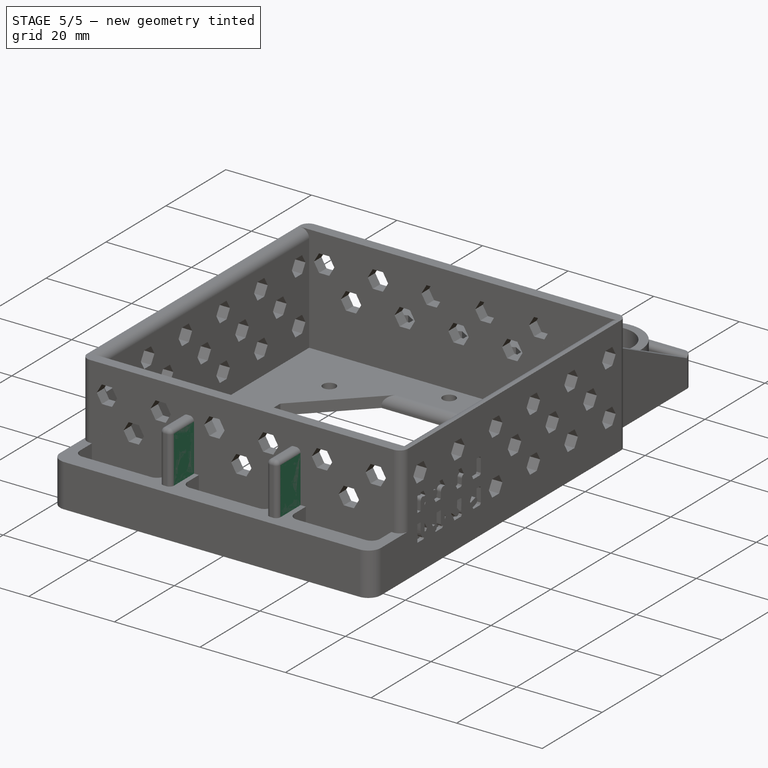
[diagram: stage 5 of 5 — iso view after this stage's code; geometry added in this stage tinted green]
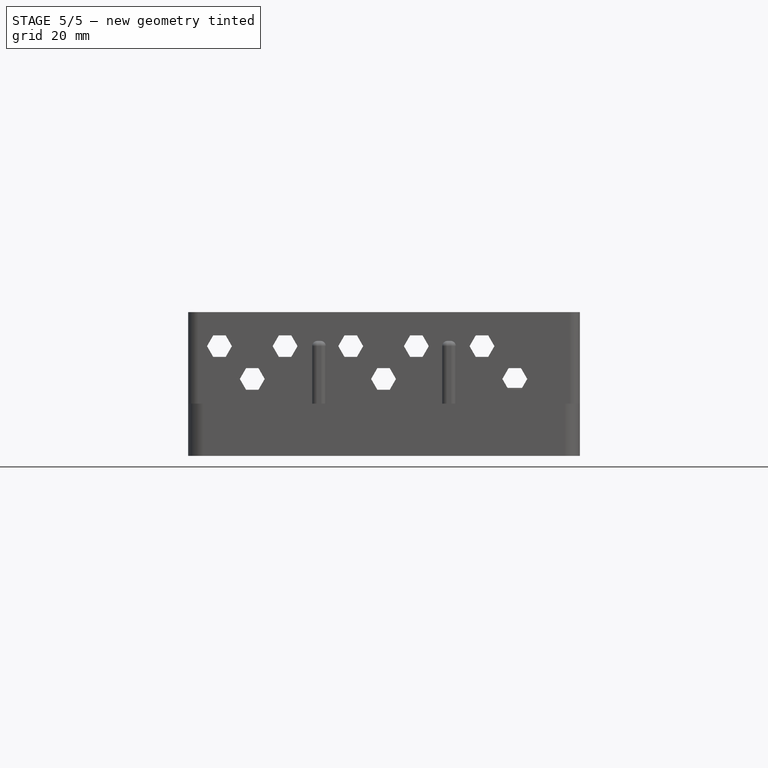
[diagram: stage 5 of 5 — front view after this stage's code; geometry added in this stage tinted green]
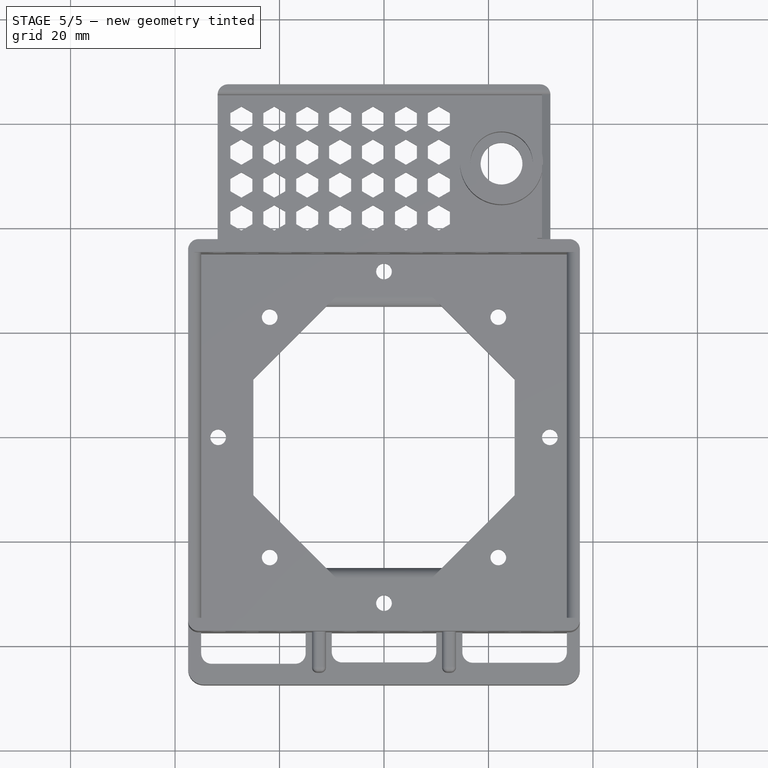
[diagram: stage 5 of 5 — top view after this stage's code; geometry added in this stage tinted green]
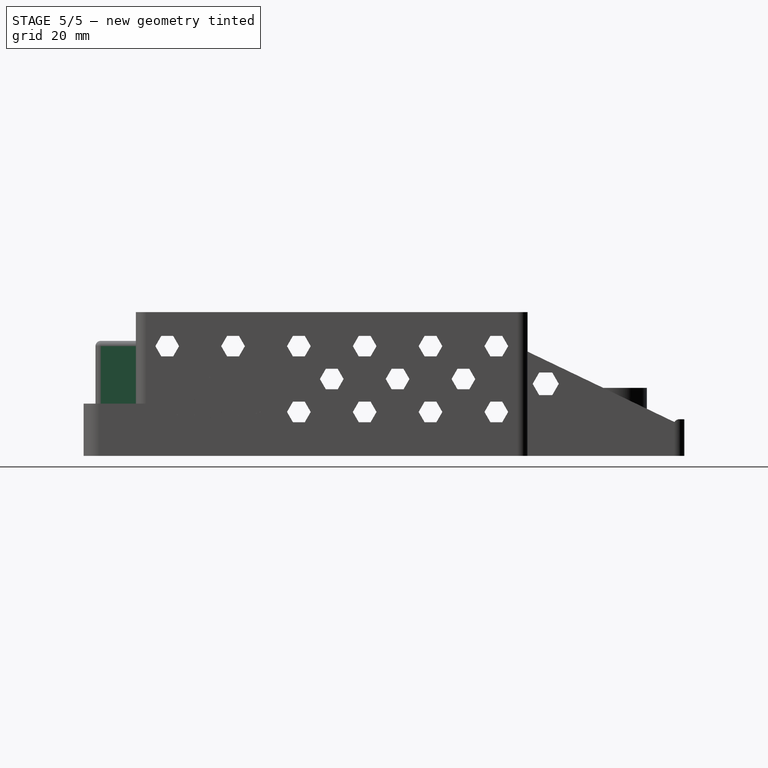
[diagram: stage 5 of 5 — right view after this stage's code; geometry added in this stage tinted green]
FEATURE [Sketcher::SketchObject] Sketch018
  Placement = pos=(0,0,3) rot=(0,0,1;0rad)
  Support = -> Fillet007 [Face881]
  sketch-geometry (4):
    g0: LineSegment StartX=-30.6997 StartY=64.6037 StartZ=0 EndX=-23.1 EndY=64.6037 EndZ=0
    g1: LineSegment StartX=-23.1 StartY=64.6037 StartZ=0 EndX=-23.1 EndY=57.8968 EndZ=0
    g2: LineSegment StartX=-23.1 StartY=57.8968 StartZ=0 EndX=-30.6997 EndY=57.8968 EndZ=0
    g3: LineSegment StartX=-30.6997 StartY=57.8968 StartZ=0 EndX=-30.6997 EndY=64.6037 EndZ=0
  constraints (8):
    c: Coincident(g0,g1)
    c: Coincident(g1,g2)
    c: Coincident(g2,g3)
    c: Coincident(g3,g0)
    c: Horizontal(g0)
    c: Horizontal(g2)
    c: Vertical(g1)
    c: Vertical(g3)
FEATURE [PartDesign::Pad] Pad005
  Length = 2
  Length2 = 100
  Reversed = true
  Sketch = -> Sketch018
  Type = 3
  UpToFace = -> Fillet007 [Face15]
FEATURE [Sketcher::SketchObject] Sketch019
  Placement = pos=(0,0,3) rot=(0,0,1;0rad)
  Support = -> Pad005 [Face887]
  sketch-geometry (7):
    g0: LineSegment StartX=-25.2 StartY=59.6819 StartZ=0 EndX=-25.1951 EndY=62.1096 EndZ=0
    g1: LineSegment StartX=-25.1951 StartY=62.1096 StartZ=0 EndX=-27.2951 EndY=63.3277 EndZ=0
    g2: LineSegment StartX=-27.2951 StartY=63.3277 StartZ=0 EndX=-29.4 EndY=62.1181 EndZ=0
    g3: LineSegment StartX=-29.4 StartY=62.1181 StartZ=0 EndX=-29.4049 EndY=59.6904 EndZ=0
    g4: LineSegment StartX=-29.4049 StartY=59.6904 StartZ=0 EndX=-27.3049 EndY=58.4723 EndZ=0
    g5: LineSegment StartX=-27.3049 StartY=58.4723 StartZ=0 EndX=-25.2 EndY=59.6819 EndZ=0
    g6: Circle [constr] CenterX=-27.3 CenterY=60.9 CenterZ=0 NormalX=0 NormalY=0 NormalZ=1 Radius=2.42773
  constraints (13):
    c: Coincident(g0,g1)
    c: Coincident(g1,g2)
    c: Coincident(g2,g3)
    c: Coincident(g3,g4)
    c: Coincident(g4,g5)
    c: Coincident(g5,g0)
    c: Equal(g0, g1-g5) x5
    c: PointOnObject(g0,g6)
    c: PointOnObject(g1,g6)
    c: PointOnObject(g2,g6)
    c: PointOnObject(g3,g6)
    c: PointOnObject(g4,g6)
    c: PointOnObject(g5,g6)
FEATURE [PartDesign::Pocket] Pocket011
  Length = 5
  Sketch = -> Sketch019
  Type = 1
FEATURE [Sketcher::SketchObject] Sketch020
  Placement = pos=(31.8532,0,0) rot=(0.57735,0.57735,0.57735;2.0944rad)
  Support = -> Pocket011 [Face32]
  sketch-geometry (14):
    g0: LineSegment StartX=42.2083 StartY=11.6157 StartZ=0 EndX=43.4583 EndY=13.7807 EndZ=0
    g1: LineSegment StartX=43.4583 StartY=13.7807 StartZ=0 EndX=42.2083 EndY=15.9458 EndZ=0
    g2: LineSegment StartX=42.2083 StartY=15.9458 StartZ=0 EndX=39.7083 EndY=15.9458 EndZ=0
    g3: LineSegment StartX=39.7083 StartY=15.9458 StartZ=0 EndX=38.4583 EndY=13.7807 EndZ=0
    g4: LineSegment StartX=38.4583 StartY=13.7807 StartZ=0 EndX=39.7083 EndY=11.6157 EndZ=0
    g5: LineSegment StartX=39.7083 StartY=11.6157 StartZ=0 EndX=42.2083 EndY=11.6157 EndZ=0
    g6: Circle [constr] CenterX=40.9583 CenterY=13.7807 CenterZ=0 NormalX=0 NormalY=0 NormalZ=1 Radius=2.5
    g7: LineSegment StartX=42.2546 StartY=5.17332 StartZ=0 EndX=43.5046 EndY=7.33838 EndZ=0
    g8: LineSegment StartX=43.5046 StartY=7.33838 StartZ=0 EndX=42.2546 EndY=9.50344 EndZ=0
    g9: LineSegment StartX=42.2546 StartY=9.50344 StartZ=0 EndX=39.7546 EndY=9.50344 EndZ=0
    g10: LineSegment StartX=39.7546 StartY=9.50344 StartZ=0 EndX=38.5046 EndY=7.33838 EndZ=0
    g11: LineSegment StartX=38.5046 StartY=7.33838 StartZ=0 EndX=39.7546 EndY=5.17332 EndZ=0
    g12: LineSegment StartX=39.7546 StartY=5.17332 StartZ=0 EndX=42.2546 EndY=5.17332 EndZ=0
    g13: Circle [constr] CenterX=41.0046 CenterY=7.33838 CenterZ=0 NormalX=0 NormalY=0 NormalZ=1 Radius=2.5
  constraints (29):
    c: Coincident(g0,g1)
    c: Coincident(g1,g2)
    c: Coincident(g2,g3)
    c: Coincident(g3,g4)
    c: Coincident(g4,g5)
    c: Coincident(g5,g0)
    c: Equal(g0, g1-g5) x5
    c: PointOnObject(g0,g6)
    c: PointOnObject(g1,g6)
    c: PointOnObject(g2,g6)
    c: PointOnObject(g3,g6)
    c: PointOnObject(g4,g6)
    c: PointOnObject(g5,g6)
    c: Radius(g6) = 2.5
    c: Parallel(g5,g-1)
    c: Coincident(g7,g8)
    c: Coincident(g8,g9)
    c: Coincident(g9,g10)
    c: Coincident(g10,g11)
    c: Coincident(g11,g12)
    c: Coincident(g12,g7)
    c: Equal(g7, g8-g12) x5
    c: PointOnObject(g7,g13)
    c: PointOnObject(g8,g13)
    c: PointOnObject(g9,g13)
    c: PointOnObject(g10,g13)
    c: PointOnObject(g11,g13)
    c: PointOnObject(g12,g13)
    c: Radius(g13) = 2.5
FEATURE [PartDesign::Pocket] Pocket012
  Length = 5
  Sketch = -> Sketch020
  Type = 2
FEATURE [Sketcher::SketchObject] Sketch021
  Placement = pos=(0,0,2.5) rot=(0,0,1;0rad)
  Support = -> Pocket012 [Face892]
  sketch-geometry (12):
    g0: LineSegment StartX=-26.3625 StartY=28.7405 StartZ=0 EndX=-26.3625 EndY=9.74053 EndZ=0
    g1: LineSegment StartX=-26.3625 StartY=9.74053 StartZ=0 EndX=-7.36251 EndY=28.7405 EndZ=0
    g2: LineSegment StartX=-7.36251 StartY=28.7405 StartZ=0 EndX=-26.3625 EndY=28.7405 EndZ=0
    g3: LineSegment StartX=-26.3625 StartY=-9.74053 StartZ=0 EndX=-7.36251 EndY=-28.7405 EndZ=0
    g4: LineSegment StartX=-7.36251 StartY=-28.7405 StartZ=0 EndX=-26.3625 EndY=-28.7405 EndZ=0
    g5: LineSegment StartX=-26.3625 StartY=-28.7405 StartZ=0 EndX=-26.3625 EndY=-9.74053 EndZ=0
    g6: LineSegment StartX=7.36251 StartY=28.7405 StartZ=0 EndX=26.3625 EndY=9.74053 EndZ=0
    g7: LineSegment StartX=26.3625 StartY=9.74053 StartZ=0 EndX=26.3625 EndY=28.7405 EndZ=0
    g8: LineSegment StartX=26.3625 StartY=28.7405 StartZ=0 EndX=7.36251 EndY=28.7405 EndZ=0
    g9: LineSegment StartX=7.36251 StartY=-28.7405 StartZ=0 EndX=26.3625 EndY=-9.74053 EndZ=0
    g10: LineSegment StartX=26.3625 StartY=-9.74053 StartZ=0 EndX=26.3625 EndY=-28.7405 EndZ=0
    g11: LineSegment StartX=26.3625 StartY=-28.7405 StartZ=0 EndX=7.36251 EndY=-28.7405 EndZ=0
  constraints (34):
    c: Vertical(g0)
    c: Coincident(g0,g1)
    c: Coincident(g1,g2)
    c: Coincident(g2,g0)
    c: Horizontal(g2)
    c: Coincident(g3,g4)
    c: Horizontal(g4)
    c: Coincident(g4,g5)
    c: Coincident(g5,g3)
    c: Vertical(g5)
    c: Coincident(g6,g7)
    c: Vertical(g7)
    c: Coincident(g7,g8)
    c: Coincident(g8,g6)
    c: Horizontal(g8)
    c: Coincident(g9,g10)
    c: Vertical(g10)
    c: Coincident(g10,g11)
    c: Coincident(g11,g9)
    c: Horizontal(g11)
    c: Equal(g5,g4)
    c: DistanceY(g5,g5) = 19
    c: Equal(g11,g10)
    c: Equal(g10,g4)
    c: Equal(g4,g7)
    c: Equal(g7,g8)
    c: Equal(g8,g2)
    c: Equal(g2,g0)
    c: Symmetric(g3,g9,g-2)
    c: Symmetric(g0,g3,g-1)
    c: Symmetric(g1,g6,g-2)
    c: Symmetric(g6,g9,g-1)
    c: Distance(g4,g7) = 78
    c: Distance(g0,g10) = 78
FEATURE [PartDesign::Pad] Pad006
  Length = 10
  Length2 = 100
  Reversed = true
  Sketch = -> Sketch021
  Type = 3
  UpToFace = -> Pocket012 [Face5]
FEATURE [Sketcher::SketchObject] Sketch022
  Placement = pos=(0,0,0) rot=(1,0,0;3.14159rad)
  Support = -> Pad006 [Face894]
  sketch-geometry (4):
    g0: Circle CenterX=-21.8807 CenterY=23.0065 CenterZ=0 NormalX=0 NormalY=0 NormalZ=1 Radius=1.5
    g1: Circle CenterX=21.8807 CenterY=23.0065 CenterZ=0 NormalX=0 NormalY=0 NormalZ=1 Radius=1.5
    g2: Circle CenterX=21.8807 CenterY=-23.0065 CenterZ=0 NormalX=0 NormalY=0 NormalZ=1 Radius=1.5
    g3: Circle CenterX=-21.8807 CenterY=-23.0065 CenterZ=0 NormalX=0 NormalY=0 NormalZ=1 Radius=1.5
  constraints (10):
    c: Radius(g0) = 1.5
    c: Radius(g1) = 1.5
    c: Radius(g3) = 1.5
    c: Radius(g2) = 1.5
    c: Distance(g3,g1) = 63.5
    c: Distance(g2,g0) = 63.5
    c: Symmetric(g2,g1,g-1)
    c: Symmetric(g0,g3,g-1)
    c: Symmetric(g3,g2,g-2)
    c: Symmetric(g0,g1,g-2)
FEATURE [PartDesign::Pocket] Pocket013
  Length = 5
  Sketch = -> Sketch022
  Type = 1
FEATURE [Sketcher::SketchObject] Sketch023
  Placement = pos=(0,-37.5,0) rot=(1,0,0;1.5708rad)
  Support = -> Pocket013 [Face150]
  sketch-geometry (8):
    g0: LineSegment StartX=-15.5366 StartY=23.7706 StartZ=0 EndX=-9.62501 EndY=23.7706 EndZ=0
    g1: LineSegment StartX=-9.62501 StartY=23.7706 StartZ=0 EndX=-9.62501 EndY=11.1029 EndZ=0
    g2: LineSegment StartX=-9.62501 StartY=11.1029 StartZ=0 EndX=-15.5366 EndY=11.1029 EndZ=0
    g3: LineSegment StartX=-15.5366 StartY=11.1029 StartZ=0 EndX=-15.5366 EndY=23.7706 EndZ=0
    g4: LineSegment StartX=9.38745 StartY=24.109 StartZ=0 EndX=15.5524 EndY=24.109 EndZ=0
    g5: LineSegment StartX=15.5524 StartY=24.109 StartZ=0 EndX=15.5524 EndY=11.2724 EndZ=0
    g6: LineSegment StartX=15.5524 StartY=11.2724 StartZ=0 EndX=9.38745 EndY=11.2724 EndZ=0
    g7: LineSegment StartX=9.38745 StartY=11.2724 StartZ=0 EndX=9.38745 EndY=24.109 EndZ=0
  constraints (16):
    c: Coincident(g0,g1)
    c: Coincident(g1,g2)
    c: Coincident(g2,g3)
    c: Coincident(g3,g0)
    c: Horizontal(g0)
    c: Horizontal(g2)
    c: Vertical(g1)
    c: Vertical(g3)
    c: Coincident(g4,g5)
    c: Coincident(g5,g6)
    c: Coincident(g6,g7)
    c: Coincident(g7,g4)
    c: Horizontal(g4)
    c: Horizontal(g6)
    c: Vertical(g5)
    c: Vertical(g7)
FEATURE [PartDesign::Pad] Pad007
  Length = 2.5
  Length2 = 100
  Reversed = true
  Sketch = -> Sketch023
  Type = 0
  UpToFace = -> Pocket013 [Face142]
FEATURE [Sketcher::SketchObject] Sketch024
  Placement = pos=(0,0,10) rot=(0,0,1;0rad)
  Support = -> Pad007 [Face377]
  sketch-geometry (8):
    g0: LineSegment StartX=-13.7597 StartY=-37.5 StartZ=0 EndX=-11.1379 EndY=-37.5 EndZ=0
    g1: LineSegment StartX=-11.1379 StartY=-37.5 StartZ=0 EndX=-11.1379 EndY=-45.2329 EndZ=0
    g2: LineSegment StartX=-11.1379 StartY=-45.2329 StartZ=0 EndX=-13.7597 EndY=-45.2329 EndZ=0
    g3: LineSegment StartX=-13.7597 StartY=-45.2329 StartZ=0 EndX=-13.7597 EndY=-37.5 EndZ=0
    g4: LineSegment StartX=11.1379 StartY=-37.5 StartZ=0 EndX=13.7597 EndY=-37.5 EndZ=0
    g5: LineSegment StartX=13.7597 StartY=-37.5 StartZ=0 EndX=13.7597 EndY=-45.2329 EndZ=0
    g6: LineSegment StartX=13.7597 StartY=-45.2329 StartZ=0 EndX=11.1379 EndY=-45.2329 EndZ=0
    g7: LineSegment StartX=11.1379 StartY=-45.2329 StartZ=0 EndX=11.1379 EndY=-37.5 EndZ=0
  constraints (25):
    c: Coincident(g0,g1)
    c: Coincident(g1,g2)
    c: Coincident(g2,g3)
    c: Coincident(g3,g0)
    c: Horizontal(g0)
    c: Horizontal(g2)
    c: Vertical(g1)
    c: Vertical(g3)
    c: Coincident(g4,g5)
    c: Coincident(g5,g6)
    c: Coincident(g6,g7)
    c: Coincident(g7,g4)
    c: Horizontal(g4)
    c: Horizontal(g6)
    c: Vertical(g5)
    c: Vertical(g7)
    c: Equal(g3,g1)
    c: Equal(g1,g7)
    c: Equal(g7,g5)
    c: Equal(g0,g2)
    c: Equal(g2,g4)
    c: Equal(g4,g6)
    c: DistanceY(g-1,g0) = -37.5
    c: DistanceY(g-1,g4) = -37.5
    c: Symmetric(g1,g6,g-2)
FEATURE [PartDesign::Pad] Pad008
  Length = 12
  Length2 = 100
  Sketch = -> Sketch024
  Type = 0
FEATURE [PartDesign::Fillet] Fillet008
  Base = -> Pad008 [Edge2683,Edge2687,Edge2688,Edge2692]
  Radius = 1
FEATURE [PartDesign::Fillet] Fillet009
  Base = -> Fillet008 [Edge41,Edge177,Edge401,Edge613]
  Radius = 1
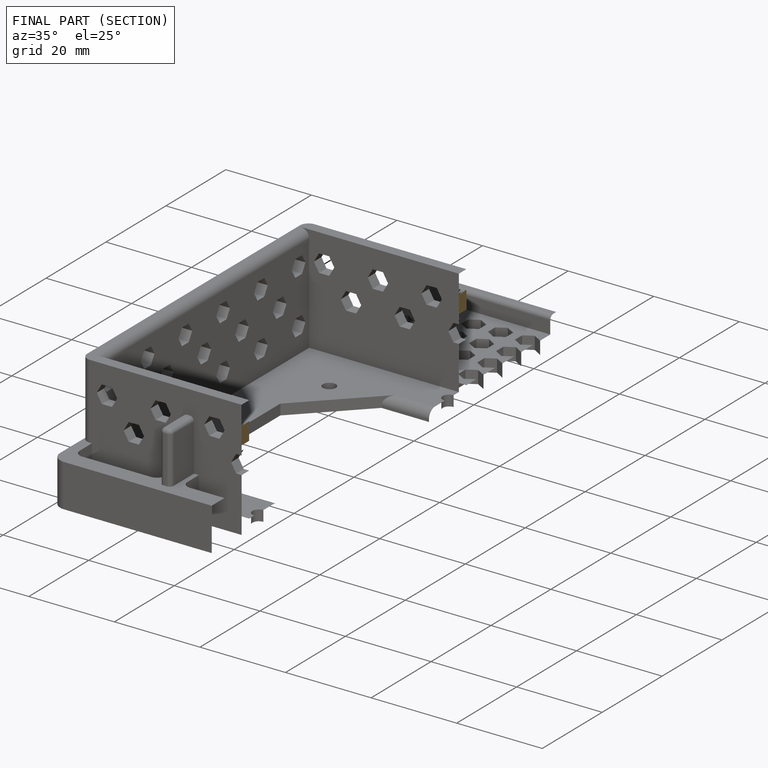
[diagram: finished part — half-section view (interior)]
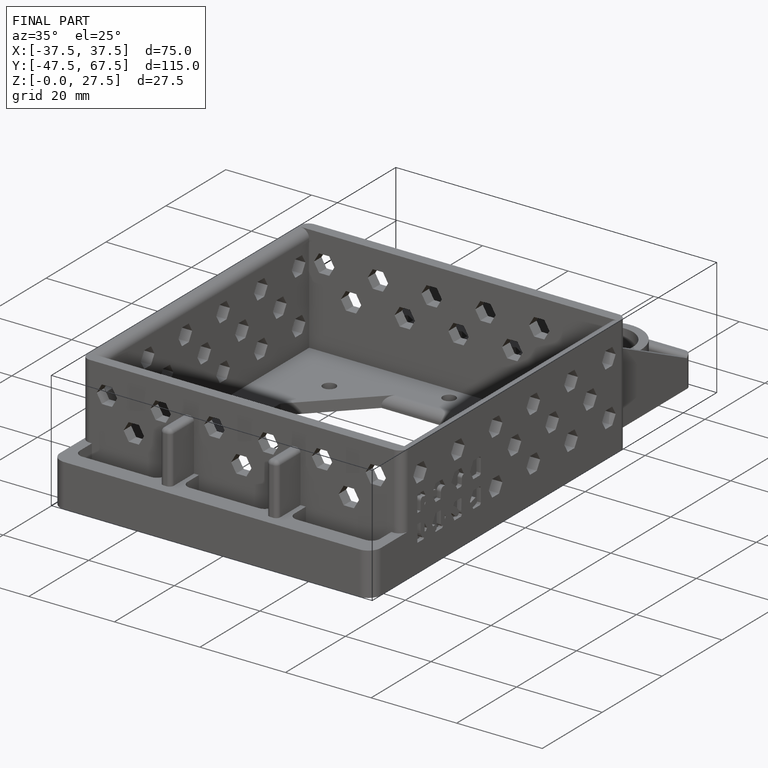
[diagram: finished part — iso view with bounding-box wireframe]
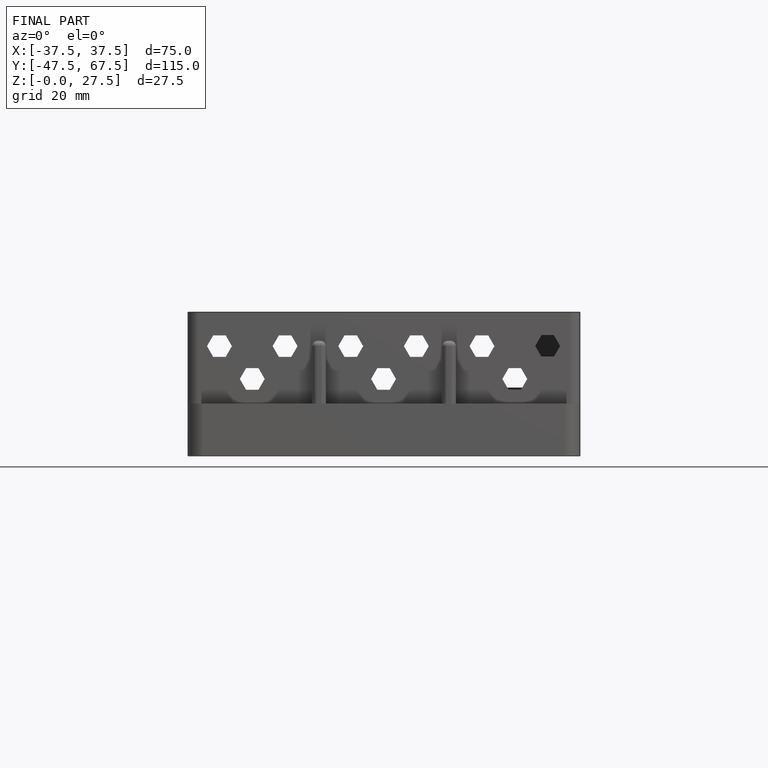
[diagram: finished part — front view with bounding-box wireframe]
